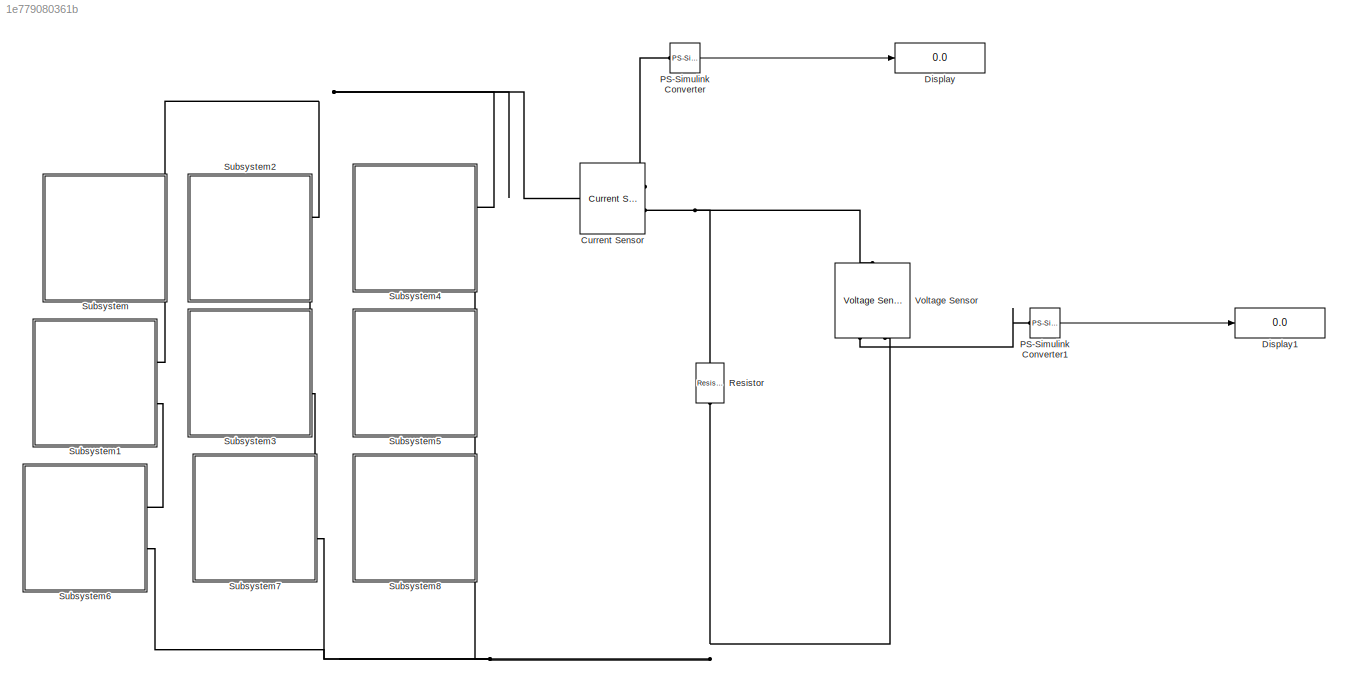
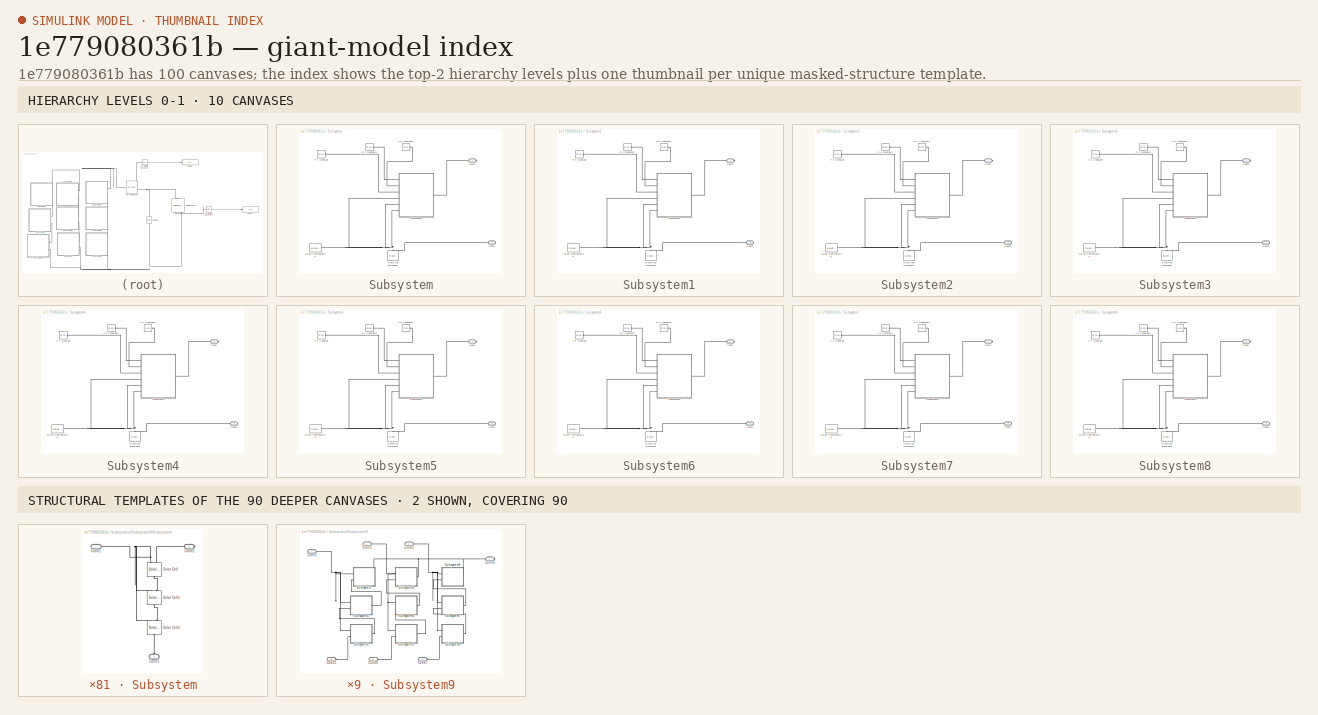
[diagram: thumbnail index - top-2 hierarchy levels (10 canvases) + 2 structural-template representatives of the remaining 90 canvases]
MODEL slx_1e779080361b
KIND model
CONFIG AbsTol = auto
CONFIG EnableMultiTasking = on
CONFIG FixedStep = auto
CONFIG MaxStep = auto
CONFIG MinStep = auto
CONFIG RelTol = 1e-3
CONFIG SampleTimeConstraint = Unconstrained
CONFIG Solver = ode45
CONFIG SolverName = ode45
CONFIG StartTime = 0.0
CONFIG StopTime = 10.0
BLOCK [Reference] Current Sensor  REF=fl_lib/Electrical/Electrical Sensors/Current Sensor
  Ports = [0, 0, 0, 0, 0, 1, 2]
  SourceBlock = fl_lib/Electrical/Electrical Sensors/Current Sensor
  SourceProductBaseCode = SS
  SourceProductName = Simscape
  SourceType = Current Sensor
BLOCK [Display] Display
  Decimation = 1
  Ports = [1]
BLOCK [Display] Display1
  Decimation = 1
  Ports = [1]
BLOCK [Reference] PS-Simulink Converter  REF=nesl_utility/PS-Simulink
Converter
  Ports = [0, 1, 0, 0, 0, 1]
  SourceBlock = nesl_utility/PS-Simulink\nConverter
  SourceProductBaseCode = SS
  SourceProductName = Simscape
  SourceType = PS-Simulink\nConverter
BLOCK [Reference] PS-Simulink Converter1  REF=nesl_utility/PS-Simulink
Converter
  Ports = [0, 1, 0, 0, 0, 1]
  SourceBlock = nesl_utility/PS-Simulink\nConverter
  SourceProductBaseCode = SS
  SourceProductName = Simscape
  SourceType = PS-Simulink\nConverter
BLOCK [Reference] Resistor  REF=fl_lib/Electrical/Electrical Elements/Resistor
  Ports = [0, 0, 0, 0, 0, 1, 1]
  SourceBlock = fl_lib/Electrical/Electrical Elements/Resistor
  SourceProductBaseCode = SS
  SourceProductName = Simscape
  SourceType = Resistor
BLOCK [SubSystem] Subsystem
  Ports = [0, 0, 0, 0, 0, 0, 2]
  RequestExecContextInheritance = off
BLOCK [PMIOPort] Subsystem/Conn1
  Side = Right
BLOCK [PMIOPort] Subsystem/Conn2
  Port = 2
  Side = Right
BLOCK [Reference] Subsystem/Electrical Reference  REF=fl_lib/Electrical/Electrical Elements/Electrical Reference
  Ports = [0, 0, 0, 0, 0, 1]
  SourceBlock = fl_lib/Electrical/Electrical Elements/Electrical Reference
  SourceProductBaseCode = SS
  SourceProductName = Simscape
  SourceType = Electrical Reference
BLOCK [Reference] Subsystem/PS Constant  REF=fl_lib/Physical Signals/Sources/PS Constant
  Ports = [0, 0, 0, 0, 0, 0, 1]
  SourceBlock = fl_lib/Physical Signals/Sources/PS Constant
  SourceProductBaseCode = SS
  SourceProductName = Simscape
  SourceType = PS Constant
BLOCK [Reference] Subsystem/PS Constant1  REF=fl_lib/Physical Signals/Sources/PS Constant
  Ports = [0, 0, 0, 0, 0, 0, 1]
  SourceBlock = fl_lib/Physical Signals/Sources/PS Constant
  SourceProductBaseCode = SS
  SourceProductName = Simscape
  SourceType = PS Constant
BLOCK [Reference] Subsystem/PS Constant2  REF=fl_lib/Physical Signals/Sources/PS Constant
  Ports = [0, 0, 0, 0, 0, 0, 1]
  SourceBlock = fl_lib/Physical Signals/Sources/PS Constant
  SourceProductBaseCode = SS
  SourceProductName = Simscape
  SourceType = PS Constant
BLOCK [Reference] Subsystem/Solver Configuration  REF=nesl_utility/Solver
Configuration
  Ports = [0, 0, 0, 0, 0, 0, 1]
  SourceBlock = nesl_utility/Solver\nConfiguration
  SourceProductBaseCode = SS
  SourceProductName = Simscape
  SourceType = Solver\nConfiguration
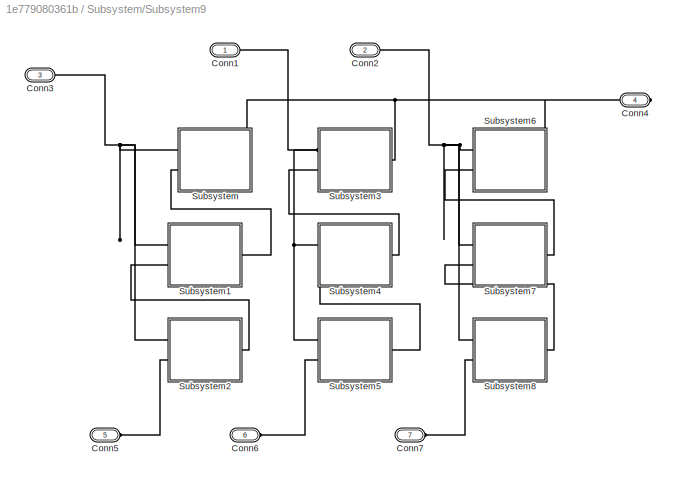
BLOCK [SubSystem] Subsystem/Subsystem9
  Ports = [0, 0, 0, 0, 0, 6, 1]
  RequestExecContextInheritance = off
BLOCK [PMIOPort] Subsystem/Subsystem9/Conn1
  Side = Left
BLOCK [PMIOPort] Subsystem/Subsystem9/Conn2
  Port = 2
  Side = Left
BLOCK [PMIOPort] Subsystem/Subsystem9/Conn3
  Port = 3
  Side = Left
BLOCK [PMIOPort] Subsystem/Subsystem9/Conn4
  Port = 4
  Side = Right
BLOCK [PMIOPort] Subsystem/Subsystem9/Conn5
  Port = 5
  Side = Left
BLOCK [PMIOPort] Subsystem/Subsystem9/Conn6
  Port = 6
  Side = Left
BLOCK [PMIOPort] Subsystem/Subsystem9/Conn7
  Port = 7
  Side = Left
BLOCK [SubSystem] Subsystem/Subsystem9/Subsystem
  Ports = [0, 0, 0, 0, 0, 2, 1]
  RequestExecContextInheritance = off
BLOCK [PMIOPort] Subsystem/Subsystem9/Subsystem/Conn1
  Side = Left
BLOCK [PMIOPort] Subsystem/Subsystem9/Subsystem/Conn2
  Port = 2
  Side = Right
BLOCK [PMIOPort] Subsystem/Subsystem9/Subsystem/Conn3
  Port = 3
  Side = Left
BLOCK [Reference] Subsystem/Subsystem9/Subsystem/Solar Cell  REF=ee_lib/Sources/Solar Cell
  Ports = [0, 0, 0, 0, 0, 2, 1]
  SourceBlock = ee_lib/Sources/Solar Cell
  SourceProductBaseCode = PS
  SourceProductName = Simscape Electrical
  SourceType = Solar Cell
BLOCK [Reference] Subsystem/Subsystem9/Subsystem/Solar Cell1  REF=ee_lib/Sources/Solar Cell
  Ports = [0, 0, 0, 0, 0, 2, 1]
  SourceBlock = ee_lib/Sources/Solar Cell
  SourceProductBaseCode = PS
  SourceProductName = Simscape Electrical
  SourceType = Solar Cell
BLOCK [Reference] Subsystem/Subsystem9/Subsystem/Solar Cell2  REF=ee_lib/Sources/Solar Cell
  Ports = [0, 0, 0, 0, 0, 2, 1]
  SourceBlock = ee_lib/Sources/Solar Cell
  SourceProductBaseCode = PS
  SourceProductName = Simscape Electrical
  SourceType = Solar Cell
BLOCK [SubSystem] Subsystem/Subsystem9/Subsystem1
  Ports = [0, 0, 0, 0, 0, 2, 1]
  RequestExecContextInheritance = off
BLOCK [PMIOPort] Subsystem/Subsystem9/Subsystem1/Conn1
  Side = Left
BLOCK [PMIOPort] Subsystem/Subsystem9/Subsystem1/Conn2
  Port = 2
  Side = Right
BLOCK [PMIOPort] Subsystem/Subsystem9/Subsystem1/Conn3
  Port = 3
  Side = Left
BLOCK [Reference] Subsystem/Subsystem9/Subsystem1/Solar Cell  REF=ee_lib/Sources/Solar Cell
  Ports = [0, 0, 0, 0, 0, 2, 1]
  SourceBlock = ee_lib/Sources/Solar Cell
  SourceProductBaseCode = PS
  SourceProductName = Simscape Electrical
  SourceType = Solar Cell
BLOCK [Reference] Subsystem/Subsystem9/Subsystem1/Solar Cell1  REF=ee_lib/Sources/Solar Cell
  Ports = [0, 0, 0, 0, 0, 2, 1]
  SourceBlock = ee_lib/Sources/Solar Cell
  SourceProductBaseCode = PS
  SourceProductName = Simscape Electrical
  SourceType = Solar Cell
BLOCK [Reference] Subsystem/Subsystem9/Subsystem1/Solar Cell2  REF=ee_lib/Sources/Solar Cell
  Ports = [0, 0, 0, 0, 0, 2, 1]
  SourceBlock = ee_lib/Sources/Solar Cell
  SourceProductBaseCode = PS
  SourceProductName = Simscape Electrical
  SourceType = Solar Cell
BLOCK [SubSystem] Subsystem/Subsystem9/Subsystem2
  Ports = [0, 0, 0, 0, 0, 2, 1]
  RequestExecContextInheritance = off
BLOCK [PMIOPort] Subsystem/Subsystem9/Subsystem2/Conn1
  Side = Left
BLOCK [PMIOPort] Subsystem/Subsystem9/Subsystem2/Conn2
  Port = 2
  Side = Right
BLOCK [PMIOPort] Subsystem/Subsystem9/Subsystem2/Conn3
  Port = 3
  Side = Left
BLOCK [Reference] Subsystem/Subsystem9/Subsystem2/Solar Cell  REF=ee_lib/Sources/Solar Cell
  Ports = [0, 0, 0, 0, 0, 2, 1]
  SourceBlock = ee_lib/Sources/Solar Cell
  SourceProductBaseCode = PS
  SourceProductName = Simscape Electrical
  SourceType = Solar Cell
BLOCK [Reference] Subsystem/Subsystem9/Subsystem2/Solar Cell1  REF=ee_lib/Sources/Solar Cell
  Ports = [0, 0, 0, 0, 0, 2, 1]
  SourceBlock = ee_lib/Sources/Solar Cell
  SourceProductBaseCode = PS
  SourceProductName = Simscape Electrical
  SourceType = Solar Cell
BLOCK [Reference] Subsystem/Subsystem9/Subsystem2/Solar Cell2  REF=ee_lib/Sources/Solar Cell
  Ports = [0, 0, 0, 0, 0, 2, 1]
  SourceBlock = ee_lib/Sources/Solar Cell
  SourceProductBaseCode = PS
  SourceProductName = Simscape Electrical
  SourceType = Solar Cell
BLOCK [SubSystem] Subsystem/Subsystem9/Subsystem3
  Ports = [0, 0, 0, 0, 0, 2, 1]
  RequestExecContextInheritance = off
BLOCK [PMIOPort] Subsystem/Subsystem9/Subsystem3/Conn1
  Side = Left
BLOCK [PMIOPort] Subsystem/Subsystem9/Subsystem3/Conn2
  Port = 2
  Side = Right
BLOCK [PMIOPort] Subsystem/Subsystem9/Subsystem3/Conn3
  Port = 3
  Side = Left
BLOCK [Reference] Subsystem/Subsystem9/Subsystem3/Solar Cell  REF=ee_lib/Sources/Solar Cell
  Ports = [0, 0, 0, 0, 0, 2, 1]
  SourceBlock = ee_lib/Sources/Solar Cell
  SourceProductBaseCode = PS
  SourceProductName = Simscape Electrical
  SourceType = Solar Cell
BLOCK [Reference] Subsystem/Subsystem9/Subsystem3/Solar Cell1  REF=ee_lib/Sources/Solar Cell
  Ports = [0, 0, 0, 0, 0, 2, 1]
  SourceBlock = ee_lib/Sources/Solar Cell
  SourceProductBaseCode = PS
  SourceProductName = Simscape Electrical
  SourceType = Solar Cell
BLOCK [Reference] Subsystem/Subsystem9/Subsystem3/Solar Cell2  REF=ee_lib/Sources/Solar Cell
  Ports = [0, 0, 0, 0, 0, 2, 1]
  SourceBlock = ee_lib/Sources/Solar Cell
  SourceProductBaseCode = PS
  SourceProductName = Simscape Electrical
  SourceType = Solar Cell
BLOCK [SubSystem] Subsystem/Subsystem9/Subsystem4
  Ports = [0, 0, 0, 0, 0, 2, 1]
  RequestExecContextInheritance = off
BLOCK [PMIOPort] Subsystem/Subsystem9/Subsystem4/Conn1
  Side = Left
BLOCK [PMIOPort] Subsystem/Subsystem9/Subsystem4/Conn2
  Port = 2
  Side = Right
BLOCK [PMIOPort] Subsystem/Subsystem9/Subsystem4/Conn3
  Port = 3
  Side = Left
BLOCK [Reference] Subsystem/Subsystem9/Subsystem4/Solar Cell  REF=ee_lib/Sources/Solar Cell
  Ports = [0, 0, 0, 0, 0, 2, 1]
  SourceBlock = ee_lib/Sources/Solar Cell
  SourceProductBaseCode = PS
  SourceProductName = Simscape Electrical
  SourceType = Solar Cell
BLOCK [Reference] Subsystem/Subsystem9/Subsystem4/Solar Cell1  REF=ee_lib/Sources/Solar Cell
  Ports = [0, 0, 0, 0, 0, 2, 1]
  SourceBlock = ee_lib/Sources/Solar Cell
  SourceProductBaseCode = PS
  SourceProductName = Simscape Electrical
  SourceType = Solar Cell
BLOCK [Reference] Subsystem/Subsystem9/Subsystem4/Solar Cell2  REF=ee_lib/Sources/Solar Cell
  Ports = [0, 0, 0, 0, 0, 2, 1]
  SourceBlock = ee_lib/Sources/Solar Cell
  SourceProductBaseCode = PS
  SourceProductName = Simscape Electrical
  SourceType = Solar Cell
BLOCK [SubSystem] Subsystem/Subsystem9/Subsystem5
  Ports = [0, 0, 0, 0, 0, 2, 1]
  RequestExecContextInheritance = off
BLOCK [PMIOPort] Subsystem/Subsystem9/Subsystem5/Conn1
  Side = Left
BLOCK [PMIOPort] Subsystem/Subsystem9/Subsystem5/Conn2
  Port = 2
  Side = Right
BLOCK [PMIOPort] Subsystem/Subsystem9/Subsystem5/Conn3
  Port = 3
  Side = Left
BLOCK [Reference] Subsystem/Subsystem9/Subsystem5/Solar Cell  REF=ee_lib/Sources/Solar Cell
  Ports = [0, 0, 0, 0, 0, 2, 1]
  SourceBlock = ee_lib/Sources/Solar Cell
  SourceProductBaseCode = PS
  SourceProductName = Simscape Electrical
  SourceType = Solar Cell
BLOCK [Reference] Subsystem/Subsystem9/Subsystem5/Solar Cell1  REF=ee_lib/Sources/Solar Cell
  Ports = [0, 0, 0, 0, 0, 2, 1]
  SourceBlock = ee_lib/Sources/Solar Cell
  SourceProductBaseCode = PS
  SourceProductName = Simscape Electrical
  SourceType = Solar Cell
BLOCK [Reference] Subsystem/Subsystem9/Subsystem5/Solar Cell2  REF=ee_lib/Sources/Solar Cell
  Ports = [0, 0, 0, 0, 0, 2, 1]
  SourceBlock = ee_lib/Sources/Solar Cell
  SourceProductBaseCode = PS
  SourceProductName = Simscape Electrical
  SourceType = Solar Cell
BLOCK [SubSystem] Subsystem/Subsystem9/Subsystem6
  Ports = [0, 0, 0, 0, 0, 2, 1]
  RequestExecContextInheritance = off
BLOCK [PMIOPort] Subsystem/Subsystem9/Subsystem6/Conn1
  Side = Left
BLOCK [PMIOPort] Subsystem/Subsystem9/Subsystem6/Conn2
  Port = 2
  Side = Right
BLOCK [PMIOPort] Subsystem/Subsystem9/Subsystem6/Conn3
  Port = 3
  Side = Left
BLOCK [Reference] Subsystem/Subsystem9/Subsystem6/Solar Cell  REF=ee_lib/Sources/Solar Cell
  Ports = [0, 0, 0, 0, 0, 2, 1]
  SourceBlock = ee_lib/Sources/Solar Cell
  SourceProductBaseCode = PS
  SourceProductName = Simscape Electrical
  SourceType = Solar Cell
BLOCK [Reference] Subsystem/Subsystem9/Subsystem6/Solar Cell1  REF=ee_lib/Sources/Solar Cell
  Ports = [0, 0, 0, 0, 0, 2, 1]
  SourceBlock = ee_lib/Sources/Solar Cell
  SourceProductBaseCode = PS
  SourceProductName = Simscape Electrical
  SourceType = Solar Cell
BLOCK [Reference] Subsystem/Subsystem9/Subsystem6/Solar Cell2  REF=ee_lib/Sources/Solar Cell
  Ports = [0, 0, 0, 0, 0, 2, 1]
  SourceBlock = ee_lib/Sources/Solar Cell
  SourceProductBaseCode = PS
  SourceProductName = Simscape Electrical
  SourceType = Solar Cell
BLOCK [SubSystem] Subsystem/Subsystem9/Subsystem7
  Ports = [0, 0, 0, 0, 0, 2, 1]
  RequestExecContextInheritance = off
BLOCK [PMIOPort] Subsystem/Subsystem9/Subsystem7/Conn1
  Side = Left
BLOCK [PMIOPort] Subsystem/Subsystem9/Subsystem7/Conn2
  Port = 2
  Side = Right
BLOCK [PMIOPort] Subsystem/Subsystem9/Subsystem7/Conn3
  Port = 3
  Side = Left
BLOCK [Reference] Subsystem/Subsystem9/Subsystem7/Solar Cell  REF=ee_lib/Sources/Solar Cell
  Ports = [0, 0, 0, 0, 0, 2, 1]
  SourceBlock = ee_lib/Sources/Solar Cell
  SourceProductBaseCode = PS
  SourceProductName = Simscape Electrical
  SourceType = Solar Cell
BLOCK [Reference] Subsystem/Subsystem9/Subsystem7/Solar Cell1  REF=ee_lib/Sources/Solar Cell
  Ports = [0, 0, 0, 0, 0, 2, 1]
  SourceBlock = ee_lib/Sources/Solar Cell
  SourceProductBaseCode = PS
  SourceProductName = Simscape Electrical
  SourceType = Solar Cell
BLOCK [Reference] Subsystem/Subsystem9/Subsystem7/Solar Cell2  REF=ee_lib/Sources/Solar Cell
  Ports = [0, 0, 0, 0, 0, 2, 1]
  SourceBlock = ee_lib/Sources/Solar Cell
  SourceProductBaseCode = PS
  SourceProductName = Simscape Electrical
  SourceType = Solar Cell
BLOCK [SubSystem] Subsystem/Subsystem9/Subsystem8
  Ports = [0, 0, 0, 0, 0, 2, 1]
  RequestExecContextInheritance = off
BLOCK [PMIOPort] Subsystem/Subsystem9/Subsystem8/Conn1
  Side = Left
BLOCK [PMIOPort] Subsystem/Subsystem9/Subsystem8/Conn2
  Port = 2
  Side = Right
BLOCK [PMIOPort] Subsystem/Subsystem9/Subsystem8/Conn3
  Port = 3
  Side = Left
BLOCK [Reference] Subsystem/Subsystem9/Subsystem8/Solar Cell  REF=ee_lib/Sources/Solar Cell
  Ports = [0, 0, 0, 0, 0, 2, 1]
  SourceBlock = ee_lib/Sources/Solar Cell
  SourceProductBaseCode = PS
  SourceProductName = Simscape Electrical
  SourceType = Solar Cell
BLOCK [Reference] Subsystem/Subsystem9/Subsystem8/Solar Cell1  REF=ee_lib/Sources/Solar Cell
  Ports = [0, 0, 0, 0, 0, 2, 1]
  SourceBlock = ee_lib/Sources/Solar Cell
  SourceProductBaseCode = PS
  SourceProductName = Simscape Electrical
  SourceType = Solar Cell
BLOCK [Reference] Subsystem/Subsystem9/Subsystem8/Solar Cell2  REF=ee_lib/Sources/Solar Cell
  Ports = [0, 0, 0, 0, 0, 2, 1]
  SourceBlock = ee_lib/Sources/Solar Cell
  SourceProductBaseCode = PS
  SourceProductName = Simscape Electrical
  SourceType = Solar Cell
BLOCK [SubSystem] Subsystem1
  Ports = [0, 0, 0, 0, 0, 0, 2]
  RequestExecContextInheritance = off
BLOCK [PMIOPort] Subsystem1/Conn1
  Side = Right
BLOCK [PMIOPort] Subsystem1/Conn2
  Port = 2
  Side = Right
BLOCK [Reference] Subsystem1/Electrical Reference  REF=fl_lib/Electrical/Electrical Elements/Electrical Reference
  Ports = [0, 0, 0, 0, 0, 1]
  SourceBlock = fl_lib/Electrical/Electrical Elements/Electrical Reference
  SourceProductBaseCode = SS
  SourceProductName = Simscape
  SourceType = Electrical Reference
BLOCK [Reference] Subsystem1/PS Constant  REF=fl_lib/Physical Signals/Sources/PS Constant
  Ports = [0, 0, 0, 0, 0, 0, 1]
  SourceBlock = fl_lib/Physical Signals/Sources/PS Constant
  SourceProductBaseCode = SS
  SourceProductName = Simscape
  SourceType = PS Constant
BLOCK [Reference] Subsystem1/PS Constant1  REF=fl_lib/Physical Signals/Sources/PS Constant
  Ports = [0, 0, 0, 0, 0, 0, 1]
  SourceBlock = fl_lib/Physical Signals/Sources/PS Constant
  SourceProductBaseCode = SS
  SourceProductName = Simscape
  SourceType = PS Constant
BLOCK [Reference] Subsystem1/PS Constant2  REF=fl_lib/Physical Signals/Sources/PS Constant
  Ports = [0, 0, 0, 0, 0, 0, 1]
  SourceBlock = fl_lib/Physical Signals/Sources/PS Constant
  SourceProductBaseCode = SS
  SourceProductName = Simscape
  SourceType = PS Constant
BLOCK [Reference] Subsystem1/Solver Configuration  REF=nesl_utility/Solver
Configuration
  Ports = [0, 0, 0, 0, 0, 0, 1]
  SourceBlock = nesl_utility/Solver\nConfiguration
  SourceProductBaseCode = SS
  SourceProductName = Simscape
  SourceType = Solver\nConfiguration
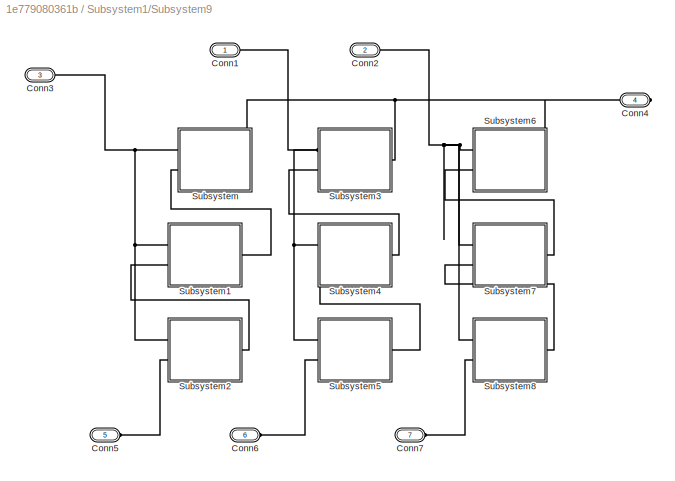
BLOCK [SubSystem] Subsystem1/Subsystem9
  Ports = [0, 0, 0, 0, 0, 6, 1]
  RequestExecContextInheritance = off
BLOCK [PMIOPort] Subsystem1/Subsystem9/Conn1
  Side = Left
BLOCK [PMIOPort] Subsystem1/Subsystem9/Conn2
  Port = 2
  Side = Left
BLOCK [PMIOPort] Subsystem1/Subsystem9/Conn3
  Port = 3
  Side = Left
BLOCK [PMIOPort] Subsystem1/Subsystem9/Conn4
  Port = 4
  Side = Right
BLOCK [PMIOPort] Subsystem1/Subsystem9/Conn5
  Port = 5
  Side = Left
BLOCK [PMIOPort] Subsystem1/Subsystem9/Conn6
  Port = 6
  Side = Left
BLOCK [PMIOPort] Subsystem1/Subsystem9/Conn7
  Port = 7
  Side = Left
BLOCK [SubSystem] Subsystem1/Subsystem9/Subsystem
  Ports = [0, 0, 0, 0, 0, 2, 1]
  RequestExecContextInheritance = off
BLOCK [PMIOPort] Subsystem1/Subsystem9/Subsystem/Conn1
  Side = Left
BLOCK [PMIOPort] Subsystem1/Subsystem9/Subsystem/Conn2
  Port = 2
  Side = Right
BLOCK [PMIOPort] Subsystem1/Subsystem9/Subsystem/Conn3
  Port = 3
  Side = Left
BLOCK [Reference] Subsystem1/Subsystem9/Subsystem/Solar Cell  REF=ee_lib/Sources/Solar Cell
  Ports = [0, 0, 0, 0, 0, 2, 1]
  SourceBlock = ee_lib/Sources/Solar Cell
  SourceProductBaseCode = PS
  SourceProductName = Simscape Electrical
  SourceType = Solar Cell
BLOCK [Reference] Subsystem1/Subsystem9/Subsystem/Solar Cell1  REF=ee_lib/Sources/Solar Cell
  Ports = [0, 0, 0, 0, 0, 2, 1]
  SourceBlock = ee_lib/Sources/Solar Cell
  SourceProductBaseCode = PS
  SourceProductName = Simscape Electrical
  SourceType = Solar Cell
BLOCK [Reference] Subsystem1/Subsystem9/Subsystem/Solar Cell2  REF=ee_lib/Sources/Solar Cell
  Ports = [0, 0, 0, 0, 0, 2, 1]
  SourceBlock = ee_lib/Sources/Solar Cell
  SourceProductBaseCode = PS
  SourceProductName = Simscape Electrical
  SourceType = Solar Cell
BLOCK [SubSystem] Subsystem1/Subsystem9/Subsystem1
  Ports = [0, 0, 0, 0, 0, 2, 1]
  RequestExecContextInheritance = off
BLOCK [PMIOPort] Subsystem1/Subsystem9/Subsystem1/Conn1
  Side = Left
BLOCK [PMIOPort] Subsystem1/Subsystem9/Subsystem1/Conn2
  Port = 2
  Side = Right
BLOCK [PMIOPort] Subsystem1/Subsystem9/Subsystem1/Conn3
  Port = 3
  Side = Left
BLOCK [Reference] Subsystem1/Subsystem9/Subsystem1/Solar Cell  REF=ee_lib/Sources/Solar Cell
  Ports = [0, 0, 0, 0, 0, 2, 1]
  SourceBlock = ee_lib/Sources/Solar Cell
  SourceProductBaseCode = PS
  SourceProductName = Simscape Electrical
  SourceType = Solar Cell
BLOCK [Reference] Subsystem1/Subsystem9/Subsystem1/Solar Cell1  REF=ee_lib/Sources/Solar Cell
  Ports = [0, 0, 0, 0, 0, 2, 1]
  SourceBlock = ee_lib/Sources/Solar Cell
  SourceProductBaseCode = PS
  SourceProductName = Simscape Electrical
  SourceType = Solar Cell
BLOCK [Reference] Subsystem1/Subsystem9/Subsystem1/Solar Cell2  REF=ee_lib/Sources/Solar Cell
  Ports = [0, 0, 0, 0, 0, 2, 1]
  SourceBlock = ee_lib/Sources/Solar Cell
  SourceProductBaseCode = PS
  SourceProductName = Simscape Electrical
  SourceType = Solar Cell
BLOCK [SubSystem] Subsystem1/Subsystem9/Subsystem2
  Ports = [0, 0, 0, 0, 0, 2, 1]
  RequestExecContextInheritance = off
BLOCK [PMIOPort] Subsystem1/Subsystem9/Subsystem2/Conn1
  Side = Left
BLOCK [PMIOPort] Subsystem1/Subsystem9/Subsystem2/Conn2
  Port = 2
  Side = Right
BLOCK [PMIOPort] Subsystem1/Subsystem9/Subsystem2/Conn3
  Port = 3
  Side = Left
BLOCK [Reference] Subsystem1/Subsystem9/Subsystem2/Solar Cell  REF=ee_lib/Sources/Solar Cell
  Ports = [0, 0, 0, 0, 0, 2, 1]
  SourceBlock = ee_lib/Sources/Solar Cell
  SourceProductBaseCode = PS
  SourceProductName = Simscape Electrical
  SourceType = Solar Cell
BLOCK [Reference] Subsystem1/Subsystem9/Subsystem2/Solar Cell1  REF=ee_lib/Sources/Solar Cell
  Ports = [0, 0, 0, 0, 0, 2, 1]
  SourceBlock = ee_lib/Sources/Solar Cell
  SourceProductBaseCode = PS
  SourceProductName = Simscape Electrical
  SourceType = Solar Cell
BLOCK [Reference] Subsystem1/Subsystem9/Subsystem2/Solar Cell2  REF=ee_lib/Sources/Solar Cell
  Ports = [0, 0, 0, 0, 0, 2, 1]
  SourceBlock = ee_lib/Sources/Solar Cell
  SourceProductBaseCode = PS
  SourceProductName = Simscape Electrical
  SourceType = Solar Cell
BLOCK [SubSystem] Subsystem1/Subsystem9/Subsystem3
  Ports = [0, 0, 0, 0, 0, 2, 1]
  RequestExecContextInheritance = off
BLOCK [PMIOPort] Subsystem1/Subsystem9/Subsystem3/Conn1
  Side = Left
BLOCK [PMIOPort] Subsystem1/Subsystem9/Subsystem3/Conn2
  Port = 2
  Side = Right
BLOCK [PMIOPort] Subsystem1/Subsystem9/Subsystem3/Conn3
  Port = 3
  Side = Left
BLOCK [Reference] Subsystem1/Subsystem9/Subsystem3/Solar Cell  REF=ee_lib/Sources/Solar Cell
  Ports = [0, 0, 0, 0, 0, 2, 1]
  SourceBlock = ee_lib/Sources/Solar Cell
  SourceProductBaseCode = PS
  SourceProductName = Simscape Electrical
  SourceType = Solar Cell
BLOCK [Reference] Subsystem1/Subsystem9/Subsystem3/Solar Cell1  REF=ee_lib/Sources/Solar Cell
  Ports = [0, 0, 0, 0, 0, 2, 1]
  SourceBlock = ee_lib/Sources/Solar Cell
  SourceProductBaseCode = PS
  SourceProductName = Simscape Electrical
  SourceType = Solar Cell
BLOCK [Reference] Subsystem1/Subsystem9/Subsystem3/Solar Cell2  REF=ee_lib/Sources/Solar Cell
  Ports = [0, 0, 0, 0, 0, 2, 1]
  SourceBlock = ee_lib/Sources/Solar Cell
  SourceProductBaseCode = PS
  SourceProductName = Simscape Electrical
  SourceType = Solar Cell
BLOCK [SubSystem] Subsystem1/Subsystem9/Subsystem4
  Ports = [0, 0, 0, 0, 0, 2, 1]
  RequestExecContextInheritance = off
BLOCK [PMIOPort] Subsystem1/Subsystem9/Subsystem4/Conn1
  Side = Left
BLOCK [PMIOPort] Subsystem1/Subsystem9/Subsystem4/Conn2
  Port = 2
  Side = Right
BLOCK [PMIOPort] Subsystem1/Subsystem9/Subsystem4/Conn3
  Port = 3
  Side = Left
BLOCK [Reference] Subsystem1/Subsystem9/Subsystem4/Solar Cell  REF=ee_lib/Sources/Solar Cell
  Ports = [0, 0, 0, 0, 0, 2, 1]
  SourceBlock = ee_lib/Sources/Solar Cell
  SourceProductBaseCode = PS
  SourceProductName = Simscape Electrical
  SourceType = Solar Cell
BLOCK [Reference] Subsystem1/Subsystem9/Subsystem4/Solar Cell1  REF=ee_lib/Sources/Solar Cell
  Ports = [0, 0, 0, 0, 0, 2, 1]
  SourceBlock = ee_lib/Sources/Solar Cell
  SourceProductBaseCode = PS
  SourceProductName = Simscape Electrical
  SourceType = Solar Cell
BLOCK [Reference] Subsystem1/Subsystem9/Subsystem4/Solar Cell2  REF=ee_lib/Sources/Solar Cell
  Ports = [0, 0, 0, 0, 0, 2, 1]
  SourceBlock = ee_lib/Sources/Solar Cell
  SourceProductBaseCode = PS
  SourceProductName = Simscape Electrical
  SourceType = Solar Cell
BLOCK [SubSystem] Subsystem1/Subsystem9/Subsystem5
  Ports = [0, 0, 0, 0, 0, 2, 1]
  RequestExecContextInheritance = off
BLOCK [PMIOPort] Subsystem1/Subsystem9/Subsystem5/Conn1
  Side = Left
BLOCK [PMIOPort] Subsystem1/Subsystem9/Subsystem5/Conn2
  Port = 2
  Side = Right
BLOCK [PMIOPort] Subsystem1/Subsystem9/Subsystem5/Conn3
  Port = 3
  Side = Left
BLOCK [Reference] Subsystem1/Subsystem9/Subsystem5/Solar Cell  REF=ee_lib/Sources/Solar Cell
  Ports = [0, 0, 0, 0, 0, 2, 1]
  SourceBlock = ee_lib/Sources/Solar Cell
  SourceProductBaseCode = PS
  SourceProductName = Simscape Electrical
  SourceType = Solar Cell
BLOCK [Reference] Subsystem1/Subsystem9/Subsystem5/Solar Cell1  REF=ee_lib/Sources/Solar Cell
  Ports = [0, 0, 0, 0, 0, 2, 1]
  SourceBlock = ee_lib/Sources/Solar Cell
  SourceProductBaseCode = PS
  SourceProductName = Simscape Electrical
  SourceType = Solar Cell
BLOCK [Reference] Subsystem1/Subsystem9/Subsystem5/Solar Cell2  REF=ee_lib/Sources/Solar Cell
  Ports = [0, 0, 0, 0, 0, 2, 1]
  SourceBlock = ee_lib/Sources/Solar Cell
  SourceProductBaseCode = PS
  SourceProductName = Simscape Electrical
  SourceType = Solar Cell
BLOCK [SubSystem] Subsystem1/Subsystem9/Subsystem6
  Ports = [0, 0, 0, 0, 0, 2, 1]
  RequestExecContextInheritance = off
BLOCK [PMIOPort] Subsystem1/Subsystem9/Subsystem6/Conn1
  Side = Left
BLOCK [PMIOPort] Subsystem1/Subsystem9/Subsystem6/Conn2
  Port = 2
  Side = Right
BLOCK [PMIOPort] Subsystem1/Subsystem9/Subsystem6/Conn3
  Port = 3
  Side = Left
BLOCK [Reference] Subsystem1/Subsystem9/Subsystem6/Solar Cell  REF=ee_lib/Sources/Solar Cell
  Ports = [0, 0, 0, 0, 0, 2, 1]
  SourceBlock = ee_lib/Sources/Solar Cell
  SourceProductBaseCode = PS
  SourceProductName = Simscape Electrical
  SourceType = Solar Cell
BLOCK [Reference] Subsystem1/Subsystem9/Subsystem6/Solar Cell1  REF=ee_lib/Sources/Solar Cell
  Ports = [0, 0, 0, 0, 0, 2, 1]
  SourceBlock = ee_lib/Sources/Solar Cell
  SourceProductBaseCode = PS
  SourceProductName = Simscape Electrical
  SourceType = Solar Cell
BLOCK [Reference] Subsystem1/Subsystem9/Subsystem6/Solar Cell2  REF=ee_lib/Sources/Solar Cell
  Ports = [0, 0, 0, 0, 0, 2, 1]
  SourceBlock = ee_lib/Sources/Solar Cell
  SourceProductBaseCode = PS
  SourceProductName = Simscape Electrical
  SourceType = Solar Cell
BLOCK [SubSystem] Subsystem1/Subsystem9/Subsystem7
  Ports = [0, 0, 0, 0, 0, 2, 1]
  RequestExecContextInheritance = off
BLOCK [PMIOPort] Subsystem1/Subsystem9/Subsystem7/Conn1
  Side = Left
BLOCK [PMIOPort] Subsystem1/Subsystem9/Subsystem7/Conn2
  Port = 2
  Side = Right
BLOCK [PMIOPort] Subsystem1/Subsystem9/Subsystem7/Conn3
  Port = 3
  Side = Left
BLOCK [Reference] Subsystem1/Subsystem9/Subsystem7/Solar Cell  REF=ee_lib/Sources/Solar Cell
  Ports = [0, 0, 0, 0, 0, 2, 1]
  SourceBlock = ee_lib/Sources/Solar Cell
  SourceProductBaseCode = PS
  SourceProductName = Simscape Electrical
  SourceType = Solar Cell
BLOCK [Reference] Subsystem1/Subsystem9/Subsystem7/Solar Cell1  REF=ee_lib/Sources/Solar Cell
  Ports = [0, 0, 0, 0, 0, 2, 1]
  SourceBlock = ee_lib/Sources/Solar Cell
  SourceProductBaseCode = PS
  SourceProductName = Simscape Electrical
  SourceType = Solar Cell
BLOCK [Reference] Subsystem1/Subsystem9/Subsystem7/Solar Cell2  REF=ee_lib/Sources/Solar Cell
  Ports = [0, 0, 0, 0, 0, 2, 1]
  SourceBlock = ee_lib/Sources/Solar Cell
  SourceProductBaseCode = PS
  SourceProductName = Simscape Electrical
  SourceType = Solar Cell
BLOCK [SubSystem] Subsystem1/Subsystem9/Subsystem8
  Ports = [0, 0, 0, 0, 0, 2, 1]
  RequestExecContextInheritance = off
BLOCK [PMIOPort] Subsystem1/Subsystem9/Subsystem8/Conn1
  Side = Left
BLOCK [PMIOPort] Subsystem1/Subsystem9/Subsystem8/Conn2
  Port = 2
  Side = Right
BLOCK [PMIOPort] Subsystem1/Subsystem9/Subsystem8/Conn3
  Port = 3
  Side = Left
BLOCK [Reference] Subsystem1/Subsystem9/Subsystem8/Solar Cell  REF=ee_lib/Sources/Solar Cell
  Ports = [0, 0, 0, 0, 0, 2, 1]
  SourceBlock = ee_lib/Sources/Solar Cell
  SourceProductBaseCode = PS
  SourceProductName = Simscape Electrical
  SourceType = Solar Cell
BLOCK [Reference] Subsystem1/Subsystem9/Subsystem8/Solar Cell1  REF=ee_lib/Sources/Solar Cell
  Ports = [0, 0, 0, 0, 0, 2, 1]
  SourceBlock = ee_lib/Sources/Solar Cell
  SourceProductBaseCode = PS
  SourceProductName = Simscape Electrical
  SourceType = Solar Cell
BLOCK [Reference] Subsystem1/Subsystem9/Subsystem8/Solar Cell2  REF=ee_lib/Sources/Solar Cell
  Ports = [0, 0, 0, 0, 0, 2, 1]
  SourceBlock = ee_lib/Sources/Solar Cell
  SourceProductBaseCode = PS
  SourceProductName = Simscape Electrical
  SourceType = Solar Cell
BLOCK [SubSystem] Subsystem2
  Ports = [0, 0, 0, 0, 0, 0, 2]
  RequestExecContextInheritance = off
BLOCK [PMIOPort] Subsystem2/Conn1
  Side = Right
BLOCK [PMIOPort] Subsystem2/Conn2
  Port = 2
  Side = Right
BLOCK [Reference] Subsystem2/Electrical Reference  REF=fl_lib/Electrical/Electrical Elements/Electrical Reference
  Ports = [0, 0, 0, 0, 0, 1]
  SourceBlock = fl_lib/Electrical/Electrical Elements/Electrical Reference
  SourceProductBaseCode = SS
  SourceProductName = Simscape
  SourceType = Electrical Reference
BLOCK [Reference] Subsystem2/PS Constant  REF=fl_lib/Physical Signals/Sources/PS Constant
  Ports = [0, 0, 0, 0, 0, 0, 1]
  SourceBlock = fl_lib/Physical Signals/Sources/PS Constant
  SourceProductBaseCode = SS
  SourceProductName = Simscape
  SourceType = PS Constant
BLOCK [Reference] Subsystem2/PS Constant1  REF=fl_lib/Physical Signals/Sources/PS Constant
  Ports = [0, 0, 0, 0, 0, 0, 1]
  SourceBlock = fl_lib/Physical Signals/Sources/PS Constant
  SourceProductBaseCode = SS
  SourceProductName = Simscape
  SourceType = PS Constant
BLOCK [Reference] Subsystem2/PS Constant2  REF=fl_lib/Physical Signals/Sources/PS Constant
  Ports = [0, 0, 0, 0, 0, 0, 1]
  SourceBlock = fl_lib/Physical Signals/Sources/PS Constant
  SourceProductBaseCode = SS
  SourceProductName = Simscape
  SourceType = PS Constant
BLOCK [Reference] Subsystem2/Solver Configuration  REF=nesl_utility/Solver
Configuration
  Ports = [0, 0, 0, 0, 0, 0, 1]
  SourceBlock = nesl_utility/Solver\nConfiguration
  SourceProductBaseCode = SS
  SourceProductName = Simscape
  SourceType = Solver\nConfiguration
BLOCK [SubSystem] Subsystem2/Subsystem9
  Ports = [0, 0, 0, 0, 0, 6, 1]
  RequestExecContextInheritance = off
BLOCK [PMIOPort] Subsystem2/Subsystem9/Conn1
  Side = Left
BLOCK [PMIOPort] Subsystem2/Subsystem9/Conn2
  Port = 2
  Side = Left
BLOCK [PMIOPort] Subsystem2/Subsystem9/Conn3
  Port = 3
  Side = Left
BLOCK [PMIOPort] Subsystem2/Subsystem9/Conn4
  Port = 4
  Side = Right
BLOCK [PMIOPort] Subsystem2/Subsystem9/Conn5
  Port = 5
  Side = Left
BLOCK [PMIOPort] Subsystem2/Subsystem9/Conn6
  Port = 6
  Side = Left
BLOCK [PMIOPort] Subsystem2/Subsystem9/Conn7
  Port = 7
  Side = Left
BLOCK [SubSystem] Subsystem2/Subsystem9/Subsystem
  Ports = [0, 0, 0, 0, 0, 2, 1]
  RequestExecContextInheritance = off
BLOCK [PMIOPort] Subsystem2/Subsystem9/Subsystem/Conn1
  Side = Left
BLOCK [PMIOPort] Subsystem2/Subsystem9/Subsystem/Conn2
  Port = 2
  Side = Right
BLOCK [PMIOPort] Subsystem2/Subsystem9/Subsystem/Conn3
  Port = 3
  Side = Left
BLOCK [Reference] Subsystem2/Subsystem9/Subsystem/Solar Cell  REF=ee_lib/Sources/Solar Cell
  Ports = [0, 0, 0, 0, 0, 2, 1]
  SourceBlock = ee_lib/Sources/Solar Cell
  SourceProductBaseCode = PS
  SourceProductName = Simscape Electrical
  SourceType = Solar Cell
BLOCK [Reference] Subsystem2/Subsystem9/Subsystem/Solar Cell1  REF=ee_lib/Sources/Solar Cell
  Ports = [0, 0, 0, 0, 0, 2, 1]
  SourceBlock = ee_lib/Sources/Solar Cell
  SourceProductBaseCode = PS
  SourceProductName = Simscape Electrical
  SourceType = Solar Cell
BLOCK [Reference] Subsystem2/Subsystem9/Subsystem/Solar Cell2  REF=ee_lib/Sources/Solar Cell
  Ports = [0, 0, 0, 0, 0, 2, 1]
  SourceBlock = ee_lib/Sources/Solar Cell
  SourceProductBaseCode = PS
  SourceProductName = Simscape Electrical
  SourceType = Solar Cell
BLOCK [SubSystem] Subsystem2/Subsystem9/Subsystem1
  Ports = [0, 0, 0, 0, 0, 2, 1]
  RequestExecContextInheritance = off
BLOCK [PMIOPort] Subsystem2/Subsystem9/Subsystem1/Conn1
  Side = Left
BLOCK [PMIOPort] Subsystem2/Subsystem9/Subsystem1/Conn2
  Port = 2
  Side = Right
BLOCK [PMIOPort] Subsystem2/Subsystem9/Subsystem1/Conn3
  Port = 3
  Side = Left
BLOCK [Reference] Subsystem2/Subsystem9/Subsystem1/Solar Cell  REF=ee_lib/Sources/Solar Cell
  Ports = [0, 0, 0, 0, 0, 2, 1]
  SourceBlock = ee_lib/Sources/Solar Cell
  SourceProductBaseCode = PS
  SourceProductName = Simscape Electrical
  SourceType = Solar Cell
BLOCK [Reference] Subsystem2/Subsystem9/Subsystem1/Solar Cell1  REF=ee_lib/Sources/Solar Cell
  Ports = [0, 0, 0, 0, 0, 2, 1]
  SourceBlock = ee_lib/Sources/Solar Cell
  SourceProductBaseCode = PS
  SourceProductName = Simscape Electrical
  SourceType = Solar Cell
BLOCK [Reference] Subsystem2/Subsystem9/Subsystem1/Solar Cell2  REF=ee_lib/Sources/Solar Cell
  Ports = [0, 0, 0, 0, 0, 2, 1]
  SourceBlock = ee_lib/Sources/Solar Cell
  SourceProductBaseCode = PS
  SourceProductName = Simscape Electrical
  SourceType = Solar Cell
BLOCK [SubSystem] Subsystem2/Subsystem9/Subsystem2
  Ports = [0, 0, 0, 0, 0, 2, 1]
  RequestExecContextInheritance = off
BLOCK [PMIOPort] Subsystem2/Subsystem9/Subsystem2/Conn1
  Side = Left
BLOCK [PMIOPort] Subsystem2/Subsystem9/Subsystem2/Conn2
  Port = 2
  Side = Right
BLOCK [PMIOPort] Subsystem2/Subsystem9/Subsystem2/Conn3
  Port = 3
  Side = Left
BLOCK [Reference] Subsystem2/Subsystem9/Subsystem2/Solar Cell  REF=ee_lib/Sources/Solar Cell
  Ports = [0, 0, 0, 0, 0, 2, 1]
  SourceBlock = ee_lib/Sources/Solar Cell
  SourceProductBaseCode = PS
  SourceProductName = Simscape Electrical
  SourceType = Solar Cell
BLOCK [Reference] Subsystem2/Subsystem9/Subsystem2/Solar Cell1  REF=ee_lib/Sources/Solar Cell
  Ports = [0, 0, 0, 0, 0, 2, 1]
  SourceBlock = ee_lib/Sources/Solar Cell
  SourceProductBaseCode = PS
  SourceProductName = Simscape Electrical
  SourceType = Solar Cell
BLOCK [Reference] Subsystem2/Subsystem9/Subsystem2/Solar Cell2  REF=ee_lib/Sources/Solar Cell
  Ports = [0, 0, 0, 0, 0, 2, 1]
  SourceBlock = ee_lib/Sources/Solar Cell
  SourceProductBaseCode = PS
  SourceProductName = Simscape Electrical
  SourceType = Solar Cell
BLOCK [SubSystem] Subsystem2/Subsystem9/Subsystem3
  Ports = [0, 0, 0, 0, 0, 2, 1]
  RequestExecContextInheritance = off
BLOCK [PMIOPort] Subsystem2/Subsystem9/Subsystem3/Conn1
  Side = Left
BLOCK [PMIOPort] Subsystem2/Subsystem9/Subsystem3/Conn2
  Port = 2
  Side = Right
BLOCK [PMIOPort] Subsystem2/Subsystem9/Subsystem3/Conn3
  Port = 3
  Side = Left
BLOCK [Reference] Subsystem2/Subsystem9/Subsystem3/Solar Cell  REF=ee_lib/Sources/Solar Cell
  Ports = [0, 0, 0, 0, 0, 2, 1]
  SourceBlock = ee_lib/Sources/Solar Cell
  SourceProductBaseCode = PS
  SourceProductName = Simscape Electrical
  SourceType = Solar Cell
BLOCK [Reference] Subsystem2/Subsystem9/Subsystem3/Solar Cell1  REF=ee_lib/Sources/Solar Cell
  Ports = [0, 0, 0, 0, 0, 2, 1]
  SourceBlock = ee_lib/Sources/Solar Cell
  SourceProductBaseCode = PS
  SourceProductName = Simscape Electrical
  SourceType = Solar Cell
BLOCK [Reference] Subsystem2/Subsystem9/Subsystem3/Solar Cell2  REF=ee_lib/Sources/Solar Cell
  Ports = [0, 0, 0, 0, 0, 2, 1]
  SourceBlock = ee_lib/Sources/Solar Cell
  SourceProductBaseCode = PS
  SourceProductName = Simscape Electrical
  SourceType = Solar Cell
BLOCK [SubSystem] Subsystem2/Subsystem9/Subsystem4
  Ports = [0, 0, 0, 0, 0, 2, 1]
  RequestExecContextInheritance = off
BLOCK [PMIOPort] Subsystem2/Subsystem9/Subsystem4/Conn1
  Side = Left
BLOCK [PMIOPort] Subsystem2/Subsystem9/Subsystem4/Conn2
  Port = 2
  Side = Right
BLOCK [PMIOPort] Subsystem2/Subsystem9/Subsystem4/Conn3
  Port = 3
  Side = Left
BLOCK [Reference] Subsystem2/Subsystem9/Subsystem4/Solar Cell  REF=ee_lib/Sources/Solar Cell
  Ports = [0, 0, 0, 0, 0, 2, 1]
  SourceBlock = ee_lib/Sources/Solar Cell
  SourceProductBaseCode = PS
  SourceProductName = Simscape Electrical
  SourceType = Solar Cell
BLOCK [Reference] Subsystem2/Subsystem9/Subsystem4/Solar Cell1  REF=ee_lib/Sources/Solar Cell
  Ports = [0, 0, 0, 0, 0, 2, 1]
  SourceBlock = ee_lib/Sources/Solar Cell
  SourceProductBaseCode = PS
  SourceProductName = Simscape Electrical
  SourceType = Solar Cell
BLOCK [Reference] Subsystem2/Subsystem9/Subsystem4/Solar Cell2  REF=ee_lib/Sources/Solar Cell
  Ports = [0, 0, 0, 0, 0, 2, 1]
  SourceBlock = ee_lib/Sources/Solar Cell
  SourceProductBaseCode = PS
  SourceProductName = Simscape Electrical
  SourceType = Solar Cell
BLOCK [SubSystem] Subsystem2/Subsystem9/Subsystem5
  Ports = [0, 0, 0, 0, 0, 2, 1]
  RequestExecContextInheritance = off
BLOCK [PMIOPort] Subsystem2/Subsystem9/Subsystem5/Conn1
  Side = Left
BLOCK [PMIOPort] Subsystem2/Subsystem9/Subsystem5/Conn2
  Port = 2
  Side = Right
BLOCK [PMIOPort] Subsystem2/Subsystem9/Subsystem5/Conn3
  Port = 3
  Side = Left
BLOCK [Reference] Subsystem2/Subsystem9/Subsystem5/Solar Cell  REF=ee_lib/Sources/Solar Cell
  Ports = [0, 0, 0, 0, 0, 2, 1]
  SourceBlock = ee_lib/Sources/Solar Cell
  SourceProductBaseCode = PS
  SourceProductName = Simscape Electrical
  SourceType = Solar Cell
BLOCK [Reference] Subsystem2/Subsystem9/Subsystem5/Solar Cell1  REF=ee_lib/Sources/Solar Cell
  Ports = [0, 0, 0, 0, 0, 2, 1]
  SourceBlock = ee_lib/Sources/Solar Cell
  SourceProductBaseCode = PS
  SourceProductName = Simscape Electrical
  SourceType = Solar Cell
BLOCK [Reference] Subsystem2/Subsystem9/Subsystem5/Solar Cell2  REF=ee_lib/Sources/Solar Cell
  Ports = [0, 0, 0, 0, 0, 2, 1]
  SourceBlock = ee_lib/Sources/Solar Cell
  SourceProductBaseCode = PS
  SourceProductName = Simscape Electrical
  SourceType = Solar Cell
BLOCK [SubSystem] Subsystem2/Subsystem9/Subsystem6
  Ports = [0, 0, 0, 0, 0, 2, 1]
  RequestExecContextInheritance = off
BLOCK [PMIOPort] Subsystem2/Subsystem9/Subsystem6/Conn1
  Side = Left
BLOCK [PMIOPort] Subsystem2/Subsystem9/Subsystem6/Conn2
  Port = 2
  Side = Right
BLOCK [PMIOPort] Subsystem2/Subsystem9/Subsystem6/Conn3
  Port = 3
  Side = Left
BLOCK [Reference] Subsystem2/Subsystem9/Subsystem6/Solar Cell  REF=ee_lib/Sources/Solar Cell
  Ports = [0, 0, 0, 0, 0, 2, 1]
  SourceBlock = ee_lib/Sources/Solar Cell
  SourceProductBaseCode = PS
  SourceProductName = Simscape Electrical
  SourceType = Solar Cell
BLOCK [Reference] Subsystem2/Subsystem9/Subsystem6/Solar Cell1  REF=ee_lib/Sources/Solar Cell
  Ports = [0, 0, 0, 0, 0, 2, 1]
  SourceBlock = ee_lib/Sources/Solar Cell
  SourceProductBaseCode = PS
  SourceProductName = Simscape Electrical
  SourceType = Solar Cell
BLOCK [Reference] Subsystem2/Subsystem9/Subsystem6/Solar Cell2  REF=ee_lib/Sources/Solar Cell
  Ports = [0, 0, 0, 0, 0, 2, 1]
  SourceBlock = ee_lib/Sources/Solar Cell
  SourceProductBaseCode = PS
  SourceProductName = Simscape Electrical
  SourceType = Solar Cell
BLOCK [SubSystem] Subsystem2/Subsystem9/Subsystem7
  Ports = [0, 0, 0, 0, 0, 2, 1]
  RequestExecContextInheritance = off
BLOCK [PMIOPort] Subsystem2/Subsystem9/Subsystem7/Conn1
  Side = Left
BLOCK [PMIOPort] Subsystem2/Subsystem9/Subsystem7/Conn2
  Port = 2
  Side = Right
BLOCK [PMIOPort] Subsystem2/Subsystem9/Subsystem7/Conn3
  Port = 3
  Side = Left
BLOCK [Reference] Subsystem2/Subsystem9/Subsystem7/Solar Cell  REF=ee_lib/Sources/Solar Cell
  Ports = [0, 0, 0, 0, 0, 2, 1]
  SourceBlock = ee_lib/Sources/Solar Cell
  SourceProductBaseCode = PS
  SourceProductName = Simscape Electrical
  SourceType = Solar Cell
BLOCK [Reference] Subsystem2/Subsystem9/Subsystem7/Solar Cell1  REF=ee_lib/Sources/Solar Cell
  Ports = [0, 0, 0, 0, 0, 2, 1]
  SourceBlock = ee_lib/Sources/Solar Cell
  SourceProductBaseCode = PS
  SourceProductName = Simscape Electrical
  SourceType = Solar Cell
BLOCK [Reference] Subsystem2/Subsystem9/Subsystem7/Solar Cell2  REF=ee_lib/Sources/Solar Cell
  Ports = [0, 0, 0, 0, 0, 2, 1]
  SourceBlock = ee_lib/Sources/Solar Cell
  SourceProductBaseCode = PS
  SourceProductName = Simscape Electrical
  SourceType = Solar Cell
BLOCK [SubSystem] Subsystem2/Subsystem9/Subsystem8
  Ports = [0, 0, 0, 0, 0, 2, 1]
  RequestExecContextInheritance = off
BLOCK [PMIOPort] Subsystem2/Subsystem9/Subsystem8/Conn1
  Side = Left
BLOCK [PMIOPort] Subsystem2/Subsystem9/Subsystem8/Conn2
  Port = 2
  Side = Right
BLOCK [PMIOPort] Subsystem2/Subsystem9/Subsystem8/Conn3
  Port = 3
  Side = Left
BLOCK [Reference] Subsystem2/Subsystem9/Subsystem8/Solar Cell  REF=ee_lib/Sources/Solar Cell
  Ports = [0, 0, 0, 0, 0, 2, 1]
  SourceBlock = ee_lib/Sources/Solar Cell
  SourceProductBaseCode = PS
  SourceProductName = Simscape Electrical
  SourceType = Solar Cell
BLOCK [Reference] Subsystem2/Subsystem9/Subsystem8/Solar Cell1  REF=ee_lib/Sources/Solar Cell
  Ports = [0, 0, 0, 0, 0, 2, 1]
  SourceBlock = ee_lib/Sources/Solar Cell
  SourceProductBaseCode = PS
  SourceProductName = Simscape Electrical
  SourceType = Solar Cell
BLOCK [Reference] Subsystem2/Subsystem9/Subsystem8/Solar Cell2  REF=ee_lib/Sources/Solar Cell
  Ports = [0, 0, 0, 0, 0, 2, 1]
  SourceBlock = ee_lib/Sources/Solar Cell
  SourceProductBaseCode = PS
  SourceProductName = Simscape Electrical
  SourceType = Solar Cell
BLOCK [SubSystem] Subsystem3
  Ports = [0, 0, 0, 0, 0, 0, 2]
  RequestExecContextInheritance = off
BLOCK [PMIOPort] Subsystem3/Conn1
  Side = Right
BLOCK [PMIOPort] Subsystem3/Conn2
  Port = 2
  Side = Right
BLOCK [Reference] Subsystem3/Electrical Reference  REF=fl_lib/Electrical/Electrical Elements/Electrical Reference
  Ports = [0, 0, 0, 0, 0, 1]
  SourceBlock = fl_lib/Electrical/Electrical Elements/Electrical Reference
  SourceProductBaseCode = SS
  SourceProductName = Simscape
  SourceType = Electrical Reference
BLOCK [Reference] Subsystem3/PS Constant  REF=fl_lib/Physical Signals/Sources/PS Constant
  Ports = [0, 0, 0, 0, 0, 0, 1]
  SourceBlock = fl_lib/Physical Signals/Sources/PS Constant
  SourceProductBaseCode = SS
  SourceProductName = Simscape
  SourceType = PS Constant
BLOCK [Reference] Subsystem3/PS Constant1  REF=fl_lib/Physical Signals/Sources/PS Constant
  Ports = [0, 0, 0, 0, 0, 0, 1]
  SourceBlock = fl_lib/Physical Signals/Sources/PS Constant
  SourceProductBaseCode = SS
  SourceProductName = Simscape
  SourceType = PS Constant
BLOCK [Reference] Subsystem3/PS Constant2  REF=fl_lib/Physical Signals/Sources/PS Constant
  Ports = [0, 0, 0, 0, 0, 0, 1]
  SourceBlock = fl_lib/Physical Signals/Sources/PS Constant
  SourceProductBaseCode = SS
  SourceProductName = Simscape
  SourceType = PS Constant
BLOCK [Reference] Subsystem3/Solver Configuration  REF=nesl_utility/Solver
Configuration
  Ports = [0, 0, 0, 0, 0, 0, 1]
  SourceBlock = nesl_utility/Solver\nConfiguration
  SourceProductBaseCode = SS
  SourceProductName = Simscape
  SourceType = Solver\nConfiguration
BLOCK [SubSystem] Subsystem3/Subsystem9
  Ports = [0, 0, 0, 0, 0, 6, 1]
  RequestExecContextInheritance = off
BLOCK [PMIOPort] Subsystem3/Subsystem9/Conn1
  Side = Left
BLOCK [PMIOPort] Subsystem3/Subsystem9/Conn2
  Port = 2
  Side = Left
BLOCK [PMIOPort] Subsystem3/Subsystem9/Conn3
  Port = 3
  Side = Left
BLOCK [PMIOPort] Subsystem3/Subsystem9/Conn4
  Port = 4
  Side = Right
BLOCK [PMIOPort] Subsystem3/Subsystem9/Conn5
  Port = 5
  Side = Left
BLOCK [PMIOPort] Subsystem3/Subsystem9/Conn6
  Port = 6
  Side = Left
BLOCK [PMIOPort] Subsystem3/Subsystem9/Conn7
  Port = 7
  Side = Left
BLOCK [SubSystem] Subsystem3/Subsystem9/Subsystem
  Ports = [0, 0, 0, 0, 0, 2, 1]
  RequestExecContextInheritance = off
BLOCK [PMIOPort] Subsystem3/Subsystem9/Subsystem/Conn1
  Side = Left
BLOCK [PMIOPort] Subsystem3/Subsystem9/Subsystem/Conn2
  Port = 2
  Side = Right
BLOCK [PMIOPort] Subsystem3/Subsystem9/Subsystem/Conn3
  Port = 3
  Side = Left
BLOCK [Reference] Subsystem3/Subsystem9/Subsystem/Solar Cell  REF=ee_lib/Sources/Solar Cell
  Ports = [0, 0, 0, 0, 0, 2, 1]
  SourceBlock = ee_lib/Sources/Solar Cell
  SourceProductBaseCode = PS
  SourceProductName = Simscape Electrical
  SourceType = Solar Cell
BLOCK [Reference] Subsystem3/Subsystem9/Subsystem/Solar Cell1  REF=ee_lib/Sources/Solar Cell
  Ports = [0, 0, 0, 0, 0, 2, 1]
  SourceBlock = ee_lib/Sources/Solar Cell
  SourceProductBaseCode = PS
  SourceProductName = Simscape Electrical
  SourceType = Solar Cell
BLOCK [Reference] Subsystem3/Subsystem9/Subsystem/Solar Cell2  REF=ee_lib/Sources/Solar Cell
  Ports = [0, 0, 0, 0, 0, 2, 1]
  SourceBlock = ee_lib/Sources/Solar Cell
  SourceProductBaseCode = PS
  SourceProductName = Simscape Electrical
  SourceType = Solar Cell
BLOCK [SubSystem] Subsystem3/Subsystem9/Subsystem1
  Ports = [0, 0, 0, 0, 0, 2, 1]
  RequestExecContextInheritance = off
BLOCK [PMIOPort] Subsystem3/Subsystem9/Subsystem1/Conn1
  Side = Left
BLOCK [PMIOPort] Subsystem3/Subsystem9/Subsystem1/Conn2
  Port = 2
  Side = Right
BLOCK [PMIOPort] Subsystem3/Subsystem9/Subsystem1/Conn3
  Port = 3
  Side = Left
BLOCK [Reference] Subsystem3/Subsystem9/Subsystem1/Solar Cell  REF=ee_lib/Sources/Solar Cell
  Ports = [0, 0, 0, 0, 0, 2, 1]
  SourceBlock = ee_lib/Sources/Solar Cell
  SourceProductBaseCode = PS
  SourceProductName = Simscape Electrical
  SourceType = Solar Cell
BLOCK [Reference] Subsystem3/Subsystem9/Subsystem1/Solar Cell1  REF=ee_lib/Sources/Solar Cell
  Ports = [0, 0, 0, 0, 0, 2, 1]
  SourceBlock = ee_lib/Sources/Solar Cell
  SourceProductBaseCode = PS
  SourceProductName = Simscape Electrical
  SourceType = Solar Cell
BLOCK [Reference] Subsystem3/Subsystem9/Subsystem1/Solar Cell2  REF=ee_lib/Sources/Solar Cell
  Ports = [0, 0, 0, 0, 0, 2, 1]
  SourceBlock = ee_lib/Sources/Solar Cell
  SourceProductBaseCode = PS
  SourceProductName = Simscape Electrical
  SourceType = Solar Cell
BLOCK [SubSystem] Subsystem3/Subsystem9/Subsystem2
  Ports = [0, 0, 0, 0, 0, 2, 1]
  RequestExecContextInheritance = off
BLOCK [PMIOPort] Subsystem3/Subsystem9/Subsystem2/Conn1
  Side = Left
BLOCK [PMIOPort] Subsystem3/Subsystem9/Subsystem2/Conn2
  Port = 2
  Side = Right
BLOCK [PMIOPort] Subsystem3/Subsystem9/Subsystem2/Conn3
  Port = 3
  Side = Left
BLOCK [Reference] Subsystem3/Subsystem9/Subsystem2/Solar Cell  REF=ee_lib/Sources/Solar Cell
  Ports = [0, 0, 0, 0, 0, 2, 1]
  SourceBlock = ee_lib/Sources/Solar Cell
  SourceProductBaseCode = PS
  SourceProductName = Simscape Electrical
  SourceType = Solar Cell
BLOCK [Reference] Subsystem3/Subsystem9/Subsystem2/Solar Cell1  REF=ee_lib/Sources/Solar Cell
  Ports = [0, 0, 0, 0, 0, 2, 1]
  SourceBlock = ee_lib/Sources/Solar Cell
  SourceProductBaseCode = PS
  SourceProductName = Simscape Electrical
  SourceType = Solar Cell
BLOCK [Reference] Subsystem3/Subsystem9/Subsystem2/Solar Cell2  REF=ee_lib/Sources/Solar Cell
  Ports = [0, 0, 0, 0, 0, 2, 1]
  SourceBlock = ee_lib/Sources/Solar Cell
  SourceProductBaseCode = PS
  SourceProductName = Simscape Electrical
  SourceType = Solar Cell
BLOCK [SubSystem] Subsystem3/Subsystem9/Subsystem3
  Ports = [0, 0, 0, 0, 0, 2, 1]
  RequestExecContextInheritance = off
BLOCK [PMIOPort] Subsystem3/Subsystem9/Subsystem3/Conn1
  Side = Left
BLOCK [PMIOPort] Subsystem3/Subsystem9/Subsystem3/Conn2
  Port = 2
  Side = Right
BLOCK [PMIOPort] Subsystem3/Subsystem9/Subsystem3/Conn3
  Port = 3
  Side = Left
BLOCK [Reference] Subsystem3/Subsystem9/Subsystem3/Solar Cell  REF=ee_lib/Sources/Solar Cell
  Ports = [0, 0, 0, 0, 0, 2, 1]
  SourceBlock = ee_lib/Sources/Solar Cell
  SourceProductBaseCode = PS
  SourceProductName = Simscape Electrical
  SourceType = Solar Cell
BLOCK [Reference] Subsystem3/Subsystem9/Subsystem3/Solar Cell1  REF=ee_lib/Sources/Solar Cell
  Ports = [0, 0, 0, 0, 0, 2, 1]
  SourceBlock = ee_lib/Sources/Solar Cell
  SourceProductBaseCode = PS
  SourceProductName = Simscape Electrical
  SourceType = Solar Cell
BLOCK [Reference] Subsystem3/Subsystem9/Subsystem3/Solar Cell2  REF=ee_lib/Sources/Solar Cell
  Ports = [0, 0, 0, 0, 0, 2, 1]
  SourceBlock = ee_lib/Sources/Solar Cell
  SourceProductBaseCode = PS
  SourceProductName = Simscape Electrical
  SourceType = Solar Cell
BLOCK [SubSystem] Subsystem3/Subsystem9/Subsystem4
  Ports = [0, 0, 0, 0, 0, 2, 1]
  RequestExecContextInheritance = off
BLOCK [PMIOPort] Subsystem3/Subsystem9/Subsystem4/Conn1
  Side = Left
BLOCK [PMIOPort] Subsystem3/Subsystem9/Subsystem4/Conn2
  Port = 2
  Side = Right
BLOCK [PMIOPort] Subsystem3/Subsystem9/Subsystem4/Conn3
  Port = 3
  Side = Left
BLOCK [Reference] Subsystem3/Subsystem9/Subsystem4/Solar Cell  REF=ee_lib/Sources/Solar Cell
  Ports = [0, 0, 0, 0, 0, 2, 1]
  SourceBlock = ee_lib/Sources/Solar Cell
  SourceProductBaseCode = PS
  SourceProductName = Simscape Electrical
  SourceType = Solar Cell
BLOCK [Reference] Subsystem3/Subsystem9/Subsystem4/Solar Cell1  REF=ee_lib/Sources/Solar Cell
  Ports = [0, 0, 0, 0, 0, 2, 1]
  SourceBlock = ee_lib/Sources/Solar Cell
  SourceProductBaseCode = PS
  SourceProductName = Simscape Electrical
  SourceType = Solar Cell
BLOCK [Reference] Subsystem3/Subsystem9/Subsystem4/Solar Cell2  REF=ee_lib/Sources/Solar Cell
  Ports = [0, 0, 0, 0, 0, 2, 1]
  SourceBlock = ee_lib/Sources/Solar Cell
  SourceProductBaseCode = PS
  SourceProductName = Simscape Electrical
  SourceType = Solar Cell
BLOCK [SubSystem] Subsystem3/Subsystem9/Subsystem5
  Ports = [0, 0, 0, 0, 0, 2, 1]
  RequestExecContextInheritance = off
BLOCK [PMIOPort] Subsystem3/Subsystem9/Subsystem5/Conn1
  Side = Left
BLOCK [PMIOPort] Subsystem3/Subsystem9/Subsystem5/Conn2
  Port = 2
  Side = Right
BLOCK [PMIOPort] Subsystem3/Subsystem9/Subsystem5/Conn3
  Port = 3
  Side = Left
BLOCK [Reference] Subsystem3/Subsystem9/Subsystem5/Solar Cell  REF=ee_lib/Sources/Solar Cell
  Ports = [0, 0, 0, 0, 0, 2, 1]
  SourceBlock = ee_lib/Sources/Solar Cell
  SourceProductBaseCode = PS
  SourceProductName = Simscape Electrical
  SourceType = Solar Cell
BLOCK [Reference] Subsystem3/Subsystem9/Subsystem5/Solar Cell1  REF=ee_lib/Sources/Solar Cell
  Ports = [0, 0, 0, 0, 0, 2, 1]
  SourceBlock = ee_lib/Sources/Solar Cell
  SourceProductBaseCode = PS
  SourceProductName = Simscape Electrical
  SourceType = Solar Cell
BLOCK [Reference] Subsystem3/Subsystem9/Subsystem5/Solar Cell2  REF=ee_lib/Sources/Solar Cell
  Ports = [0, 0, 0, 0, 0, 2, 1]
  SourceBlock = ee_lib/Sources/Solar Cell
  SourceProductBaseCode = PS
  SourceProductName = Simscape Electrical
  SourceType = Solar Cell
BLOCK [SubSystem] Subsystem3/Subsystem9/Subsystem6
  Ports = [0, 0, 0, 0, 0, 2, 1]
  RequestExecContextInheritance = off
BLOCK [PMIOPort] Subsystem3/Subsystem9/Subsystem6/Conn1
  Side = Left
BLOCK [PMIOPort] Subsystem3/Subsystem9/Subsystem6/Conn2
  Port = 2
  Side = Right
BLOCK [PMIOPort] Subsystem3/Subsystem9/Subsystem6/Conn3
  Port = 3
  Side = Left
BLOCK [Reference] Subsystem3/Subsystem9/Subsystem6/Solar Cell  REF=ee_lib/Sources/Solar Cell
  Ports = [0, 0, 0, 0, 0, 2, 1]
  SourceBlock = ee_lib/Sources/Solar Cell
  SourceProductBaseCode = PS
  SourceProductName = Simscape Electrical
  SourceType = Solar Cell
BLOCK [Reference] Subsystem3/Subsystem9/Subsystem6/Solar Cell1  REF=ee_lib/Sources/Solar Cell
  Ports = [0, 0, 0, 0, 0, 2, 1]
  SourceBlock = ee_lib/Sources/Solar Cell
  SourceProductBaseCode = PS
  SourceProductName = Simscape Electrical
  SourceType = Solar Cell
BLOCK [Reference] Subsystem3/Subsystem9/Subsystem6/Solar Cell2  REF=ee_lib/Sources/Solar Cell
  Ports = [0, 0, 0, 0, 0, 2, 1]
  SourceBlock = ee_lib/Sources/Solar Cell
  SourceProductBaseCode = PS
  SourceProductName = Simscape Electrical
  SourceType = Solar Cell
BLOCK [SubSystem] Subsystem3/Subsystem9/Subsystem7
  Ports = [0, 0, 0, 0, 0, 2, 1]
  RequestExecContextInheritance = off
BLOCK [PMIOPort] Subsystem3/Subsystem9/Subsystem7/Conn1
  Side = Left
BLOCK [PMIOPort] Subsystem3/Subsystem9/Subsystem7/Conn2
  Port = 2
  Side = Right
BLOCK [PMIOPort] Subsystem3/Subsystem9/Subsystem7/Conn3
  Port = 3
  Side = Left
BLOCK [Reference] Subsystem3/Subsystem9/Subsystem7/Solar Cell  REF=ee_lib/Sources/Solar Cell
  Ports = [0, 0, 0, 0, 0, 2, 1]
  SourceBlock = ee_lib/Sources/Solar Cell
  SourceProductBaseCode = PS
  SourceProductName = Simscape Electrical
  SourceType = Solar Cell
BLOCK [Reference] Subsystem3/Subsystem9/Subsystem7/Solar Cell1  REF=ee_lib/Sources/Solar Cell
  Ports = [0, 0, 0, 0, 0, 2, 1]
  SourceBlock = ee_lib/Sources/Solar Cell
  SourceProductBaseCode = PS
  SourceProductName = Simscape Electrical
  SourceType = Solar Cell
BLOCK [Reference] Subsystem3/Subsystem9/Subsystem7/Solar Cell2  REF=ee_lib/Sources/Solar Cell
  Ports = [0, 0, 0, 0, 0, 2, 1]
  SourceBlock = ee_lib/Sources/Solar Cell
  SourceProductBaseCode = PS
  SourceProductName = Simscape Electrical
  SourceType = Solar Cell
BLOCK [SubSystem] Subsystem3/Subsystem9/Subsystem8
  Ports = [0, 0, 0, 0, 0, 2, 1]
  RequestExecContextInheritance = off
BLOCK [PMIOPort] Subsystem3/Subsystem9/Subsystem8/Conn1
  Side = Left
BLOCK [PMIOPort] Subsystem3/Subsystem9/Subsystem8/Conn2
  Port = 2
  Side = Right
BLOCK [PMIOPort] Subsystem3/Subsystem9/Subsystem8/Conn3
  Port = 3
  Side = Left
BLOCK [Reference] Subsystem3/Subsystem9/Subsystem8/Solar Cell  REF=ee_lib/Sources/Solar Cell
  Ports = [0, 0, 0, 0, 0, 2, 1]
  SourceBlock = ee_lib/Sources/Solar Cell
  SourceProductBaseCode = PS
  SourceProductName = Simscape Electrical
  SourceType = Solar Cell
BLOCK [Reference] Subsystem3/Subsystem9/Subsystem8/Solar Cell1  REF=ee_lib/Sources/Solar Cell
  Ports = [0, 0, 0, 0, 0, 2, 1]
  SourceBlock = ee_lib/Sources/Solar Cell
  SourceProductBaseCode = PS
  SourceProductName = Simscape Electrical
  SourceType = Solar Cell
BLOCK [Reference] Subsystem3/Subsystem9/Subsystem8/Solar Cell2  REF=ee_lib/Sources/Solar Cell
  Ports = [0, 0, 0, 0, 0, 2, 1]
  SourceBlock = ee_lib/Sources/Solar Cell
  SourceProductBaseCode = PS
  SourceProductName = Simscape Electrical
  SourceType = Solar Cell
BLOCK [SubSystem] Subsystem4
  Ports = [0, 0, 0, 0, 0, 0, 2]
  RequestExecContextInheritance = off
BLOCK [PMIOPort] Subsystem4/Conn1
  Side = Right
BLOCK [PMIOPort] Subsystem4/Conn2
  Port = 2
  Side = Right
BLOCK [Reference] Subsystem4/Electrical Reference  REF=fl_lib/Electrical/Electrical Elements/Electrical Reference
  Ports = [0, 0, 0, 0, 0, 1]
  SourceBlock = fl_lib/Electrical/Electrical Elements/Electrical Reference
  SourceProductBaseCode = SS
  SourceProductName = Simscape
  SourceType = Electrical Reference
BLOCK [Reference] Subsystem4/PS Constant  REF=fl_lib/Physical Signals/Sources/PS Constant
  Ports = [0, 0, 0, 0, 0, 0, 1]
  SourceBlock = fl_lib/Physical Signals/Sources/PS Constant
  SourceProductBaseCode = SS
  SourceProductName = Simscape
  SourceType = PS Constant
BLOCK [Reference] Subsystem4/PS Constant1  REF=fl_lib/Physical Signals/Sources/PS Constant
  Ports = [0, 0, 0, 0, 0, 0, 1]
  SourceBlock = fl_lib/Physical Signals/Sources/PS Constant
  SourceProductBaseCode = SS
  SourceProductName = Simscape
  SourceType = PS Constant
BLOCK [Reference] Subsystem4/PS Constant2  REF=fl_lib/Physical Signals/Sources/PS Constant
  Ports = [0, 0, 0, 0, 0, 0, 1]
  SourceBlock = fl_lib/Physical Signals/Sources/PS Constant
  SourceProductBaseCode = SS
  SourceProductName = Simscape
  SourceType = PS Constant
BLOCK [Reference] Subsystem4/Solver Configuration  REF=nesl_utility/Solver
Configuration
  Ports = [0, 0, 0, 0, 0, 0, 1]
  SourceBlock = nesl_utility/Solver\nConfiguration
  SourceProductBaseCode = SS
  SourceProductName = Simscape
  SourceType = Solver\nConfiguration
BLOCK [SubSystem] Subsystem4/Subsystem9
  Ports = [0, 0, 0, 0, 0, 6, 1]
  RequestExecContextInheritance = off
BLOCK [PMIOPort] Subsystem4/Subsystem9/Conn1
  Side = Left
BLOCK [PMIOPort] Subsystem4/Subsystem9/Conn2
  Port = 2
  Side = Left
BLOCK [PMIOPort] Subsystem4/Subsystem9/Conn3
  Port = 3
  Side = Left
BLOCK [PMIOPort] Subsystem4/Subsystem9/Conn4
  Port = 4
  Side = Right
BLOCK [PMIOPort] Subsystem4/Subsystem9/Conn5
  Port = 5
  Side = Left
BLOCK [PMIOPort] Subsystem4/Subsystem9/Conn6
  Port = 6
  Side = Left
BLOCK [PMIOPort] Subsystem4/Subsystem9/Conn7
  Port = 7
  Side = Left
BLOCK [SubSystem] Subsystem4/Subsystem9/Subsystem
  Ports = [0, 0, 0, 0, 0, 2, 1]
  RequestExecContextInheritance = off
BLOCK [PMIOPort] Subsystem4/Subsystem9/Subsystem/Conn1
  Side = Left
BLOCK [PMIOPort] Subsystem4/Subsystem9/Subsystem/Conn2
  Port = 2
  Side = Right
BLOCK [PMIOPort] Subsystem4/Subsystem9/Subsystem/Conn3
  Port = 3
  Side = Left
BLOCK [Reference] Subsystem4/Subsystem9/Subsystem/Solar Cell  REF=ee_lib/Sources/Solar Cell
  Ports = [0, 0, 0, 0, 0, 2, 1]
  SourceBlock = ee_lib/Sources/Solar Cell
  SourceProductBaseCode = PS
  SourceProductName = Simscape Electrical
  SourceType = Solar Cell
BLOCK [Reference] Subsystem4/Subsystem9/Subsystem/Solar Cell1  REF=ee_lib/Sources/Solar Cell
  Ports = [0, 0, 0, 0, 0, 2, 1]
  SourceBlock = ee_lib/Sources/Solar Cell
  SourceProductBaseCode = PS
  SourceProductName = Simscape Electrical
  SourceType = Solar Cell
BLOCK [Reference] Subsystem4/Subsystem9/Subsystem/Solar Cell2  REF=ee_lib/Sources/Solar Cell
  Ports = [0, 0, 0, 0, 0, 2, 1]
  SourceBlock = ee_lib/Sources/Solar Cell
  SourceProductBaseCode = PS
  SourceProductName = Simscape Electrical
  SourceType = Solar Cell
BLOCK [SubSystem] Subsystem4/Subsystem9/Subsystem1
  Ports = [0, 0, 0, 0, 0, 2, 1]
  RequestExecContextInheritance = off
BLOCK [PMIOPort] Subsystem4/Subsystem9/Subsystem1/Conn1
  Side = Left
BLOCK [PMIOPort] Subsystem4/Subsystem9/Subsystem1/Conn2
  Port = 2
  Side = Right
BLOCK [PMIOPort] Subsystem4/Subsystem9/Subsystem1/Conn3
  Port = 3
  Side = Left
BLOCK [Reference] Subsystem4/Subsystem9/Subsystem1/Solar Cell  REF=ee_lib/Sources/Solar Cell
  Ports = [0, 0, 0, 0, 0, 2, 1]
  SourceBlock = ee_lib/Sources/Solar Cell
  SourceProductBaseCode = PS
  SourceProductName = Simscape Electrical
  SourceType = Solar Cell
BLOCK [Reference] Subsystem4/Subsystem9/Subsystem1/Solar Cell1  REF=ee_lib/Sources/Solar Cell
  Ports = [0, 0, 0, 0, 0, 2, 1]
  SourceBlock = ee_lib/Sources/Solar Cell
  SourceProductBaseCode = PS
  SourceProductName = Simscape Electrical
  SourceType = Solar Cell
BLOCK [Reference] Subsystem4/Subsystem9/Subsystem1/Solar Cell2  REF=ee_lib/Sources/Solar Cell
  Ports = [0, 0, 0, 0, 0, 2, 1]
  SourceBlock = ee_lib/Sources/Solar Cell
  SourceProductBaseCode = PS
  SourceProductName = Simscape Electrical
  SourceType = Solar Cell
BLOCK [SubSystem] Subsystem4/Subsystem9/Subsystem2
  Ports = [0, 0, 0, 0, 0, 2, 1]
  RequestExecContextInheritance = off
BLOCK [PMIOPort] Subsystem4/Subsystem9/Subsystem2/Conn1
  Side = Left
BLOCK [PMIOPort] Subsystem4/Subsystem9/Subsystem2/Conn2
  Port = 2
  Side = Right
BLOCK [PMIOPort] Subsystem4/Subsystem9/Subsystem2/Conn3
  Port = 3
  Side = Left
BLOCK [Reference] Subsystem4/Subsystem9/Subsystem2/Solar Cell  REF=ee_lib/Sources/Solar Cell
  Ports = [0, 0, 0, 0, 0, 2, 1]
  SourceBlock = ee_lib/Sources/Solar Cell
  SourceProductBaseCode = PS
  SourceProductName = Simscape Electrical
  SourceType = Solar Cell
BLOCK [Reference] Subsystem4/Subsystem9/Subsystem2/Solar Cell1  REF=ee_lib/Sources/Solar Cell
  Ports = [0, 0, 0, 0, 0, 2, 1]
  SourceBlock = ee_lib/Sources/Solar Cell
  SourceProductBaseCode = PS
  SourceProductName = Simscape Electrical
  SourceType = Solar Cell
BLOCK [Reference] Subsystem4/Subsystem9/Subsystem2/Solar Cell2  REF=ee_lib/Sources/Solar Cell
  Ports = [0, 0, 0, 0, 0, 2, 1]
  SourceBlock = ee_lib/Sources/Solar Cell
  SourceProductBaseCode = PS
  SourceProductName = Simscape Electrical
  SourceType = Solar Cell
BLOCK [SubSystem] Subsystem4/Subsystem9/Subsystem3
  Ports = [0, 0, 0, 0, 0, 2, 1]
  RequestExecContextInheritance = off
BLOCK [PMIOPort] Subsystem4/Subsystem9/Subsystem3/Conn1
  Side = Left
BLOCK [PMIOPort] Subsystem4/Subsystem9/Subsystem3/Conn2
  Port = 2
  Side = Right
BLOCK [PMIOPort] Subsystem4/Subsystem9/Subsystem3/Conn3
  Port = 3
  Side = Left
BLOCK [Reference] Subsystem4/Subsystem9/Subsystem3/Solar Cell  REF=ee_lib/Sources/Solar Cell
  Ports = [0, 0, 0, 0, 0, 2, 1]
  SourceBlock = ee_lib/Sources/Solar Cell
  SourceProductBaseCode = PS
  SourceProductName = Simscape Electrical
  SourceType = Solar Cell
BLOCK [Reference] Subsystem4/Subsystem9/Subsystem3/Solar Cell1  REF=ee_lib/Sources/Solar Cell
  Ports = [0, 0, 0, 0, 0, 2, 1]
  SourceBlock = ee_lib/Sources/Solar Cell
  SourceProductBaseCode = PS
  SourceProductName = Simscape Electrical
  SourceType = Solar Cell
BLOCK [Reference] Subsystem4/Subsystem9/Subsystem3/Solar Cell2  REF=ee_lib/Sources/Solar Cell
  Ports = [0, 0, 0, 0, 0, 2, 1]
  SourceBlock = ee_lib/Sources/Solar Cell
  SourceProductBaseCode = PS
  SourceProductName = Simscape Electrical
  SourceType = Solar Cell
BLOCK [SubSystem] Subsystem4/Subsystem9/Subsystem4
  Ports = [0, 0, 0, 0, 0, 2, 1]
  RequestExecContextInheritance = off
BLOCK [PMIOPort] Subsystem4/Subsystem9/Subsystem4/Conn1
  Side = Left
BLOCK [PMIOPort] Subsystem4/Subsystem9/Subsystem4/Conn2
  Port = 2
  Side = Right
BLOCK [PMIOPort] Subsystem4/Subsystem9/Subsystem4/Conn3
  Port = 3
  Side = Left
BLOCK [Reference] Subsystem4/Subsystem9/Subsystem4/Solar Cell  REF=ee_lib/Sources/Solar Cell
  Ports = [0, 0, 0, 0, 0, 2, 1]
  SourceBlock = ee_lib/Sources/Solar Cell
  SourceProductBaseCode = PS
  SourceProductName = Simscape Electrical
  SourceType = Solar Cell
BLOCK [Reference] Subsystem4/Subsystem9/Subsystem4/Solar Cell1  REF=ee_lib/Sources/Solar Cell
  Ports = [0, 0, 0, 0, 0, 2, 1]
  SourceBlock = ee_lib/Sources/Solar Cell
  SourceProductBaseCode = PS
  SourceProductName = Simscape Electrical
  SourceType = Solar Cell
BLOCK [Reference] Subsystem4/Subsystem9/Subsystem4/Solar Cell2  REF=ee_lib/Sources/Solar Cell
  Ports = [0, 0, 0, 0, 0, 2, 1]
  SourceBlock = ee_lib/Sources/Solar Cell
  SourceProductBaseCode = PS
  SourceProductName = Simscape Electrical
  SourceType = Solar Cell
BLOCK [SubSystem] Subsystem4/Subsystem9/Subsystem5
  Ports = [0, 0, 0, 0, 0, 2, 1]
  RequestExecContextInheritance = off
BLOCK [PMIOPort] Subsystem4/Subsystem9/Subsystem5/Conn1
  Side = Left
BLOCK [PMIOPort] Subsystem4/Subsystem9/Subsystem5/Conn2
  Port = 2
  Side = Right
BLOCK [PMIOPort] Subsystem4/Subsystem9/Subsystem5/Conn3
  Port = 3
  Side = Left
BLOCK [Reference] Subsystem4/Subsystem9/Subsystem5/Solar Cell  REF=ee_lib/Sources/Solar Cell
  Ports = [0, 0, 0, 0, 0, 2, 1]
  SourceBlock = ee_lib/Sources/Solar Cell
  SourceProductBaseCode = PS
  SourceProductName = Simscape Electrical
  SourceType = Solar Cell
BLOCK [Reference] Subsystem4/Subsystem9/Subsystem5/Solar Cell1  REF=ee_lib/Sources/Solar Cell
  Ports = [0, 0, 0, 0, 0, 2, 1]
  SourceBlock = ee_lib/Sources/Solar Cell
  SourceProductBaseCode = PS
  SourceProductName = Simscape Electrical
  SourceType = Solar Cell
BLOCK [Reference] Subsystem4/Subsystem9/Subsystem5/Solar Cell2  REF=ee_lib/Sources/Solar Cell
  Ports = [0, 0, 0, 0, 0, 2, 1]
  SourceBlock = ee_lib/Sources/Solar Cell
  SourceProductBaseCode = PS
  SourceProductName = Simscape Electrical
  SourceType = Solar Cell
BLOCK [SubSystem] Subsystem4/Subsystem9/Subsystem6
  Ports = [0, 0, 0, 0, 0, 2, 1]
  RequestExecContextInheritance = off
BLOCK [PMIOPort] Subsystem4/Subsystem9/Subsystem6/Conn1
  Side = Left
BLOCK [PMIOPort] Subsystem4/Subsystem9/Subsystem6/Conn2
  Port = 2
  Side = Right
BLOCK [PMIOPort] Subsystem4/Subsystem9/Subsystem6/Conn3
  Port = 3
  Side = Left
BLOCK [Reference] Subsystem4/Subsystem9/Subsystem6/Solar Cell  REF=ee_lib/Sources/Solar Cell
  Ports = [0, 0, 0, 0, 0, 2, 1]
  SourceBlock = ee_lib/Sources/Solar Cell
  SourceProductBaseCode = PS
  SourceProductName = Simscape Electrical
  SourceType = Solar Cell
BLOCK [Reference] Subsystem4/Subsystem9/Subsystem6/Solar Cell1  REF=ee_lib/Sources/Solar Cell
  Ports = [0, 0, 0, 0, 0, 2, 1]
  SourceBlock = ee_lib/Sources/Solar Cell
  SourceProductBaseCode = PS
  SourceProductName = Simscape Electrical
  SourceType = Solar Cell
BLOCK [Reference] Subsystem4/Subsystem9/Subsystem6/Solar Cell2  REF=ee_lib/Sources/Solar Cell
  Ports = [0, 0, 0, 0, 0, 2, 1]
  SourceBlock = ee_lib/Sources/Solar Cell
  SourceProductBaseCode = PS
  SourceProductName = Simscape Electrical
  SourceType = Solar Cell
BLOCK [SubSystem] Subsystem4/Subsystem9/Subsystem7
  Ports = [0, 0, 0, 0, 0, 2, 1]
  RequestExecContextInheritance = off
BLOCK [PMIOPort] Subsystem4/Subsystem9/Subsystem7/Conn1
  Side = Left
BLOCK [PMIOPort] Subsystem4/Subsystem9/Subsystem7/Conn2
  Port = 2
  Side = Right
BLOCK [PMIOPort] Subsystem4/Subsystem9/Subsystem7/Conn3
  Port = 3
  Side = Left
BLOCK [Reference] Subsystem4/Subsystem9/Subsystem7/Solar Cell  REF=ee_lib/Sources/Solar Cell
  Ports = [0, 0, 0, 0, 0, 2, 1]
  SourceBlock = ee_lib/Sources/Solar Cell
  SourceProductBaseCode = PS
  SourceProductName = Simscape Electrical
  SourceType = Solar Cell
BLOCK [Reference] Subsystem4/Subsystem9/Subsystem7/Solar Cell1  REF=ee_lib/Sources/Solar Cell
  Ports = [0, 0, 0, 0, 0, 2, 1]
  SourceBlock = ee_lib/Sources/Solar Cell
  SourceProductBaseCode = PS
  SourceProductName = Simscape Electrical
  SourceType = Solar Cell
BLOCK [Reference] Subsystem4/Subsystem9/Subsystem7/Solar Cell2  REF=ee_lib/Sources/Solar Cell
  Ports = [0, 0, 0, 0, 0, 2, 1]
  SourceBlock = ee_lib/Sources/Solar Cell
  SourceProductBaseCode = PS
  SourceProductName = Simscape Electrical
  SourceType = Solar Cell
BLOCK [SubSystem] Subsystem4/Subsystem9/Subsystem8
  Ports = [0, 0, 0, 0, 0, 2, 1]
  RequestExecContextInheritance = off
BLOCK [PMIOPort] Subsystem4/Subsystem9/Subsystem8/Conn1
  Side = Left
BLOCK [PMIOPort] Subsystem4/Subsystem9/Subsystem8/Conn2
  Port = 2
  Side = Right
BLOCK [PMIOPort] Subsystem4/Subsystem9/Subsystem8/Conn3
  Port = 3
  Side = Left
BLOCK [Reference] Subsystem4/Subsystem9/Subsystem8/Solar Cell  REF=ee_lib/Sources/Solar Cell
  Ports = [0, 0, 0, 0, 0, 2, 1]
  SourceBlock = ee_lib/Sources/Solar Cell
  SourceProductBaseCode = PS
  SourceProductName = Simscape Electrical
  SourceType = Solar Cell
BLOCK [Reference] Subsystem4/Subsystem9/Subsystem8/Solar Cell1  REF=ee_lib/Sources/Solar Cell
  Ports = [0, 0, 0, 0, 0, 2, 1]
  SourceBlock = ee_lib/Sources/Solar Cell
  SourceProductBaseCode = PS
  SourceProductName = Simscape Electrical
  SourceType = Solar Cell
BLOCK [Reference] Subsystem4/Subsystem9/Subsystem8/Solar Cell2  REF=ee_lib/Sources/Solar Cell
  Ports = [0, 0, 0, 0, 0, 2, 1]
  SourceBlock = ee_lib/Sources/Solar Cell
  SourceProductBaseCode = PS
  SourceProductName = Simscape Electrical
  SourceType = Solar Cell
BLOCK [SubSystem] Subsystem5
  Ports = [0, 0, 0, 0, 0, 0, 2]
  RequestExecContextInheritance = off
BLOCK [PMIOPort] Subsystem5/Conn1
  Side = Right
BLOCK [PMIOPort] Subsystem5/Conn2
  Port = 2
  Side = Right
BLOCK [Reference] Subsystem5/Electrical Reference  REF=fl_lib/Electrical/Electrical Elements/Electrical Reference
  Ports = [0, 0, 0, 0, 0, 1]
  SourceBlock = fl_lib/Electrical/Electrical Elements/Electrical Reference
  SourceProductBaseCode = SS
  SourceProductName = Simscape
  SourceType = Electrical Reference
BLOCK [Reference] Subsystem5/PS Constant  REF=fl_lib/Physical Signals/Sources/PS Constant
  Ports = [0, 0, 0, 0, 0, 0, 1]
  SourceBlock = fl_lib/Physical Signals/Sources/PS Constant
  SourceProductBaseCode = SS
  SourceProductName = Simscape
  SourceType = PS Constant
BLOCK [Reference] Subsystem5/PS Constant1  REF=fl_lib/Physical Signals/Sources/PS Constant
  Ports = [0, 0, 0, 0, 0, 0, 1]
  SourceBlock = fl_lib/Physical Signals/Sources/PS Constant
  SourceProductBaseCode = SS
  SourceProductName = Simscape
  SourceType = PS Constant
BLOCK [Reference] Subsystem5/PS Constant2  REF=fl_lib/Physical Signals/Sources/PS Constant
  Ports = [0, 0, 0, 0, 0, 0, 1]
  SourceBlock = fl_lib/Physical Signals/Sources/PS Constant
  SourceProductBaseCode = SS
  SourceProductName = Simscape
  SourceType = PS Constant
BLOCK [Reference] Subsystem5/Solver Configuration  REF=nesl_utility/Solver
Configuration
  Ports = [0, 0, 0, 0, 0, 0, 1]
  SourceBlock = nesl_utility/Solver\nConfiguration
  SourceProductBaseCode = SS
  SourceProductName = Simscape
  SourceType = Solver\nConfiguration
BLOCK [SubSystem] Subsystem5/Subsystem9
  Ports = [0, 0, 0, 0, 0, 6, 1]
  RequestExecContextInheritance = off
BLOCK [PMIOPort] Subsystem5/Subsystem9/Conn1
  Side = Left
BLOCK [PMIOPort] Subsystem5/Subsystem9/Conn2
  Port = 2
  Side = Left
BLOCK [PMIOPort] Subsystem5/Subsystem9/Conn3
  Port = 3
  Side = Left
BLOCK [PMIOPort] Subsystem5/Subsystem9/Conn4
  Port = 4
  Side = Right
BLOCK [PMIOPort] Subsystem5/Subsystem9/Conn5
  Port = 5
  Side = Left
BLOCK [PMIOPort] Subsystem5/Subsystem9/Conn6
  Port = 6
  Side = Left
BLOCK [PMIOPort] Subsystem5/Subsystem9/Conn7
  Port = 7
  Side = Left
BLOCK [SubSystem] Subsystem5/Subsystem9/Subsystem
  Ports = [0, 0, 0, 0, 0, 2, 1]
  RequestExecContextInheritance = off
BLOCK [PMIOPort] Subsystem5/Subsystem9/Subsystem/Conn1
  Side = Left
BLOCK [PMIOPort] Subsystem5/Subsystem9/Subsystem/Conn2
  Port = 2
  Side = Right
BLOCK [PMIOPort] Subsystem5/Subsystem9/Subsystem/Conn3
  Port = 3
  Side = Left
BLOCK [Reference] Subsystem5/Subsystem9/Subsystem/Solar Cell  REF=ee_lib/Sources/Solar Cell
  Ports = [0, 0, 0, 0, 0, 2, 1]
  SourceBlock = ee_lib/Sources/Solar Cell
  SourceProductBaseCode = PS
  SourceProductName = Simscape Electrical
  SourceType = Solar Cell
BLOCK [Reference] Subsystem5/Subsystem9/Subsystem/Solar Cell1  REF=ee_lib/Sources/Solar Cell
  Ports = [0, 0, 0, 0, 0, 2, 1]
  SourceBlock = ee_lib/Sources/Solar Cell
  SourceProductBaseCode = PS
  SourceProductName = Simscape Electrical
  SourceType = Solar Cell
BLOCK [Reference] Subsystem5/Subsystem9/Subsystem/Solar Cell2  REF=ee_lib/Sources/Solar Cell
  Ports = [0, 0, 0, 0, 0, 2, 1]
  SourceBlock = ee_lib/Sources/Solar Cell
  SourceProductBaseCode = PS
  SourceProductName = Simscape Electrical
  SourceType = Solar Cell
BLOCK [SubSystem] Subsystem5/Subsystem9/Subsystem1
  Ports = [0, 0, 0, 0, 0, 2, 1]
  RequestExecContextInheritance = off
BLOCK [PMIOPort] Subsystem5/Subsystem9/Subsystem1/Conn1
  Side = Left
BLOCK [PMIOPort] Subsystem5/Subsystem9/Subsystem1/Conn2
  Port = 2
  Side = Right
BLOCK [PMIOPort] Subsystem5/Subsystem9/Subsystem1/Conn3
  Port = 3
  Side = Left
BLOCK [Reference] Subsystem5/Subsystem9/Subsystem1/Solar Cell  REF=ee_lib/Sources/Solar Cell
  Ports = [0, 0, 0, 0, 0, 2, 1]
  SourceBlock = ee_lib/Sources/Solar Cell
  SourceProductBaseCode = PS
  SourceProductName = Simscape Electrical
  SourceType = Solar Cell
BLOCK [Reference] Subsystem5/Subsystem9/Subsystem1/Solar Cell1  REF=ee_lib/Sources/Solar Cell
  Ports = [0, 0, 0, 0, 0, 2, 1]
  SourceBlock = ee_lib/Sources/Solar Cell
  SourceProductBaseCode = PS
  SourceProductName = Simscape Electrical
  SourceType = Solar Cell
BLOCK [Reference] Subsystem5/Subsystem9/Subsystem1/Solar Cell2  REF=ee_lib/Sources/Solar Cell
  Ports = [0, 0, 0, 0, 0, 2, 1]
  SourceBlock = ee_lib/Sources/Solar Cell
  SourceProductBaseCode = PS
  SourceProductName = Simscape Electrical
  SourceType = Solar Cell
BLOCK [SubSystem] Subsystem5/Subsystem9/Subsystem2
  Ports = [0, 0, 0, 0, 0, 2, 1]
  RequestExecContextInheritance = off
BLOCK [PMIOPort] Subsystem5/Subsystem9/Subsystem2/Conn1
  Side = Left
BLOCK [PMIOPort] Subsystem5/Subsystem9/Subsystem2/Conn2
  Port = 2
  Side = Right
BLOCK [PMIOPort] Subsystem5/Subsystem9/Subsystem2/Conn3
  Port = 3
  Side = Left
BLOCK [Reference] Subsystem5/Subsystem9/Subsystem2/Solar Cell  REF=ee_lib/Sources/Solar Cell
  Ports = [0, 0, 0, 0, 0, 2, 1]
  SourceBlock = ee_lib/Sources/Solar Cell
  SourceProductBaseCode = PS
  SourceProductName = Simscape Electrical
  SourceType = Solar Cell
BLOCK [Reference] Subsystem5/Subsystem9/Subsystem2/Solar Cell1  REF=ee_lib/Sources/Solar Cell
  Ports = [0, 0, 0, 0, 0, 2, 1]
  SourceBlock = ee_lib/Sources/Solar Cell
  SourceProductBaseCode = PS
  SourceProductName = Simscape Electrical
  SourceType = Solar Cell
BLOCK [Reference] Subsystem5/Subsystem9/Subsystem2/Solar Cell2  REF=ee_lib/Sources/Solar Cell
  Ports = [0, 0, 0, 0, 0, 2, 1]
  SourceBlock = ee_lib/Sources/Solar Cell
  SourceProductBaseCode = PS
  SourceProductName = Simscape Electrical
  SourceType = Solar Cell
BLOCK [SubSystem] Subsystem5/Subsystem9/Subsystem3
  Ports = [0, 0, 0, 0, 0, 2, 1]
  RequestExecContextInheritance = off
BLOCK [PMIOPort] Subsystem5/Subsystem9/Subsystem3/Conn1
  Side = Left
BLOCK [PMIOPort] Subsystem5/Subsystem9/Subsystem3/Conn2
  Port = 2
  Side = Right
BLOCK [PMIOPort] Subsystem5/Subsystem9/Subsystem3/Conn3
  Port = 3
  Side = Left
BLOCK [Reference] Subsystem5/Subsystem9/Subsystem3/Solar Cell  REF=ee_lib/Sources/Solar Cell
  Ports = [0, 0, 0, 0, 0, 2, 1]
  SourceBlock = ee_lib/Sources/Solar Cell
  SourceProductBaseCode = PS
  SourceProductName = Simscape Electrical
  SourceType = Solar Cell
BLOCK [Reference] Subsystem5/Subsystem9/Subsystem3/Solar Cell1  REF=ee_lib/Sources/Solar Cell
  Ports = [0, 0, 0, 0, 0, 2, 1]
  SourceBlock = ee_lib/Sources/Solar Cell
  SourceProductBaseCode = PS
  SourceProductName = Simscape Electrical
  SourceType = Solar Cell
BLOCK [Reference] Subsystem5/Subsystem9/Subsystem3/Solar Cell2  REF=ee_lib/Sources/Solar Cell
  Ports = [0, 0, 0, 0, 0, 2, 1]
  SourceBlock = ee_lib/Sources/Solar Cell
  SourceProductBaseCode = PS
  SourceProductName = Simscape Electrical
  SourceType = Solar Cell
BLOCK [SubSystem] Subsystem5/Subsystem9/Subsystem4
  Ports = [0, 0, 0, 0, 0, 2, 1]
  RequestExecContextInheritance = off
BLOCK [PMIOPort] Subsystem5/Subsystem9/Subsystem4/Conn1
  Side = Left
BLOCK [PMIOPort] Subsystem5/Subsystem9/Subsystem4/Conn2
  Port = 2
  Side = Right
BLOCK [PMIOPort] Subsystem5/Subsystem9/Subsystem4/Conn3
  Port = 3
  Side = Left
BLOCK [Reference] Subsystem5/Subsystem9/Subsystem4/Solar Cell  REF=ee_lib/Sources/Solar Cell
  Ports = [0, 0, 0, 0, 0, 2, 1]
  SourceBlock = ee_lib/Sources/Solar Cell
  SourceProductBaseCode = PS
  SourceProductName = Simscape Electrical
  SourceType = Solar Cell
BLOCK [Reference] Subsystem5/Subsystem9/Subsystem4/Solar Cell1  REF=ee_lib/Sources/Solar Cell
  Ports = [0, 0, 0, 0, 0, 2, 1]
  SourceBlock = ee_lib/Sources/Solar Cell
  SourceProductBaseCode = PS
  SourceProductName = Simscape Electrical
  SourceType = Solar Cell
BLOCK [Reference] Subsystem5/Subsystem9/Subsystem4/Solar Cell2  REF=ee_lib/Sources/Solar Cell
  Ports = [0, 0, 0, 0, 0, 2, 1]
  SourceBlock = ee_lib/Sources/Solar Cell
  SourceProductBaseCode = PS
  SourceProductName = Simscape Electrical
  SourceType = Solar Cell
BLOCK [SubSystem] Subsystem5/Subsystem9/Subsystem5
  Ports = [0, 0, 0, 0, 0, 2, 1]
  RequestExecContextInheritance = off
BLOCK [PMIOPort] Subsystem5/Subsystem9/Subsystem5/Conn1
  Side = Left
BLOCK [PMIOPort] Subsystem5/Subsystem9/Subsystem5/Conn2
  Port = 2
  Side = Right
BLOCK [PMIOPort] Subsystem5/Subsystem9/Subsystem5/Conn3
  Port = 3
  Side = Left
BLOCK [Reference] Subsystem5/Subsystem9/Subsystem5/Solar Cell  REF=ee_lib/Sources/Solar Cell
  Ports = [0, 0, 0, 0, 0, 2, 1]
  SourceBlock = ee_lib/Sources/Solar Cell
  SourceProductBaseCode = PS
  SourceProductName = Simscape Electrical
  SourceType = Solar Cell
BLOCK [Reference] Subsystem5/Subsystem9/Subsystem5/Solar Cell1  REF=ee_lib/Sources/Solar Cell
  Ports = [0, 0, 0, 0, 0, 2, 1]
  SourceBlock = ee_lib/Sources/Solar Cell
  SourceProductBaseCode = PS
  SourceProductName = Simscape Electrical
  SourceType = Solar Cell
BLOCK [Reference] Subsystem5/Subsystem9/Subsystem5/Solar Cell2  REF=ee_lib/Sources/Solar Cell
  Ports = [0, 0, 0, 0, 0, 2, 1]
  SourceBlock = ee_lib/Sources/Solar Cell
  SourceProductBaseCode = PS
  SourceProductName = Simscape Electrical
  SourceType = Solar Cell
BLOCK [SubSystem] Subsystem5/Subsystem9/Subsystem6
  Ports = [0, 0, 0, 0, 0, 2, 1]
  RequestExecContextInheritance = off
BLOCK [PMIOPort] Subsystem5/Subsystem9/Subsystem6/Conn1
  Side = Left
BLOCK [PMIOPort] Subsystem5/Subsystem9/Subsystem6/Conn2
  Port = 2
  Side = Right
BLOCK [PMIOPort] Subsystem5/Subsystem9/Subsystem6/Conn3
  Port = 3
  Side = Left
BLOCK [Reference] Subsystem5/Subsystem9/Subsystem6/Solar Cell  REF=ee_lib/Sources/Solar Cell
  Ports = [0, 0, 0, 0, 0, 2, 1]
  SourceBlock = ee_lib/Sources/Solar Cell
  SourceProductBaseCode = PS
  SourceProductName = Simscape Electrical
  SourceType = Solar Cell
BLOCK [Reference] Subsystem5/Subsystem9/Subsystem6/Solar Cell1  REF=ee_lib/Sources/Solar Cell
  Ports = [0, 0, 0, 0, 0, 2, 1]
  SourceBlock = ee_lib/Sources/Solar Cell
  SourceProductBaseCode = PS
  SourceProductName = Simscape Electrical
  SourceType = Solar Cell
BLOCK [Reference] Subsystem5/Subsystem9/Subsystem6/Solar Cell2  REF=ee_lib/Sources/Solar Cell
  Ports = [0, 0, 0, 0, 0, 2, 1]
  SourceBlock = ee_lib/Sources/Solar Cell
  SourceProductBaseCode = PS
  SourceProductName = Simscape Electrical
  SourceType = Solar Cell
BLOCK [SubSystem] Subsystem5/Subsystem9/Subsystem7
  Ports = [0, 0, 0, 0, 0, 2, 1]
  RequestExecContextInheritance = off
BLOCK [PMIOPort] Subsystem5/Subsystem9/Subsystem7/Conn1
  Side = Left
BLOCK [PMIOPort] Subsystem5/Subsystem9/Subsystem7/Conn2
  Port = 2
  Side = Right
BLOCK [PMIOPort] Subsystem5/Subsystem9/Subsystem7/Conn3
  Port = 3
  Side = Left
BLOCK [Reference] Subsystem5/Subsystem9/Subsystem7/Solar Cell  REF=ee_lib/Sources/Solar Cell
  Ports = [0, 0, 0, 0, 0, 2, 1]
  SourceBlock = ee_lib/Sources/Solar Cell
  SourceProductBaseCode = PS
  SourceProductName = Simscape Electrical
  SourceType = Solar Cell
BLOCK [Reference] Subsystem5/Subsystem9/Subsystem7/Solar Cell1  REF=ee_lib/Sources/Solar Cell
  Ports = [0, 0, 0, 0, 0, 2, 1]
  SourceBlock = ee_lib/Sources/Solar Cell
  SourceProductBaseCode = PS
  SourceProductName = Simscape Electrical
  SourceType = Solar Cell
BLOCK [Reference] Subsystem5/Subsystem9/Subsystem7/Solar Cell2  REF=ee_lib/Sources/Solar Cell
  Ports = [0, 0, 0, 0, 0, 2, 1]
  SourceBlock = ee_lib/Sources/Solar Cell
  SourceProductBaseCode = PS
  SourceProductName = Simscape Electrical
  SourceType = Solar Cell
BLOCK [SubSystem] Subsystem5/Subsystem9/Subsystem8
  Ports = [0, 0, 0, 0, 0, 2, 1]
  RequestExecContextInheritance = off
BLOCK [PMIOPort] Subsystem5/Subsystem9/Subsystem8/Conn1
  Side = Left
BLOCK [PMIOPort] Subsystem5/Subsystem9/Subsystem8/Conn2
  Port = 2
  Side = Right
BLOCK [PMIOPort] Subsystem5/Subsystem9/Subsystem8/Conn3
  Port = 3
  Side = Left
BLOCK [Reference] Subsystem5/Subsystem9/Subsystem8/Solar Cell  REF=ee_lib/Sources/Solar Cell
  Ports = [0, 0, 0, 0, 0, 2, 1]
  SourceBlock = ee_lib/Sources/Solar Cell
  SourceProductBaseCode = PS
  SourceProductName = Simscape Electrical
  SourceType = Solar Cell
BLOCK [Reference] Subsystem5/Subsystem9/Subsystem8/Solar Cell1  REF=ee_lib/Sources/Solar Cell
  Ports = [0, 0, 0, 0, 0, 2, 1]
  SourceBlock = ee_lib/Sources/Solar Cell
  SourceProductBaseCode = PS
  SourceProductName = Simscape Electrical
  SourceType = Solar Cell
BLOCK [Reference] Subsystem5/Subsystem9/Subsystem8/Solar Cell2  REF=ee_lib/Sources/Solar Cell
  Ports = [0, 0, 0, 0, 0, 2, 1]
  SourceBlock = ee_lib/Sources/Solar Cell
  SourceProductBaseCode = PS
  SourceProductName = Simscape Electrical
  SourceType = Solar Cell
BLOCK [SubSystem] Subsystem6
  Ports = [0, 0, 0, 0, 0, 0, 2]
  RequestExecContextInheritance = off
BLOCK [PMIOPort] Subsystem6/Conn1
  Side = Right
BLOCK [PMIOPort] Subsystem6/Conn2
  Port = 2
  Side = Right
BLOCK [Reference] Subsystem6/Electrical Reference  REF=fl_lib/Electrical/Electrical Elements/Electrical Reference
  Ports = [0, 0, 0, 0, 0, 1]
  SourceBlock = fl_lib/Electrical/Electrical Elements/Electrical Reference
  SourceProductBaseCode = SS
  SourceProductName = Simscape
  SourceType = Electrical Reference
BLOCK [Reference] Subsystem6/PS Constant  REF=fl_lib/Physical Signals/Sources/PS Constant
  Ports = [0, 0, 0, 0, 0, 0, 1]
  SourceBlock = fl_lib/Physical Signals/Sources/PS Constant
  SourceProductBaseCode = SS
  SourceProductName = Simscape
  SourceType = PS Constant
BLOCK [Reference] Subsystem6/PS Constant1  REF=fl_lib/Physical Signals/Sources/PS Constant
  Ports = [0, 0, 0, 0, 0, 0, 1]
  SourceBlock = fl_lib/Physical Signals/Sources/PS Constant
  SourceProductBaseCode = SS
  SourceProductName = Simscape
  SourceType = PS Constant
BLOCK [Reference] Subsystem6/PS Constant2  REF=fl_lib/Physical Signals/Sources/PS Constant
  Ports = [0, 0, 0, 0, 0, 0, 1]
  SourceBlock = fl_lib/Physical Signals/Sources/PS Constant
  SourceProductBaseCode = SS
  SourceProductName = Simscape
  SourceType = PS Constant
BLOCK [Reference] Subsystem6/Solver Configuration  REF=nesl_utility/Solver
Configuration
  Ports = [0, 0, 0, 0, 0, 0, 1]
  SourceBlock = nesl_utility/Solver\nConfiguration
  SourceProductBaseCode = SS
  SourceProductName = Simscape
  SourceType = Solver\nConfiguration
BLOCK [SubSystem] Subsystem6/Subsystem9
  Ports = [0, 0, 0, 0, 0, 6, 1]
  RequestExecContextInheritance = off
BLOCK [PMIOPort] Subsystem6/Subsystem9/Conn1
  Side = Left
BLOCK [PMIOPort] Subsystem6/Subsystem9/Conn2
  Port = 2
  Side = Left
BLOCK [PMIOPort] Subsystem6/Subsystem9/Conn3
  Port = 3
  Side = Left
BLOCK [PMIOPort] Subsystem6/Subsystem9/Conn4
  Port = 4
  Side = Right
BLOCK [PMIOPort] Subsystem6/Subsystem9/Conn5
  Port = 5
  Side = Left
BLOCK [PMIOPort] Subsystem6/Subsystem9/Conn6
  Port = 6
  Side = Left
BLOCK [PMIOPort] Subsystem6/Subsystem9/Conn7
  Port = 7
  Side = Left
BLOCK [SubSystem] Subsystem6/Subsystem9/Subsystem
  Ports = [0, 0, 0, 0, 0, 2, 1]
  RequestExecContextInheritance = off
BLOCK [PMIOPort] Subsystem6/Subsystem9/Subsystem/Conn1
  Side = Left
BLOCK [PMIOPort] Subsystem6/Subsystem9/Subsystem/Conn2
  Port = 2
  Side = Right
BLOCK [PMIOPort] Subsystem6/Subsystem9/Subsystem/Conn3
  Port = 3
  Side = Left
BLOCK [Reference] Subsystem6/Subsystem9/Subsystem/Solar Cell  REF=ee_lib/Sources/Solar Cell
  Ports = [0, 0, 0, 0, 0, 2, 1]
  SourceBlock = ee_lib/Sources/Solar Cell
  SourceProductBaseCode = PS
  SourceProductName = Simscape Electrical
  SourceType = Solar Cell
BLOCK [Reference] Subsystem6/Subsystem9/Subsystem/Solar Cell1  REF=ee_lib/Sources/Solar Cell
  Ports = [0, 0, 0, 0, 0, 2, 1]
  SourceBlock = ee_lib/Sources/Solar Cell
  SourceProductBaseCode = PS
  SourceProductName = Simscape Electrical
  SourceType = Solar Cell
BLOCK [Reference] Subsystem6/Subsystem9/Subsystem/Solar Cell2  REF=ee_lib/Sources/Solar Cell
  Ports = [0, 0, 0, 0, 0, 2, 1]
  SourceBlock = ee_lib/Sources/Solar Cell
  SourceProductBaseCode = PS
  SourceProductName = Simscape Electrical
  SourceType = Solar Cell
BLOCK [SubSystem] Subsystem6/Subsystem9/Subsystem1
  Ports = [0, 0, 0, 0, 0, 2, 1]
  RequestExecContextInheritance = off
BLOCK [PMIOPort] Subsystem6/Subsystem9/Subsystem1/Conn1
  Side = Left
BLOCK [PMIOPort] Subsystem6/Subsystem9/Subsystem1/Conn2
  Port = 2
  Side = Right
BLOCK [PMIOPort] Subsystem6/Subsystem9/Subsystem1/Conn3
  Port = 3
  Side = Left
BLOCK [Reference] Subsystem6/Subsystem9/Subsystem1/Solar Cell  REF=ee_lib/Sources/Solar Cell
  Ports = [0, 0, 0, 0, 0, 2, 1]
  SourceBlock = ee_lib/Sources/Solar Cell
  SourceProductBaseCode = PS
  SourceProductName = Simscape Electrical
  SourceType = Solar Cell
BLOCK [Reference] Subsystem6/Subsystem9/Subsystem1/Solar Cell1  REF=ee_lib/Sources/Solar Cell
  Ports = [0, 0, 0, 0, 0, 2, 1]
  SourceBlock = ee_lib/Sources/Solar Cell
  SourceProductBaseCode = PS
  SourceProductName = Simscape Electrical
  SourceType = Solar Cell
BLOCK [Reference] Subsystem6/Subsystem9/Subsystem1/Solar Cell2  REF=ee_lib/Sources/Solar Cell
  Ports = [0, 0, 0, 0, 0, 2, 1]
  SourceBlock = ee_lib/Sources/Solar Cell
  SourceProductBaseCode = PS
  SourceProductName = Simscape Electrical
  SourceType = Solar Cell
BLOCK [SubSystem] Subsystem6/Subsystem9/Subsystem2
  Ports = [0, 0, 0, 0, 0, 2, 1]
  RequestExecContextInheritance = off
BLOCK [PMIOPort] Subsystem6/Subsystem9/Subsystem2/Conn1
  Side = Left
BLOCK [PMIOPort] Subsystem6/Subsystem9/Subsystem2/Conn2
  Port = 2
  Side = Right
BLOCK [PMIOPort] Subsystem6/Subsystem9/Subsystem2/Conn3
  Port = 3
  Side = Left
BLOCK [Reference] Subsystem6/Subsystem9/Subsystem2/Solar Cell  REF=ee_lib/Sources/Solar Cell
  Ports = [0, 0, 0, 0, 0, 2, 1]
  SourceBlock = ee_lib/Sources/Solar Cell
  SourceProductBaseCode = PS
  SourceProductName = Simscape Electrical
  SourceType = Solar Cell
BLOCK [Reference] Subsystem6/Subsystem9/Subsystem2/Solar Cell1  REF=ee_lib/Sources/Solar Cell
  Ports = [0, 0, 0, 0, 0, 2, 1]
  SourceBlock = ee_lib/Sources/Solar Cell
  SourceProductBaseCode = PS
  SourceProductName = Simscape Electrical
  SourceType = Solar Cell
BLOCK [Reference] Subsystem6/Subsystem9/Subsystem2/Solar Cell2  REF=ee_lib/Sources/Solar Cell
  Ports = [0, 0, 0, 0, 0, 2, 1]
  SourceBlock = ee_lib/Sources/Solar Cell
  SourceProductBaseCode = PS
  SourceProductName = Simscape Electrical
  SourceType = Solar Cell
BLOCK [SubSystem] Subsystem6/Subsystem9/Subsystem3
  Ports = [0, 0, 0, 0, 0, 2, 1]
  RequestExecContextInheritance = off
BLOCK [PMIOPort] Subsystem6/Subsystem9/Subsystem3/Conn1
  Side = Left
BLOCK [PMIOPort] Subsystem6/Subsystem9/Subsystem3/Conn2
  Port = 2
  Side = Right
BLOCK [PMIOPort] Subsystem6/Subsystem9/Subsystem3/Conn3
  Port = 3
  Side = Left
BLOCK [Reference] Subsystem6/Subsystem9/Subsystem3/Solar Cell  REF=ee_lib/Sources/Solar Cell
  Ports = [0, 0, 0, 0, 0, 2, 1]
  SourceBlock = ee_lib/Sources/Solar Cell
  SourceProductBaseCode = PS
  SourceProductName = Simscape Electrical
  SourceType = Solar Cell
BLOCK [Reference] Subsystem6/Subsystem9/Subsystem3/Solar Cell1  REF=ee_lib/Sources/Solar Cell
  Ports = [0, 0, 0, 0, 0, 2, 1]
  SourceBlock = ee_lib/Sources/Solar Cell
  SourceProductBaseCode = PS
  SourceProductName = Simscape Electrical
  SourceType = Solar Cell
BLOCK [Reference] Subsystem6/Subsystem9/Subsystem3/Solar Cell2  REF=ee_lib/Sources/Solar Cell
  Ports = [0, 0, 0, 0, 0, 2, 1]
  SourceBlock = ee_lib/Sources/Solar Cell
  SourceProductBaseCode = PS
  SourceProductName = Simscape Electrical
  SourceType = Solar Cell
BLOCK [SubSystem] Subsystem6/Subsystem9/Subsystem4
  Ports = [0, 0, 0, 0, 0, 2, 1]
  RequestExecContextInheritance = off
BLOCK [PMIOPort] Subsystem6/Subsystem9/Subsystem4/Conn1
  Side = Left
BLOCK [PMIOPort] Subsystem6/Subsystem9/Subsystem4/Conn2
  Port = 2
  Side = Right
BLOCK [PMIOPort] Subsystem6/Subsystem9/Subsystem4/Conn3
  Port = 3
  Side = Left
BLOCK [Reference] Subsystem6/Subsystem9/Subsystem4/Solar Cell  REF=ee_lib/Sources/Solar Cell
  Ports = [0, 0, 0, 0, 0, 2, 1]
  SourceBlock = ee_lib/Sources/Solar Cell
  SourceProductBaseCode = PS
  SourceProductName = Simscape Electrical
  SourceType = Solar Cell
BLOCK [Reference] Subsystem6/Subsystem9/Subsystem4/Solar Cell1  REF=ee_lib/Sources/Solar Cell
  Ports = [0, 0, 0, 0, 0, 2, 1]
  SourceBlock = ee_lib/Sources/Solar Cell
  SourceProductBaseCode = PS
  SourceProductName = Simscape Electrical
  SourceType = Solar Cell
BLOCK [Reference] Subsystem6/Subsystem9/Subsystem4/Solar Cell2  REF=ee_lib/Sources/Solar Cell
  Ports = [0, 0, 0, 0, 0, 2, 1]
  SourceBlock = ee_lib/Sources/Solar Cell
  SourceProductBaseCode = PS
  SourceProductName = Simscape Electrical
  SourceType = Solar Cell
BLOCK [SubSystem] Subsystem6/Subsystem9/Subsystem5
  Ports = [0, 0, 0, 0, 0, 2, 1]
  RequestExecContextInheritance = off
BLOCK [PMIOPort] Subsystem6/Subsystem9/Subsystem5/Conn1
  Side = Left
BLOCK [PMIOPort] Subsystem6/Subsystem9/Subsystem5/Conn2
  Port = 2
  Side = Right
BLOCK [PMIOPort] Subsystem6/Subsystem9/Subsystem5/Conn3
  Port = 3
  Side = Left
BLOCK [Reference] Subsystem6/Subsystem9/Subsystem5/Solar Cell  REF=ee_lib/Sources/Solar Cell
  Ports = [0, 0, 0, 0, 0, 2, 1]
  SourceBlock = ee_lib/Sources/Solar Cell
  SourceProductBaseCode = PS
  SourceProductName = Simscape Electrical
  SourceType = Solar Cell
BLOCK [Reference] Subsystem6/Subsystem9/Subsystem5/Solar Cell1  REF=ee_lib/Sources/Solar Cell
  Ports = [0, 0, 0, 0, 0, 2, 1]
  SourceBlock = ee_lib/Sources/Solar Cell
  SourceProductBaseCode = PS
  SourceProductName = Simscape Electrical
  SourceType = Solar Cell
BLOCK [Reference] Subsystem6/Subsystem9/Subsystem5/Solar Cell2  REF=ee_lib/Sources/Solar Cell
  Ports = [0, 0, 0, 0, 0, 2, 1]
  SourceBlock = ee_lib/Sources/Solar Cell
  SourceProductBaseCode = PS
  SourceProductName = Simscape Electrical
  SourceType = Solar Cell
BLOCK [SubSystem] Subsystem6/Subsystem9/Subsystem6
  Ports = [0, 0, 0, 0, 0, 2, 1]
  RequestExecContextInheritance = off
BLOCK [PMIOPort] Subsystem6/Subsystem9/Subsystem6/Conn1
  Side = Left
BLOCK [PMIOPort] Subsystem6/Subsystem9/Subsystem6/Conn2
  Port = 2
  Side = Right
BLOCK [PMIOPort] Subsystem6/Subsystem9/Subsystem6/Conn3
  Port = 3
  Side = Left
BLOCK [Reference] Subsystem6/Subsystem9/Subsystem6/Solar Cell  REF=ee_lib/Sources/Solar Cell
  Ports = [0, 0, 0, 0, 0, 2, 1]
  SourceBlock = ee_lib/Sources/Solar Cell
  SourceProductBaseCode = PS
  SourceProductName = Simscape Electrical
  SourceType = Solar Cell
BLOCK [Reference] Subsystem6/Subsystem9/Subsystem6/Solar Cell1  REF=ee_lib/Sources/Solar Cell
  Ports = [0, 0, 0, 0, 0, 2, 1]
  SourceBlock = ee_lib/Sources/Solar Cell
  SourceProductBaseCode = PS
  SourceProductName = Simscape Electrical
  SourceType = Solar Cell
BLOCK [Reference] Subsystem6/Subsystem9/Subsystem6/Solar Cell2  REF=ee_lib/Sources/Solar Cell
  Ports = [0, 0, 0, 0, 0, 2, 1]
  SourceBlock = ee_lib/Sources/Solar Cell
  SourceProductBaseCode = PS
  SourceProductName = Simscape Electrical
  SourceType = Solar Cell
BLOCK [SubSystem] Subsystem6/Subsystem9/Subsystem7
  Ports = [0, 0, 0, 0, 0, 2, 1]
  RequestExecContextInheritance = off
BLOCK [PMIOPort] Subsystem6/Subsystem9/Subsystem7/Conn1
  Side = Left
BLOCK [PMIOPort] Subsystem6/Subsystem9/Subsystem7/Conn2
  Port = 2
  Side = Right
BLOCK [PMIOPort] Subsystem6/Subsystem9/Subsystem7/Conn3
  Port = 3
  Side = Left
BLOCK [Reference] Subsystem6/Subsystem9/Subsystem7/Solar Cell  REF=ee_lib/Sources/Solar Cell
  Ports = [0, 0, 0, 0, 0, 2, 1]
  SourceBlock = ee_lib/Sources/Solar Cell
  SourceProductBaseCode = PS
  SourceProductName = Simscape Electrical
  SourceType = Solar Cell
BLOCK [Reference] Subsystem6/Subsystem9/Subsystem7/Solar Cell1  REF=ee_lib/Sources/Solar Cell
  Ports = [0, 0, 0, 0, 0, 2, 1]
  SourceBlock = ee_lib/Sources/Solar Cell
  SourceProductBaseCode = PS
  SourceProductName = Simscape Electrical
  SourceType = Solar Cell
BLOCK [Reference] Subsystem6/Subsystem9/Subsystem7/Solar Cell2  REF=ee_lib/Sources/Solar Cell
  Ports = [0, 0, 0, 0, 0, 2, 1]
  SourceBlock = ee_lib/Sources/Solar Cell
  SourceProductBaseCode = PS
  SourceProductName = Simscape Electrical
  SourceType = Solar Cell
BLOCK [SubSystem] Subsystem6/Subsystem9/Subsystem8
  Ports = [0, 0, 0, 0, 0, 2, 1]
  RequestExecContextInheritance = off
BLOCK [PMIOPort] Subsystem6/Subsystem9/Subsystem8/Conn1
  Side = Left
BLOCK [PMIOPort] Subsystem6/Subsystem9/Subsystem8/Conn2
  Port = 2
  Side = Right
BLOCK [PMIOPort] Subsystem6/Subsystem9/Subsystem8/Conn3
  Port = 3
  Side = Left
BLOCK [Reference] Subsystem6/Subsystem9/Subsystem8/Solar Cell  REF=ee_lib/Sources/Solar Cell
  Ports = [0, 0, 0, 0, 0, 2, 1]
  SourceBlock = ee_lib/Sources/Solar Cell
  SourceProductBaseCode = PS
  SourceProductName = Simscape Electrical
  SourceType = Solar Cell
BLOCK [Reference] Subsystem6/Subsystem9/Subsystem8/Solar Cell1  REF=ee_lib/Sources/Solar Cell
  Ports = [0, 0, 0, 0, 0, 2, 1]
  SourceBlock = ee_lib/Sources/Solar Cell
  SourceProductBaseCode = PS
  SourceProductName = Simscape Electrical
  SourceType = Solar Cell
BLOCK [Reference] Subsystem6/Subsystem9/Subsystem8/Solar Cell2  REF=ee_lib/Sources/Solar Cell
  Ports = [0, 0, 0, 0, 0, 2, 1]
  SourceBlock = ee_lib/Sources/Solar Cell
  SourceProductBaseCode = PS
  SourceProductName = Simscape Electrical
  SourceType = Solar Cell
BLOCK [SubSystem] Subsystem7
  Ports = [0, 0, 0, 0, 0, 0, 2]
  RequestExecContextInheritance = off
BLOCK [PMIOPort] Subsystem7/Conn1
  Side = Right
BLOCK [PMIOPort] Subsystem7/Conn2
  Port = 2
  Side = Right
BLOCK [Reference] Subsystem7/Electrical Reference  REF=fl_lib/Electrical/Electrical Elements/Electrical Reference
  Ports = [0, 0, 0, 0, 0, 1]
  SourceBlock = fl_lib/Electrical/Electrical Elements/Electrical Reference
  SourceProductBaseCode = SS
  SourceProductName = Simscape
  SourceType = Electrical Reference
BLOCK [Reference] Subsystem7/PS Constant  REF=fl_lib/Physical Signals/Sources/PS Constant
  Ports = [0, 0, 0, 0, 0, 0, 1]
  SourceBlock = fl_lib/Physical Signals/Sources/PS Constant
  SourceProductBaseCode = SS
  SourceProductName = Simscape
  SourceType = PS Constant
BLOCK [Reference] Subsystem7/PS Constant1  REF=fl_lib/Physical Signals/Sources/PS Constant
  Ports = [0, 0, 0, 0, 0, 0, 1]
  SourceBlock = fl_lib/Physical Signals/Sources/PS Constant
  SourceProductBaseCode = SS
  SourceProductName = Simscape
  SourceType = PS Constant
BLOCK [Reference] Subsystem7/PS Constant2  REF=fl_lib/Physical Signals/Sources/PS Constant
  Ports = [0, 0, 0, 0, 0, 0, 1]
  SourceBlock = fl_lib/Physical Signals/Sources/PS Constant
  SourceProductBaseCode = SS
  SourceProductName = Simscape
  SourceType = PS Constant
BLOCK [Reference] Subsystem7/Solver Configuration  REF=nesl_utility/Solver
Configuration
  Ports = [0, 0, 0, 0, 0, 0, 1]
  SourceBlock = nesl_utility/Solver\nConfiguration
  SourceProductBaseCode = SS
  SourceProductName = Simscape
  SourceType = Solver\nConfiguration
BLOCK [SubSystem] Subsystem7/Subsystem9
  Ports = [0, 0, 0, 0, 0, 6, 1]
  RequestExecContextInheritance = off
BLOCK [PMIOPort] Subsystem7/Subsystem9/Conn1
  Side = Left
BLOCK [PMIOPort] Subsystem7/Subsystem9/Conn2
  Port = 2
  Side = Left
BLOCK [PMIOPort] Subsystem7/Subsystem9/Conn3
  Port = 3
  Side = Left
BLOCK [PMIOPort] Subsystem7/Subsystem9/Conn4
  Port = 4
  Side = Right
BLOCK [PMIOPort] Subsystem7/Subsystem9/Conn5
  Port = 5
  Side = Left
BLOCK [PMIOPort] Subsystem7/Subsystem9/Conn6
  Port = 6
  Side = Left
BLOCK [PMIOPort] Subsystem7/Subsystem9/Conn7
  Port = 7
  Side = Left
BLOCK [SubSystem] Subsystem7/Subsystem9/Subsystem
  Ports = [0, 0, 0, 0, 0, 2, 1]
  RequestExecContextInheritance = off
BLOCK [PMIOPort] Subsystem7/Subsystem9/Subsystem/Conn1
  Side = Left
BLOCK [PMIOPort] Subsystem7/Subsystem9/Subsystem/Conn2
  Port = 2
  Side = Right
BLOCK [PMIOPort] Subsystem7/Subsystem9/Subsystem/Conn3
  Port = 3
  Side = Left
BLOCK [Reference] Subsystem7/Subsystem9/Subsystem/Solar Cell  REF=ee_lib/Sources/Solar Cell
  Ports = [0, 0, 0, 0, 0, 2, 1]
  SourceBlock = ee_lib/Sources/Solar Cell
  SourceProductBaseCode = PS
  SourceProductName = Simscape Electrical
  SourceType = Solar Cell
BLOCK [Reference] Subsystem7/Subsystem9/Subsystem/Solar Cell1  REF=ee_lib/Sources/Solar Cell
  Ports = [0, 0, 0, 0, 0, 2, 1]
  SourceBlock = ee_lib/Sources/Solar Cell
  SourceProductBaseCode = PS
  SourceProductName = Simscape Electrical
  SourceType = Solar Cell
BLOCK [Reference] Subsystem7/Subsystem9/Subsystem/Solar Cell2  REF=ee_lib/Sources/Solar Cell
  Ports = [0, 0, 0, 0, 0, 2, 1]
  SourceBlock = ee_lib/Sources/Solar Cell
  SourceProductBaseCode = PS
  SourceProductName = Simscape Electrical
  SourceType = Solar Cell
BLOCK [SubSystem] Subsystem7/Subsystem9/Subsystem1
  Ports = [0, 0, 0, 0, 0, 2, 1]
  RequestExecContextInheritance = off
BLOCK [PMIOPort] Subsystem7/Subsystem9/Subsystem1/Conn1
  Side = Left
BLOCK [PMIOPort] Subsystem7/Subsystem9/Subsystem1/Conn2
  Port = 2
  Side = Right
BLOCK [PMIOPort] Subsystem7/Subsystem9/Subsystem1/Conn3
  Port = 3
  Side = Left
BLOCK [Reference] Subsystem7/Subsystem9/Subsystem1/Solar Cell  REF=ee_lib/Sources/Solar Cell
  Ports = [0, 0, 0, 0, 0, 2, 1]
  SourceBlock = ee_lib/Sources/Solar Cell
  SourceProductBaseCode = PS
  SourceProductName = Simscape Electrical
  SourceType = Solar Cell
BLOCK [Reference] Subsystem7/Subsystem9/Subsystem1/Solar Cell1  REF=ee_lib/Sources/Solar Cell
  Ports = [0, 0, 0, 0, 0, 2, 1]
  SourceBlock = ee_lib/Sources/Solar Cell
  SourceProductBaseCode = PS
  SourceProductName = Simscape Electrical
  SourceType = Solar Cell
BLOCK [Reference] Subsystem7/Subsystem9/Subsystem1/Solar Cell2  REF=ee_lib/Sources/Solar Cell
  Ports = [0, 0, 0, 0, 0, 2, 1]
  SourceBlock = ee_lib/Sources/Solar Cell
  SourceProductBaseCode = PS
  SourceProductName = Simscape Electrical
  SourceType = Solar Cell
BLOCK [SubSystem] Subsystem7/Subsystem9/Subsystem2
  Ports = [0, 0, 0, 0, 0, 2, 1]
  RequestExecContextInheritance = off
BLOCK [PMIOPort] Subsystem7/Subsystem9/Subsystem2/Conn1
  Side = Left
BLOCK [PMIOPort] Subsystem7/Subsystem9/Subsystem2/Conn2
  Port = 2
  Side = Right
BLOCK [PMIOPort] Subsystem7/Subsystem9/Subsystem2/Conn3
  Port = 3
  Side = Left
BLOCK [Reference] Subsystem7/Subsystem9/Subsystem2/Solar Cell  REF=ee_lib/Sources/Solar Cell
  Ports = [0, 0, 0, 0, 0, 2, 1]
  SourceBlock = ee_lib/Sources/Solar Cell
  SourceProductBaseCode = PS
  SourceProductName = Simscape Electrical
  SourceType = Solar Cell
BLOCK [Reference] Subsystem7/Subsystem9/Subsystem2/Solar Cell1  REF=ee_lib/Sources/Solar Cell
  Ports = [0, 0, 0, 0, 0, 2, 1]
  SourceBlock = ee_lib/Sources/Solar Cell
  SourceProductBaseCode = PS
  SourceProductName = Simscape Electrical
  SourceType = Solar Cell
BLOCK [Reference] Subsystem7/Subsystem9/Subsystem2/Solar Cell2  REF=ee_lib/Sources/Solar Cell
  Ports = [0, 0, 0, 0, 0, 2, 1]
  SourceBlock = ee_lib/Sources/Solar Cell
  SourceProductBaseCode = PS
  SourceProductName = Simscape Electrical
  SourceType = Solar Cell
BLOCK [SubSystem] Subsystem7/Subsystem9/Subsystem3
  Ports = [0, 0, 0, 0, 0, 2, 1]
  RequestExecContextInheritance = off
BLOCK [PMIOPort] Subsystem7/Subsystem9/Subsystem3/Conn1
  Side = Left
BLOCK [PMIOPort] Subsystem7/Subsystem9/Subsystem3/Conn2
  Port = 2
  Side = Right
BLOCK [PMIOPort] Subsystem7/Subsystem9/Subsystem3/Conn3
  Port = 3
  Side = Left
BLOCK [Reference] Subsystem7/Subsystem9/Subsystem3/Solar Cell  REF=ee_lib/Sources/Solar Cell
  Ports = [0, 0, 0, 0, 0, 2, 1]
  SourceBlock = ee_lib/Sources/Solar Cell
  SourceProductBaseCode = PS
  SourceProductName = Simscape Electrical
  SourceType = Solar Cell
BLOCK [Reference] Subsystem7/Subsystem9/Subsystem3/Solar Cell1  REF=ee_lib/Sources/Solar Cell
  Ports = [0, 0, 0, 0, 0, 2, 1]
  SourceBlock = ee_lib/Sources/Solar Cell
  SourceProductBaseCode = PS
  SourceProductName = Simscape Electrical
  SourceType = Solar Cell
BLOCK [Reference] Subsystem7/Subsystem9/Subsystem3/Solar Cell2  REF=ee_lib/Sources/Solar Cell
  Ports = [0, 0, 0, 0, 0, 2, 1]
  SourceBlock = ee_lib/Sources/Solar Cell
  SourceProductBaseCode = PS
  SourceProductName = Simscape Electrical
  SourceType = Solar Cell
BLOCK [SubSystem] Subsystem7/Subsystem9/Subsystem4
  Ports = [0, 0, 0, 0, 0, 2, 1]
  RequestExecContextInheritance = off
BLOCK [PMIOPort] Subsystem7/Subsystem9/Subsystem4/Conn1
  Side = Left
BLOCK [PMIOPort] Subsystem7/Subsystem9/Subsystem4/Conn2
  Port = 2
  Side = Right
BLOCK [PMIOPort] Subsystem7/Subsystem9/Subsystem4/Conn3
  Port = 3
  Side = Left
BLOCK [Reference] Subsystem7/Subsystem9/Subsystem4/Solar Cell  REF=ee_lib/Sources/Solar Cell
  Ports = [0, 0, 0, 0, 0, 2, 1]
  SourceBlock = ee_lib/Sources/Solar Cell
  SourceProductBaseCode = PS
  SourceProductName = Simscape Electrical
  SourceType = Solar Cell
BLOCK [Reference] Subsystem7/Subsystem9/Subsystem4/Solar Cell1  REF=ee_lib/Sources/Solar Cell
  Ports = [0, 0, 0, 0, 0, 2, 1]
  SourceBlock = ee_lib/Sources/Solar Cell
  SourceProductBaseCode = PS
  SourceProductName = Simscape Electrical
  SourceType = Solar Cell
BLOCK [Reference] Subsystem7/Subsystem9/Subsystem4/Solar Cell2  REF=ee_lib/Sources/Solar Cell
  Ports = [0, 0, 0, 0, 0, 2, 1]
  SourceBlock = ee_lib/Sources/Solar Cell
  SourceProductBaseCode = PS
  SourceProductName = Simscape Electrical
  SourceType = Solar Cell
BLOCK [SubSystem] Subsystem7/Subsystem9/Subsystem5
  Ports = [0, 0, 0, 0, 0, 2, 1]
  RequestExecContextInheritance = off
BLOCK [PMIOPort] Subsystem7/Subsystem9/Subsystem5/Conn1
  Side = Left
BLOCK [PMIOPort] Subsystem7/Subsystem9/Subsystem5/Conn2
  Port = 2
  Side = Right
BLOCK [PMIOPort] Subsystem7/Subsystem9/Subsystem5/Conn3
  Port = 3
  Side = Left
BLOCK [Reference] Subsystem7/Subsystem9/Subsystem5/Solar Cell  REF=ee_lib/Sources/Solar Cell
  Ports = [0, 0, 0, 0, 0, 2, 1]
  SourceBlock = ee_lib/Sources/Solar Cell
  SourceProductBaseCode = PS
  SourceProductName = Simscape Electrical
  SourceType = Solar Cell
BLOCK [Reference] Subsystem7/Subsystem9/Subsystem5/Solar Cell1  REF=ee_lib/Sources/Solar Cell
  Ports = [0, 0, 0, 0, 0, 2, 1]
  SourceBlock = ee_lib/Sources/Solar Cell
  SourceProductBaseCode = PS
  SourceProductName = Simscape Electrical
  SourceType = Solar Cell
BLOCK [Reference] Subsystem7/Subsystem9/Subsystem5/Solar Cell2  REF=ee_lib/Sources/Solar Cell
  Ports = [0, 0, 0, 0, 0, 2, 1]
  SourceBlock = ee_lib/Sources/Solar Cell
  SourceProductBaseCode = PS
  SourceProductName = Simscape Electrical
  SourceType = Solar Cell
BLOCK [SubSystem] Subsystem7/Subsystem9/Subsystem6
  Ports = [0, 0, 0, 0, 0, 2, 1]
  RequestExecContextInheritance = off
BLOCK [PMIOPort] Subsystem7/Subsystem9/Subsystem6/Conn1
  Side = Left
BLOCK [PMIOPort] Subsystem7/Subsystem9/Subsystem6/Conn2
  Port = 2
  Side = Right
BLOCK [PMIOPort] Subsystem7/Subsystem9/Subsystem6/Conn3
  Port = 3
  Side = Left
BLOCK [Reference] Subsystem7/Subsystem9/Subsystem6/Solar Cell  REF=ee_lib/Sources/Solar Cell
  Ports = [0, 0, 0, 0, 0, 2, 1]
  SourceBlock = ee_lib/Sources/Solar Cell
  SourceProductBaseCode = PS
  SourceProductName = Simscape Electrical
  SourceType = Solar Cell
BLOCK [Reference] Subsystem7/Subsystem9/Subsystem6/Solar Cell1  REF=ee_lib/Sources/Solar Cell
  Ports = [0, 0, 0, 0, 0, 2, 1]
  SourceBlock = ee_lib/Sources/Solar Cell
  SourceProductBaseCode = PS
  SourceProductName = Simscape Electrical
  SourceType = Solar Cell
BLOCK [Reference] Subsystem7/Subsystem9/Subsystem6/Solar Cell2  REF=ee_lib/Sources/Solar Cell
  Ports = [0, 0, 0, 0, 0, 2, 1]
  SourceBlock = ee_lib/Sources/Solar Cell
  SourceProductBaseCode = PS
  SourceProductName = Simscape Electrical
  SourceType = Solar Cell
BLOCK [SubSystem] Subsystem7/Subsystem9/Subsystem7
  Ports = [0, 0, 0, 0, 0, 2, 1]
  RequestExecContextInheritance = off
BLOCK [PMIOPort] Subsystem7/Subsystem9/Subsystem7/Conn1
  Side = Left
BLOCK [PMIOPort] Subsystem7/Subsystem9/Subsystem7/Conn2
  Port = 2
  Side = Right
BLOCK [PMIOPort] Subsystem7/Subsystem9/Subsystem7/Conn3
  Port = 3
  Side = Left
BLOCK [Reference] Subsystem7/Subsystem9/Subsystem7/Solar Cell  REF=ee_lib/Sources/Solar Cell
  Ports = [0, 0, 0, 0, 0, 2, 1]
  SourceBlock = ee_lib/Sources/Solar Cell
  SourceProductBaseCode = PS
  SourceProductName = Simscape Electrical
  SourceType = Solar Cell
BLOCK [Reference] Subsystem7/Subsystem9/Subsystem7/Solar Cell1  REF=ee_lib/Sources/Solar Cell
  Ports = [0, 0, 0, 0, 0, 2, 1]
  SourceBlock = ee_lib/Sources/Solar Cell
  SourceProductBaseCode = PS
  SourceProductName = Simscape Electrical
  SourceType = Solar Cell
BLOCK [Reference] Subsystem7/Subsystem9/Subsystem7/Solar Cell2  REF=ee_lib/Sources/Solar Cell
  Ports = [0, 0, 0, 0, 0, 2, 1]
  SourceBlock = ee_lib/Sources/Solar Cell
  SourceProductBaseCode = PS
  SourceProductName = Simscape Electrical
  SourceType = Solar Cell
BLOCK [SubSystem] Subsystem7/Subsystem9/Subsystem8
  Ports = [0, 0, 0, 0, 0, 2, 1]
  RequestExecContextInheritance = off
BLOCK [PMIOPort] Subsystem7/Subsystem9/Subsystem8/Conn1
  Side = Left
BLOCK [PMIOPort] Subsystem7/Subsystem9/Subsystem8/Conn2
  Port = 2
  Side = Right
BLOCK [PMIOPort] Subsystem7/Subsystem9/Subsystem8/Conn3
  Port = 3
  Side = Left
BLOCK [Reference] Subsystem7/Subsystem9/Subsystem8/Solar Cell  REF=ee_lib/Sources/Solar Cell
  Ports = [0, 0, 0, 0, 0, 2, 1]
  SourceBlock = ee_lib/Sources/Solar Cell
  SourceProductBaseCode = PS
  SourceProductName = Simscape Electrical
  SourceType = Solar Cell
BLOCK [Reference] Subsystem7/Subsystem9/Subsystem8/Solar Cell1  REF=ee_lib/Sources/Solar Cell
  Ports = [0, 0, 0, 0, 0, 2, 1]
  SourceBlock = ee_lib/Sources/Solar Cell
  SourceProductBaseCode = PS
  SourceProductName = Simscape Electrical
  SourceType = Solar Cell
BLOCK [Reference] Subsystem7/Subsystem9/Subsystem8/Solar Cell2  REF=ee_lib/Sources/Solar Cell
  Ports = [0, 0, 0, 0, 0, 2, 1]
  SourceBlock = ee_lib/Sources/Solar Cell
  SourceProductBaseCode = PS
  SourceProductName = Simscape Electrical
  SourceType = Solar Cell
BLOCK [SubSystem] Subsystem8
  Ports = [0, 0, 0, 0, 0, 0, 2]
  RequestExecContextInheritance = off
BLOCK [PMIOPort] Subsystem8/Conn1
  Side = Right
BLOCK [PMIOPort] Subsystem8/Conn2
  Port = 2
  Side = Right
BLOCK [Reference] Subsystem8/Electrical Reference  REF=fl_lib/Electrical/Electrical Elements/Electrical Reference
  Ports = [0, 0, 0, 0, 0, 1]
  SourceBlock = fl_lib/Electrical/Electrical Elements/Electrical Reference
  SourceProductBaseCode = SS
  SourceProductName = Simscape
  SourceType = Electrical Reference
BLOCK [Reference] Subsystem8/PS Constant  REF=fl_lib/Physical Signals/Sources/PS Constant
  Ports = [0, 0, 0, 0, 0, 0, 1]
  SourceBlock = fl_lib/Physical Signals/Sources/PS Constant
  SourceProductBaseCode = SS
  SourceProductName = Simscape
  SourceType = PS Constant
BLOCK [Reference] Subsystem8/PS Constant1  REF=fl_lib/Physical Signals/Sources/PS Constant
  Ports = [0, 0, 0, 0, 0, 0, 1]
  SourceBlock = fl_lib/Physical Signals/Sources/PS Constant
  SourceProductBaseCode = SS
  SourceProductName = Simscape
  SourceType = PS Constant
BLOCK [Reference] Subsystem8/PS Constant2  REF=fl_lib/Physical Signals/Sources/PS Constant
  Ports = [0, 0, 0, 0, 0, 0, 1]
  SourceBlock = fl_lib/Physical Signals/Sources/PS Constant
  SourceProductBaseCode = SS
  SourceProductName = Simscape
  SourceType = PS Constant
BLOCK [Reference] Subsystem8/Solver Configuration  REF=nesl_utility/Solver
Configuration
  Ports = [0, 0, 0, 0, 0, 0, 1]
  SourceBlock = nesl_utility/Solver\nConfiguration
  SourceProductBaseCode = SS
  SourceProductName = Simscape
  SourceType = Solver\nConfiguration
BLOCK [SubSystem] Subsystem8/Subsystem9
  Ports = [0, 0, 0, 0, 0, 6, 1]
  RequestExecContextInheritance = off
BLOCK [PMIOPort] Subsystem8/Subsystem9/Conn1
  Side = Left
BLOCK [PMIOPort] Subsystem8/Subsystem9/Conn2
  Port = 2
  Side = Left
BLOCK [PMIOPort] Subsystem8/Subsystem9/Conn3
  Port = 3
  Side = Left
BLOCK [PMIOPort] Subsystem8/Subsystem9/Conn4
  Port = 4
  Side = Right
BLOCK [PMIOPort] Subsystem8/Subsystem9/Conn5
  Port = 5
  Side = Left
BLOCK [PMIOPort] Subsystem8/Subsystem9/Conn6
  Port = 6
  Side = Left
BLOCK [PMIOPort] Subsystem8/Subsystem9/Conn7
  Port = 7
  Side = Left
BLOCK [SubSystem] Subsystem8/Subsystem9/Subsystem
  Ports = [0, 0, 0, 0, 0, 2, 1]
  RequestExecContextInheritance = off
BLOCK [PMIOPort] Subsystem8/Subsystem9/Subsystem/Conn1
  Side = Left
BLOCK [PMIOPort] Subsystem8/Subsystem9/Subsystem/Conn2
  Port = 2
  Side = Right
BLOCK [PMIOPort] Subsystem8/Subsystem9/Subsystem/Conn3
  Port = 3
  Side = Left
BLOCK [Reference] Subsystem8/Subsystem9/Subsystem/Solar Cell  REF=ee_lib/Sources/Solar Cell
  Ports = [0, 0, 0, 0, 0, 2, 1]
  SourceBlock = ee_lib/Sources/Solar Cell
  SourceProductBaseCode = PS
  SourceProductName = Simscape Electrical
  SourceType = Solar Cell
BLOCK [Reference] Subsystem8/Subsystem9/Subsystem/Solar Cell1  REF=ee_lib/Sources/Solar Cell
  Ports = [0, 0, 0, 0, 0, 2, 1]
  SourceBlock = ee_lib/Sources/Solar Cell
  SourceProductBaseCode = PS
  SourceProductName = Simscape Electrical
  SourceType = Solar Cell
BLOCK [Reference] Subsystem8/Subsystem9/Subsystem/Solar Cell2  REF=ee_lib/Sources/Solar Cell
  Ports = [0, 0, 0, 0, 0, 2, 1]
  SourceBlock = ee_lib/Sources/Solar Cell
  SourceProductBaseCode = PS
  SourceProductName = Simscape Electrical
  SourceType = Solar Cell
BLOCK [SubSystem] Subsystem8/Subsystem9/Subsystem1
  Ports = [0, 0, 0, 0, 0, 2, 1]
  RequestExecContextInheritance = off
BLOCK [PMIOPort] Subsystem8/Subsystem9/Subsystem1/Conn1
  Side = Left
BLOCK [PMIOPort] Subsystem8/Subsystem9/Subsystem1/Conn2
  Port = 2
  Side = Right
BLOCK [PMIOPort] Subsystem8/Subsystem9/Subsystem1/Conn3
  Port = 3
  Side = Left
BLOCK [Reference] Subsystem8/Subsystem9/Subsystem1/Solar Cell  REF=ee_lib/Sources/Solar Cell
  Ports = [0, 0, 0, 0, 0, 2, 1]
  SourceBlock = ee_lib/Sources/Solar Cell
  SourceProductBaseCode = PS
  SourceProductName = Simscape Electrical
  SourceType = Solar Cell
BLOCK [Reference] Subsystem8/Subsystem9/Subsystem1/Solar Cell1  REF=ee_lib/Sources/Solar Cell
  Ports = [0, 0, 0, 0, 0, 2, 1]
  SourceBlock = ee_lib/Sources/Solar Cell
  SourceProductBaseCode = PS
  SourceProductName = Simscape Electrical
  SourceType = Solar Cell
BLOCK [Reference] Subsystem8/Subsystem9/Subsystem1/Solar Cell2  REF=ee_lib/Sources/Solar Cell
  Ports = [0, 0, 0, 0, 0, 2, 1]
  SourceBlock = ee_lib/Sources/Solar Cell
  SourceProductBaseCode = PS
  SourceProductName = Simscape Electrical
  SourceType = Solar Cell
BLOCK [SubSystem] Subsystem8/Subsystem9/Subsystem2
  Ports = [0, 0, 0, 0, 0, 2, 1]
  RequestExecContextInheritance = off
BLOCK [PMIOPort] Subsystem8/Subsystem9/Subsystem2/Conn1
  Side = Left
BLOCK [PMIOPort] Subsystem8/Subsystem9/Subsystem2/Conn2
  Port = 2
  Side = Right
BLOCK [PMIOPort] Subsystem8/Subsystem9/Subsystem2/Conn3
  Port = 3
  Side = Left
BLOCK [Reference] Subsystem8/Subsystem9/Subsystem2/Solar Cell  REF=ee_lib/Sources/Solar Cell
  Ports = [0, 0, 0, 0, 0, 2, 1]
  SourceBlock = ee_lib/Sources/Solar Cell
  SourceProductBaseCode = PS
  SourceProductName = Simscape Electrical
  SourceType = Solar Cell
BLOCK [Reference] Subsystem8/Subsystem9/Subsystem2/Solar Cell1  REF=ee_lib/Sources/Solar Cell
  Ports = [0, 0, 0, 0, 0, 2, 1]
  SourceBlock = ee_lib/Sources/Solar Cell
  SourceProductBaseCode = PS
  SourceProductName = Simscape Electrical
  SourceType = Solar Cell
BLOCK [Reference] Subsystem8/Subsystem9/Subsystem2/Solar Cell2  REF=ee_lib/Sources/Solar Cell
  Ports = [0, 0, 0, 0, 0, 2, 1]
  SourceBlock = ee_lib/Sources/Solar Cell
  SourceProductBaseCode = PS
  SourceProductName = Simscape Electrical
  SourceType = Solar Cell
BLOCK [SubSystem] Subsystem8/Subsystem9/Subsystem3
  Ports = [0, 0, 0, 0, 0, 2, 1]
  RequestExecContextInheritance = off
BLOCK [PMIOPort] Subsystem8/Subsystem9/Subsystem3/Conn1
  Side = Left
BLOCK [PMIOPort] Subsystem8/Subsystem9/Subsystem3/Conn2
  Port = 2
  Side = Right
BLOCK [PMIOPort] Subsystem8/Subsystem9/Subsystem3/Conn3
  Port = 3
  Side = Left
BLOCK [Reference] Subsystem8/Subsystem9/Subsystem3/Solar Cell  REF=ee_lib/Sources/Solar Cell
  Ports = [0, 0, 0, 0, 0, 2, 1]
  SourceBlock = ee_lib/Sources/Solar Cell
  SourceProductBaseCode = PS
  SourceProductName = Simscape Electrical
  SourceType = Solar Cell
BLOCK [Reference] Subsystem8/Subsystem9/Subsystem3/Solar Cell1  REF=ee_lib/Sources/Solar Cell
  Ports = [0, 0, 0, 0, 0, 2, 1]
  SourceBlock = ee_lib/Sources/Solar Cell
  SourceProductBaseCode = PS
  SourceProductName = Simscape Electrical
  SourceType = Solar Cell
BLOCK [Reference] Subsystem8/Subsystem9/Subsystem3/Solar Cell2  REF=ee_lib/Sources/Solar Cell
  Ports = [0, 0, 0, 0, 0, 2, 1]
  SourceBlock = ee_lib/Sources/Solar Cell
  SourceProductBaseCode = PS
  SourceProductName = Simscape Electrical
  SourceType = Solar Cell
BLOCK [SubSystem] Subsystem8/Subsystem9/Subsystem4
  Ports = [0, 0, 0, 0, 0, 2, 1]
  RequestExecContextInheritance = off
BLOCK [PMIOPort] Subsystem8/Subsystem9/Subsystem4/Conn1
  Side = Left
BLOCK [PMIOPort] Subsystem8/Subsystem9/Subsystem4/Conn2
  Port = 2
  Side = Right
BLOCK [PMIOPort] Subsystem8/Subsystem9/Subsystem4/Conn3
  Port = 3
  Side = Left
BLOCK [Reference] Subsystem8/Subsystem9/Subsystem4/Solar Cell  REF=ee_lib/Sources/Solar Cell
  Ports = [0, 0, 0, 0, 0, 2, 1]
  SourceBlock = ee_lib/Sources/Solar Cell
  SourceProductBaseCode = PS
  SourceProductName = Simscape Electrical
  SourceType = Solar Cell
BLOCK [Reference] Subsystem8/Subsystem9/Subsystem4/Solar Cell1  REF=ee_lib/Sources/Solar Cell
  Ports = [0, 0, 0, 0, 0, 2, 1]
  SourceBlock = ee_lib/Sources/Solar Cell
  SourceProductBaseCode = PS
  SourceProductName = Simscape Electrical
  SourceType = Solar Cell
BLOCK [Reference] Subsystem8/Subsystem9/Subsystem4/Solar Cell2  REF=ee_lib/Sources/Solar Cell
  Ports = [0, 0, 0, 0, 0, 2, 1]
  SourceBlock = ee_lib/Sources/Solar Cell
  SourceProductBaseCode = PS
  SourceProductName = Simscape Electrical
  SourceType = Solar Cell
BLOCK [SubSystem] Subsystem8/Subsystem9/Subsystem5
  Ports = [0, 0, 0, 0, 0, 2, 1]
  RequestExecContextInheritance = off
BLOCK [PMIOPort] Subsystem8/Subsystem9/Subsystem5/Conn1
  Side = Left
BLOCK [PMIOPort] Subsystem8/Subsystem9/Subsystem5/Conn2
  Port = 2
  Side = Right
BLOCK [PMIOPort] Subsystem8/Subsystem9/Subsystem5/Conn3
  Port = 3
  Side = Left
BLOCK [Reference] Subsystem8/Subsystem9/Subsystem5/Solar Cell  REF=ee_lib/Sources/Solar Cell
  Ports = [0, 0, 0, 0, 0, 2, 1]
  SourceBlock = ee_lib/Sources/Solar Cell
  SourceProductBaseCode = PS
  SourceProductName = Simscape Electrical
  SourceType = Solar Cell
BLOCK [Reference] Subsystem8/Subsystem9/Subsystem5/Solar Cell1  REF=ee_lib/Sources/Solar Cell
  Ports = [0, 0, 0, 0, 0, 2, 1]
  SourceBlock = ee_lib/Sources/Solar Cell
  SourceProductBaseCode = PS
  SourceProductName = Simscape Electrical
  SourceType = Solar Cell
BLOCK [Reference] Subsystem8/Subsystem9/Subsystem5/Solar Cell2  REF=ee_lib/Sources/Solar Cell
  Ports = [0, 0, 0, 0, 0, 2, 1]
  SourceBlock = ee_lib/Sources/Solar Cell
  SourceProductBaseCode = PS
  SourceProductName = Simscape Electrical
  SourceType = Solar Cell
BLOCK [SubSystem] Subsystem8/Subsystem9/Subsystem6
  Ports = [0, 0, 0, 0, 0, 2, 1]
  RequestExecContextInheritance = off
BLOCK [PMIOPort] Subsystem8/Subsystem9/Subsystem6/Conn1
  Side = Left
BLOCK [PMIOPort] Subsystem8/Subsystem9/Subsystem6/Conn2
  Port = 2
  Side = Right
BLOCK [PMIOPort] Subsystem8/Subsystem9/Subsystem6/Conn3
  Port = 3
  Side = Left
BLOCK [Reference] Subsystem8/Subsystem9/Subsystem6/Solar Cell  REF=ee_lib/Sources/Solar Cell
  Ports = [0, 0, 0, 0, 0, 2, 1]
  SourceBlock = ee_lib/Sources/Solar Cell
  SourceProductBaseCode = PS
  SourceProductName = Simscape Electrical
  SourceType = Solar Cell
BLOCK [Reference] Subsystem8/Subsystem9/Subsystem6/Solar Cell1  REF=ee_lib/Sources/Solar Cell
  Ports = [0, 0, 0, 0, 0, 2, 1]
  SourceBlock = ee_lib/Sources/Solar Cell
  SourceProductBaseCode = PS
  SourceProductName = Simscape Electrical
  SourceType = Solar Cell
BLOCK [Reference] Subsystem8/Subsystem9/Subsystem6/Solar Cell2  REF=ee_lib/Sources/Solar Cell
  Ports = [0, 0, 0, 0, 0, 2, 1]
  SourceBlock = ee_lib/Sources/Solar Cell
  SourceProductBaseCode = PS
  SourceProductName = Simscape Electrical
  SourceType = Solar Cell
BLOCK [SubSystem] Subsystem8/Subsystem9/Subsystem7
  Ports = [0, 0, 0, 0, 0, 2, 1]
  RequestExecContextInheritance = off
BLOCK [PMIOPort] Subsystem8/Subsystem9/Subsystem7/Conn1
  Side = Left
BLOCK [PMIOPort] Subsystem8/Subsystem9/Subsystem7/Conn2
  Port = 2
  Side = Right
BLOCK [PMIOPort] Subsystem8/Subsystem9/Subsystem7/Conn3
  Port = 3
  Side = Left
BLOCK [Reference] Subsystem8/Subsystem9/Subsystem7/Solar Cell  REF=ee_lib/Sources/Solar Cell
  Ports = [0, 0, 0, 0, 0, 2, 1]
  SourceBlock = ee_lib/Sources/Solar Cell
  SourceProductBaseCode = PS
  SourceProductName = Simscape Electrical
  SourceType = Solar Cell
BLOCK [Reference] Subsystem8/Subsystem9/Subsystem7/Solar Cell1  REF=ee_lib/Sources/Solar Cell
  Ports = [0, 0, 0, 0, 0, 2, 1]
  SourceBlock = ee_lib/Sources/Solar Cell
  SourceProductBaseCode = PS
  SourceProductName = Simscape Electrical
  SourceType = Solar Cell
BLOCK [Reference] Subsystem8/Subsystem9/Subsystem7/Solar Cell2  REF=ee_lib/Sources/Solar Cell
  Ports = [0, 0, 0, 0, 0, 2, 1]
  SourceBlock = ee_lib/Sources/Solar Cell
  SourceProductBaseCode = PS
  SourceProductName = Simscape Electrical
  SourceType = Solar Cell
BLOCK [SubSystem] Subsystem8/Subsystem9/Subsystem8
  Ports = [0, 0, 0, 0, 0, 2, 1]
  RequestExecContextInheritance = off
BLOCK [PMIOPort] Subsystem8/Subsystem9/Subsystem8/Conn1
  Side = Left
BLOCK [PMIOPort] Subsystem8/Subsystem9/Subsystem8/Conn2
  Port = 2
  Side = Right
BLOCK [PMIOPort] Subsystem8/Subsystem9/Subsystem8/Conn3
  Port = 3
  Side = Left
BLOCK [Reference] Subsystem8/Subsystem9/Subsystem8/Solar Cell  REF=ee_lib/Sources/Solar Cell
  Ports = [0, 0, 0, 0, 0, 2, 1]
  SourceBlock = ee_lib/Sources/Solar Cell
  SourceProductBaseCode = PS
  SourceProductName = Simscape Electrical
  SourceType = Solar Cell
BLOCK [Reference] Subsystem8/Subsystem9/Subsystem8/Solar Cell1  REF=ee_lib/Sources/Solar Cell
  Ports = [0, 0, 0, 0, 0, 2, 1]
  SourceBlock = ee_lib/Sources/Solar Cell
  SourceProductBaseCode = PS
  SourceProductName = Simscape Electrical
  SourceType = Solar Cell
BLOCK [Reference] Subsystem8/Subsystem9/Subsystem8/Solar Cell2  REF=ee_lib/Sources/Solar Cell
  Ports = [0, 0, 0, 0, 0, 2, 1]
  SourceBlock = ee_lib/Sources/Solar Cell
  SourceProductBaseCode = PS
  SourceProductName = Simscape Electrical
  SourceType = Solar Cell
BLOCK [Reference] Voltage Sensor  REF=fl_lib/Electrical/Electrical Sensors/Voltage Sensor
  Ports = [0, 0, 0, 0, 0, 1, 2]
  SourceBlock = fl_lib/Electrical/Electrical Sensors/Voltage Sensor
  SourceProductBaseCode = SS
  SourceProductName = Simscape
  SourceType = Voltage Sensor
LINE PS-Simulink Converter1:1 -> Display1:1
LINE PS-Simulink Converter:1 -> Display:1
PNET net1: Current Sensor:LConn1 -- Subsystem2:RConn1 -- Subsystem4:RConn1 -- Subsystem:RConn1
PLINE Current Sensor:RConn1 -- PS-Simulink Converter:LConn1
PNET net2: Current Sensor:RConn2 -- Resistor:LConn1 -- Voltage Sensor:LConn1
PLINE PS-Simulink Converter1:LConn1 -- Voltage Sensor:RConn1
PNET net3: Resistor:RConn1 -- Subsystem6:RConn2 -- Subsystem7:RConn2 -- Subsystem8:RConn2 -- Voltage Sensor:RConn2
PLINE Subsystem/Conn1:RConn1 -- Subsystem/Subsystem9:RConn1
PNET net4: Subsystem/Conn2:RConn1 -- Subsystem/Electrical Reference:LConn1 -- Subsystem/Solver Configuration:RConn1 -- Subsystem/Subsystem9:LConn4 -- Subsystem/Subsystem9:LConn5 -- Subsystem/Subsystem9:LConn6
PLINE Subsystem/PS Constant1:RConn1 -- Subsystem/Subsystem9:LConn1
PLINE Subsystem/PS Constant2:RConn1 -- Subsystem/Subsystem9:LConn2
PLINE Subsystem/PS Constant:RConn1 -- Subsystem/Subsystem9:LConn3
PNET net5: Subsystem/Subsystem9/Conn1:RConn1 -- Subsystem/Subsystem9/Subsystem3:LConn1 -- Subsystem/Subsystem9/Subsystem4:LConn1 -- Subsystem/Subsystem9/Subsystem5:LConn1
PNET net6: Subsystem/Subsystem9/Conn2:RConn1 -- Subsystem/Subsystem9/Subsystem6:LConn1 -- Subsystem/Subsystem9/Subsystem7:LConn1 -- Subsystem/Subsystem9/Subsystem8:LConn1
PNET net7: Subsystem/Subsystem9/Conn3:RConn1 -- Subsystem/Subsystem9/Subsystem1:LConn1 -- Subsystem/Subsystem9/Subsystem2:LConn1 -- Subsystem/Subsystem9/Subsystem:LConn1
PNET net8: Subsystem/Subsystem9/Conn4:RConn1 -- Subsystem/Subsystem9/Subsystem3:RConn1 -- Subsystem/Subsystem9/Subsystem6:RConn1 -- Subsystem/Subsystem9/Subsystem:RConn1
PLINE Subsystem/Subsystem9/Conn5:RConn1 -- Subsystem/Subsystem9/Subsystem2:LConn2
PLINE Subsystem/Subsystem9/Conn6:RConn1 -- Subsystem/Subsystem9/Subsystem5:LConn2
PLINE Subsystem/Subsystem9/Conn7:RConn1 -- Subsystem/Subsystem9/Subsystem8:LConn2
PNET net9: Subsystem/Subsystem9/Subsystem/Conn1:RConn1 -- Subsystem/Subsystem9/Subsystem/Solar Cell1:LConn1 -- Subsystem/Subsystem9/Subsystem/Solar Cell2:LConn1 -- Subsystem/Subsystem9/Subsystem/Solar Cell:LConn1
PLINE Subsystem/Subsystem9/Subsystem/Conn2:RConn1 -- Subsystem/Subsystem9/Subsystem/Solar Cell:LConn2
PLINE Subsystem/Subsystem9/Subsystem/Conn3:RConn1 -- Subsystem/Subsystem9/Subsystem/Solar Cell2:RConn1
PLINE Subsystem/Subsystem9/Subsystem/Solar Cell1:LConn2 -- Subsystem/Subsystem9/Subsystem/Solar Cell:RConn1
PLINE Subsystem/Subsystem9/Subsystem/Solar Cell1:RConn1 -- Subsystem/Subsystem9/Subsystem/Solar Cell2:LConn2
PNET net10: Subsystem/Subsystem9/Subsystem1/Conn1:RConn1 -- Subsystem/Subsystem9/Subsystem1/Solar Cell1:LConn1 -- Subsystem/Subsystem9/Subsystem1/Solar Cell2:LConn1 -- Subsystem/Subsystem9/Subsystem1/Solar Cell:LConn1
PLINE Subsystem/Subsystem9/Subsystem1/Conn2:RConn1 -- Subsystem/Subsystem9/Subsystem1/Solar Cell:LConn2
PLINE Subsystem/Subsystem9/Subsystem1/Conn3:RConn1 -- Subsystem/Subsystem9/Subsystem1/Solar Cell2:RConn1
PLINE Subsystem/Subsystem9/Subsystem1/Solar Cell1:LConn2 -- Subsystem/Subsystem9/Subsystem1/Solar Cell:RConn1
PLINE Subsystem/Subsystem9/Subsystem1/Solar Cell1:RConn1 -- Subsystem/Subsystem9/Subsystem1/Solar Cell2:LConn2
PLINE Subsystem/Subsystem9/Subsystem1:LConn2 -- Subsystem/Subsystem9/Subsystem2:RConn1
PLINE Subsystem/Subsystem9/Subsystem1:RConn1 -- Subsystem/Subsystem9/Subsystem:LConn2
PNET net11: Subsystem/Subsystem9/Subsystem2/Conn1:RConn1 -- Subsystem/Subsystem9/Subsystem2/Solar Cell1:LConn1 -- Subsystem/Subsystem9/Subsystem2/Solar Cell2:LConn1 -- Subsystem/Subsystem9/Subsystem2/Solar Cell:LConn1
PLINE Subsystem/Subsystem9/Subsystem2/Conn2:RConn1 -- Subsystem/Subsystem9/Subsystem2/Solar Cell:LConn2
PLINE Subsystem/Subsystem9/Subsystem2/Conn3:RConn1 -- Subsystem/Subsystem9/Subsystem2/Solar Cell2:RConn1
PLINE Subsystem/Subsystem9/Subsystem2/Solar Cell1:LConn2 -- Subsystem/Subsystem9/Subsystem2/Solar Cell:RConn1
PLINE Subsystem/Subsystem9/Subsystem2/Solar Cell1:RConn1 -- Subsystem/Subsystem9/Subsystem2/Solar Cell2:LConn2
PNET net12: Subsystem/Subsystem9/Subsystem3/Conn1:RConn1 -- Subsystem/Subsystem9/Subsystem3/Solar Cell1:LConn1 -- Subsystem/Subsystem9/Subsystem3/Solar Cell2:LConn1 -- Subsystem/Subsystem9/Subsystem3/Solar Cell:LConn1
PLINE Subsystem/Subsystem9/Subsystem3/Conn2:RConn1 -- Subsystem/Subsystem9/Subsystem3/Solar Cell:LConn2
PLINE Subsystem/Subsystem9/Subsystem3/Conn3:RConn1 -- Subsystem/Subsystem9/Subsystem3/Solar Cell2:RConn1
PLINE Subsystem/Subsystem9/Subsystem3/Solar Cell1:LConn2 -- Subsystem/Subsystem9/Subsystem3/Solar Cell:RConn1
PLINE Subsystem/Subsystem9/Subsystem3/Solar Cell1:RConn1 -- Subsystem/Subsystem9/Subsystem3/Solar Cell2:LConn2
PLINE Subsystem/Subsystem9/Subsystem3:LConn2 -- Subsystem/Subsystem9/Subsystem4:RConn1
PNET net13: Subsystem/Subsystem9/Subsystem4/Conn1:RConn1 -- Subsystem/Subsystem9/Subsystem4/Solar Cell1:LConn1 -- Subsystem/Subsystem9/Subsystem4/Solar Cell2:LConn1 -- Subsystem/Subsystem9/Subsystem4/Solar Cell:LConn1
PLINE Subsystem/Subsystem9/Subsystem4/Conn2:RConn1 -- Subsystem/Subsystem9/Subsystem4/Solar Cell:LConn2
PLINE Subsystem/Subsystem9/Subsystem4/Conn3:RConn1 -- Subsystem/Subsystem9/Subsystem4/Solar Cell2:RConn1
PLINE Subsystem/Subsystem9/Subsystem4/Solar Cell1:LConn2 -- Subsystem/Subsystem9/Subsystem4/Solar Cell:RConn1
PLINE Subsystem/Subsystem9/Subsystem4/Solar Cell1:RConn1 -- Subsystem/Subsystem9/Subsystem4/Solar Cell2:LConn2
PLINE Subsystem/Subsystem9/Subsystem4:LConn2 -- Subsystem/Subsystem9/Subsystem5:RConn1
PNET net14: Subsystem/Subsystem9/Subsystem5/Conn1:RConn1 -- Subsystem/Subsystem9/Subsystem5/Solar Cell1:LConn1 -- Subsystem/Subsystem9/Subsystem5/Solar Cell2:LConn1 -- Subsystem/Subsystem9/Subsystem5/Solar Cell:LConn1
PLINE Subsystem/Subsystem9/Subsystem5/Conn2:RConn1 -- Subsystem/Subsystem9/Subsystem5/Solar Cell:LConn2
PLINE Subsystem/Subsystem9/Subsystem5/Conn3:RConn1 -- Subsystem/Subsystem9/Subsystem5/Solar Cell2:RConn1
PLINE Subsystem/Subsystem9/Subsystem5/Solar Cell1:LConn2 -- Subsystem/Subsystem9/Subsystem5/Solar Cell:RConn1
PLINE Subsystem/Subsystem9/Subsystem5/Solar Cell1:RConn1 -- Subsystem/Subsystem9/Subsystem5/Solar Cell2:LConn2
PNET net15: Subsystem/Subsystem9/Subsystem6/Conn1:RConn1 -- Subsystem/Subsystem9/Subsystem6/Solar Cell1:LConn1 -- Subsystem/Subsystem9/Subsystem6/Solar Cell2:LConn1 -- Subsystem/Subsystem9/Subsystem6/Solar Cell:LConn1
PLINE Subsystem/Subsystem9/Subsystem6/Conn2:RConn1 -- Subsystem/Subsystem9/Subsystem6/Solar Cell:LConn2
PLINE Subsystem/Subsystem9/Subsystem6/Conn3:RConn1 -- Subsystem/Subsystem9/Subsystem6/Solar Cell2:RConn1
PLINE Subsystem/Subsystem9/Subsystem6/Solar Cell1:LConn2 -- Subsystem/Subsystem9/Subsystem6/Solar Cell:RConn1
PLINE Subsystem/Subsystem9/Subsystem6/Solar Cell1:RConn1 -- Subsystem/Subsystem9/Subsystem6/Solar Cell2:LConn2
PLINE Subsystem/Subsystem9/Subsystem6:LConn2 -- Subsystem/Subsystem9/Subsystem7:RConn1
PNET net16: Subsystem/Subsystem9/Subsystem7/Conn1:RConn1 -- Subsystem/Subsystem9/Subsystem7/Solar Cell1:LConn1 -- Subsystem/Subsystem9/Subsystem7/Solar Cell2:LConn1 -- Subsystem/Subsystem9/Subsystem7/Solar Cell:LConn1
PLINE Subsystem/Subsystem9/Subsystem7/Conn2:RConn1 -- Subsystem/Subsystem9/Subsystem7/Solar Cell:LConn2
PLINE Subsystem/Subsystem9/Subsystem7/Conn3:RConn1 -- Subsystem/Subsystem9/Subsystem7/Solar Cell2:RConn1
PLINE Subsystem/Subsystem9/Subsystem7/Solar Cell1:LConn2 -- Subsystem/Subsystem9/Subsystem7/Solar Cell:RConn1
PLINE Subsystem/Subsystem9/Subsystem7/Solar Cell1:RConn1 -- Subsystem/Subsystem9/Subsystem7/Solar Cell2:LConn2
PLINE Subsystem/Subsystem9/Subsystem7:LConn2 -- Subsystem/Subsystem9/Subsystem8:RConn1
PNET net17: Subsystem/Subsystem9/Subsystem8/Conn1:RConn1 -- Subsystem/Subsystem9/Subsystem8/Solar Cell1:LConn1 -- Subsystem/Subsystem9/Subsystem8/Solar Cell2:LConn1 -- Subsystem/Subsystem9/Subsystem8/Solar Cell:LConn1
PLINE Subsystem/Subsystem9/Subsystem8/Conn2:RConn1 -- Subsystem/Subsystem9/Subsystem8/Solar Cell:LConn2
PLINE Subsystem/Subsystem9/Subsystem8/Conn3:RConn1 -- Subsystem/Subsystem9/Subsystem8/Solar Cell2:RConn1
PLINE Subsystem/Subsystem9/Subsystem8/Solar Cell1:LConn2 -- Subsystem/Subsystem9/Subsystem8/Solar Cell:RConn1
PLINE Subsystem/Subsystem9/Subsystem8/Solar Cell1:RConn1 -- Subsystem/Subsystem9/Subsystem8/Solar Cell2:LConn2
PLINE Subsystem1/Conn1:RConn1 -- Subsystem1/Subsystem9:RConn1
PNET net18: Subsystem1/Conn2:RConn1 -- Subsystem1/Electrical Reference:LConn1 -- Subsystem1/Solver Configuration:RConn1 -- Subsystem1/Subsystem9:LConn4 -- Subsystem1/Subsystem9:LConn5 -- Subsystem1/Subsystem9:LConn6
PLINE Subsystem1/PS Constant1:RConn1 -- Subsystem1/Subsystem9:LConn1
PLINE Subsystem1/PS Constant2:RConn1 -- Subsystem1/Subsystem9:LConn2
PLINE Subsystem1/PS Constant:RConn1 -- Subsystem1/Subsystem9:LConn3
PNET net19: Subsystem1/Subsystem9/Conn1:RConn1 -- Subsystem1/Subsystem9/Subsystem3:LConn1 -- Subsystem1/Subsystem9/Subsystem4:LConn1 -- Subsystem1/Subsystem9/Subsystem5:LConn1
PNET net20: Subsystem1/Subsystem9/Conn2:RConn1 -- Subsystem1/Subsystem9/Subsystem6:LConn1 -- Subsystem1/Subsystem9/Subsystem7:LConn1 -- Subsystem1/Subsystem9/Subsystem8:LConn1
PNET net21: Subsystem1/Subsystem9/Conn3:RConn1 -- Subsystem1/Subsystem9/Subsystem1:LConn1 -- Subsystem1/Subsystem9/Subsystem2:LConn1 -- Subsystem1/Subsystem9/Subsystem:LConn1
PNET net22: Subsystem1/Subsystem9/Conn4:RConn1 -- Subsystem1/Subsystem9/Subsystem3:RConn1 -- Subsystem1/Subsystem9/Subsystem6:RConn1 -- Subsystem1/Subsystem9/Subsystem:RConn1
PLINE Subsystem1/Subsystem9/Conn5:RConn1 -- Subsystem1/Subsystem9/Subsystem2:LConn2
PLINE Subsystem1/Subsystem9/Conn6:RConn1 -- Subsystem1/Subsystem9/Subsystem5:LConn2
PLINE Subsystem1/Subsystem9/Conn7:RConn1 -- Subsystem1/Subsystem9/Subsystem8:LConn2
PNET net23: Subsystem1/Subsystem9/Subsystem/Conn1:RConn1 -- Subsystem1/Subsystem9/Subsystem/Solar Cell1:LConn1 -- Subsystem1/Subsystem9/Subsystem/Solar Cell2:LConn1 -- Subsystem1/Subsystem9/Subsystem/Solar Cell:LConn1
PLINE Subsystem1/Subsystem9/Subsystem/Conn2:RConn1 -- Subsystem1/Subsystem9/Subsystem/Solar Cell:LConn2
PLINE Subsystem1/Subsystem9/Subsystem/Conn3:RConn1 -- Subsystem1/Subsystem9/Subsystem/Solar Cell2:RConn1
PLINE Subsystem1/Subsystem9/Subsystem/Solar Cell1:LConn2 -- Subsystem1/Subsystem9/Subsystem/Solar Cell:RConn1
PLINE Subsystem1/Subsystem9/Subsystem/Solar Cell1:RConn1 -- Subsystem1/Subsystem9/Subsystem/Solar Cell2:LConn2
PNET net24: Subsystem1/Subsystem9/Subsystem1/Conn1:RConn1 -- Subsystem1/Subsystem9/Subsystem1/Solar Cell1:LConn1 -- Subsystem1/Subsystem9/Subsystem1/Solar Cell2:LConn1 -- Subsystem1/Subsystem9/Subsystem1/Solar Cell:LConn1
PLINE Subsystem1/Subsystem9/Subsystem1/Conn2:RConn1 -- Subsystem1/Subsystem9/Subsystem1/Solar Cell:LConn2
PLINE Subsystem1/Subsystem9/Subsystem1/Conn3:RConn1 -- Subsystem1/Subsystem9/Subsystem1/Solar Cell2:RConn1
PLINE Subsystem1/Subsystem9/Subsystem1/Solar Cell1:LConn2 -- Subsystem1/Subsystem9/Subsystem1/Solar Cell:RConn1
PLINE Subsystem1/Subsystem9/Subsystem1/Solar Cell1:RConn1 -- Subsystem1/Subsystem9/Subsystem1/Solar Cell2:LConn2
PLINE Subsystem1/Subsystem9/Subsystem1:LConn2 -- Subsystem1/Subsystem9/Subsystem2:RConn1
PLINE Subsystem1/Subsystem9/Subsystem1:RConn1 -- Subsystem1/Subsystem9/Subsystem:LConn2
PNET net25: Subsystem1/Subsystem9/Subsystem2/Conn1:RConn1 -- Subsystem1/Subsystem9/Subsystem2/Solar Cell1:LConn1 -- Subsystem1/Subsystem9/Subsystem2/Solar Cell2:LConn1 -- Subsystem1/Subsystem9/Subsystem2/Solar Cell:LConn1
PLINE Subsystem1/Subsystem9/Subsystem2/Conn2:RConn1 -- Subsystem1/Subsystem9/Subsystem2/Solar Cell:LConn2
PLINE Subsystem1/Subsystem9/Subsystem2/Conn3:RConn1 -- Subsystem1/Subsystem9/Subsystem2/Solar Cell2:RConn1
PLINE Subsystem1/Subsystem9/Subsystem2/Solar Cell1:LConn2 -- Subsystem1/Subsystem9/Subsystem2/Solar Cell:RConn1
PLINE Subsystem1/Subsystem9/Subsystem2/Solar Cell1:RConn1 -- Subsystem1/Subsystem9/Subsystem2/Solar Cell2:LConn2
PNET net26: Subsystem1/Subsystem9/Subsystem3/Conn1:RConn1 -- Subsystem1/Subsystem9/Subsystem3/Solar Cell1:LConn1 -- Subsystem1/Subsystem9/Subsystem3/Solar Cell2:LConn1 -- Subsystem1/Subsystem9/Subsystem3/Solar Cell:LConn1
PLINE Subsystem1/Subsystem9/Subsystem3/Conn2:RConn1 -- Subsystem1/Subsystem9/Subsystem3/Solar Cell:LConn2
PLINE Subsystem1/Subsystem9/Subsystem3/Conn3:RConn1 -- Subsystem1/Subsystem9/Subsystem3/Solar Cell2:RConn1
PLINE Subsystem1/Subsystem9/Subsystem3/Solar Cell1:LConn2 -- Subsystem1/Subsystem9/Subsystem3/Solar Cell:RConn1
PLINE Subsystem1/Subsystem9/Subsystem3/Solar Cell1:RConn1 -- Subsystem1/Subsystem9/Subsystem3/Solar Cell2:LConn2
PLINE Subsystem1/Subsystem9/Subsystem3:LConn2 -- Subsystem1/Subsystem9/Subsystem4:RConn1
PNET net27: Subsystem1/Subsystem9/Subsystem4/Conn1:RConn1 -- Subsystem1/Subsystem9/Subsystem4/Solar Cell1:LConn1 -- Subsystem1/Subsystem9/Subsystem4/Solar Cell2:LConn1 -- Subsystem1/Subsystem9/Subsystem4/Solar Cell:LConn1
PLINE Subsystem1/Subsystem9/Subsystem4/Conn2:RConn1 -- Subsystem1/Subsystem9/Subsystem4/Solar Cell:LConn2
PLINE Subsystem1/Subsystem9/Subsystem4/Conn3:RConn1 -- Subsystem1/Subsystem9/Subsystem4/Solar Cell2:RConn1
PLINE Subsystem1/Subsystem9/Subsystem4/Solar Cell1:LConn2 -- Subsystem1/Subsystem9/Subsystem4/Solar Cell:RConn1
PLINE Subsystem1/Subsystem9/Subsystem4/Solar Cell1:RConn1 -- Subsystem1/Subsystem9/Subsystem4/Solar Cell2:LConn2
PLINE Subsystem1/Subsystem9/Subsystem4:LConn2 -- Subsystem1/Subsystem9/Subsystem5:RConn1
PNET net28: Subsystem1/Subsystem9/Subsystem5/Conn1:RConn1 -- Subsystem1/Subsystem9/Subsystem5/Solar Cell1:LConn1 -- Subsystem1/Subsystem9/Subsystem5/Solar Cell2:LConn1 -- Subsystem1/Subsystem9/Subsystem5/Solar Cell:LConn1
PLINE Subsystem1/Subsystem9/Subsystem5/Conn2:RConn1 -- Subsystem1/Subsystem9/Subsystem5/Solar Cell:LConn2
PLINE Subsystem1/Subsystem9/Subsystem5/Conn3:RConn1 -- Subsystem1/Subsystem9/Subsystem5/Solar Cell2:RConn1
PLINE Subsystem1/Subsystem9/Subsystem5/Solar Cell1:LConn2 -- Subsystem1/Subsystem9/Subsystem5/Solar Cell:RConn1
PLINE Subsystem1/Subsystem9/Subsystem5/Solar Cell1:RConn1 -- Subsystem1/Subsystem9/Subsystem5/Solar Cell2:LConn2
PNET net29: Subsystem1/Subsystem9/Subsystem6/Conn1:RConn1 -- Subsystem1/Subsystem9/Subsystem6/Solar Cell1:LConn1 -- Subsystem1/Subsystem9/Subsystem6/Solar Cell2:LConn1 -- Subsystem1/Subsystem9/Subsystem6/Solar Cell:LConn1
PLINE Subsystem1/Subsystem9/Subsystem6/Conn2:RConn1 -- Subsystem1/Subsystem9/Subsystem6/Solar Cell:LConn2
PLINE Subsystem1/Subsystem9/Subsystem6/Conn3:RConn1 -- Subsystem1/Subsystem9/Subsystem6/Solar Cell2:RConn1
PLINE Subsystem1/Subsystem9/Subsystem6/Solar Cell1:LConn2 -- Subsystem1/Subsystem9/Subsystem6/Solar Cell:RConn1
PLINE Subsystem1/Subsystem9/Subsystem6/Solar Cell1:RConn1 -- Subsystem1/Subsystem9/Subsystem6/Solar Cell2:LConn2
PLINE Subsystem1/Subsystem9/Subsystem6:LConn2 -- Subsystem1/Subsystem9/Subsystem7:RConn1
PNET net30: Subsystem1/Subsystem9/Subsystem7/Conn1:RConn1 -- Subsystem1/Subsystem9/Subsystem7/Solar Cell1:LConn1 -- Subsystem1/Subsystem9/Subsystem7/Solar Cell2:LConn1 -- Subsystem1/Subsystem9/Subsystem7/Solar Cell:LConn1
PLINE Subsystem1/Subsystem9/Subsystem7/Conn2:RConn1 -- Subsystem1/Subsystem9/Subsystem7/Solar Cell:LConn2
PLINE Subsystem1/Subsystem9/Subsystem7/Conn3:RConn1 -- Subsystem1/Subsystem9/Subsystem7/Solar Cell2:RConn1
PLINE Subsystem1/Subsystem9/Subsystem7/Solar Cell1:LConn2 -- Subsystem1/Subsystem9/Subsystem7/Solar Cell:RConn1
PLINE Subsystem1/Subsystem9/Subsystem7/Solar Cell1:RConn1 -- Subsystem1/Subsystem9/Subsystem7/Solar Cell2:LConn2
PLINE Subsystem1/Subsystem9/Subsystem7:LConn2 -- Subsystem1/Subsystem9/Subsystem8:RConn1
PNET net31: Subsystem1/Subsystem9/Subsystem8/Conn1:RConn1 -- Subsystem1/Subsystem9/Subsystem8/Solar Cell1:LConn1 -- Subsystem1/Subsystem9/Subsystem8/Solar Cell2:LConn1 -- Subsystem1/Subsystem9/Subsystem8/Solar Cell:LConn1
PLINE Subsystem1/Subsystem9/Subsystem8/Conn2:RConn1 -- Subsystem1/Subsystem9/Subsystem8/Solar Cell:LConn2
PLINE Subsystem1/Subsystem9/Subsystem8/Conn3:RConn1 -- Subsystem1/Subsystem9/Subsystem8/Solar Cell2:RConn1
PLINE Subsystem1/Subsystem9/Subsystem8/Solar Cell1:LConn2 -- Subsystem1/Subsystem9/Subsystem8/Solar Cell:RConn1
PLINE Subsystem1/Subsystem9/Subsystem8/Solar Cell1:RConn1 -- Subsystem1/Subsystem9/Subsystem8/Solar Cell2:LConn2
PLINE Subsystem1:RConn1 -- Subsystem:RConn2
PLINE Subsystem1:RConn2 -- Subsystem6:RConn1
PLINE Subsystem2/Conn1:RConn1 -- Subsystem2/Subsystem9:RConn1
PNET net32: Subsystem2/Conn2:RConn1 -- Subsystem2/Electrical Reference:LConn1 -- Subsystem2/Solver Configuration:RConn1 -- Subsystem2/Subsystem9:LConn4 -- Subsystem2/Subsystem9:LConn5 -- Subsystem2/Subsystem9:LConn6
PLINE Subsystem2/PS Constant1:RConn1 -- Subsystem2/Subsystem9:LConn1
PLINE Subsystem2/PS Constant2:RConn1 -- Subsystem2/Subsystem9:LConn2
PLINE Subsystem2/PS Constant:RConn1 -- Subsystem2/Subsystem9:LConn3
PNET net33: Subsystem2/Subsystem9/Conn1:RConn1 -- Subsystem2/Subsystem9/Subsystem3:LConn1 -- Subsystem2/Subsystem9/Subsystem4:LConn1 -- Subsystem2/Subsystem9/Subsystem5:LConn1
PNET net34: Subsystem2/Subsystem9/Conn2:RConn1 -- Subsystem2/Subsystem9/Subsystem6:LConn1 -- Subsystem2/Subsystem9/Subsystem7:LConn1 -- Subsystem2/Subsystem9/Subsystem8:LConn1
PNET net35: Subsystem2/Subsystem9/Conn3:RConn1 -- Subsystem2/Subsystem9/Subsystem1:LConn1 -- Subsystem2/Subsystem9/Subsystem2:LConn1 -- Subsystem2/Subsystem9/Subsystem:LConn1
PNET net36: Subsystem2/Subsystem9/Conn4:RConn1 -- Subsystem2/Subsystem9/Subsystem3:RConn1 -- Subsystem2/Subsystem9/Subsystem6:RConn1 -- Subsystem2/Subsystem9/Subsystem:RConn1
PLINE Subsystem2/Subsystem9/Conn5:RConn1 -- Subsystem2/Subsystem9/Subsystem2:LConn2
PLINE Subsystem2/Subsystem9/Conn6:RConn1 -- Subsystem2/Subsystem9/Subsystem5:LConn2
PLINE Subsystem2/Subsystem9/Conn7:RConn1 -- Subsystem2/Subsystem9/Subsystem8:LConn2
PNET net37: Subsystem2/Subsystem9/Subsystem/Conn1:RConn1 -- Subsystem2/Subsystem9/Subsystem/Solar Cell1:LConn1 -- Subsystem2/Subsystem9/Subsystem/Solar Cell2:LConn1 -- Subsystem2/Subsystem9/Subsystem/Solar Cell:LConn1
PLINE Subsystem2/Subsystem9/Subsystem/Conn2:RConn1 -- Subsystem2/Subsystem9/Subsystem/Solar Cell:LConn2
PLINE Subsystem2/Subsystem9/Subsystem/Conn3:RConn1 -- Subsystem2/Subsystem9/Subsystem/Solar Cell2:RConn1
PLINE Subsystem2/Subsystem9/Subsystem/Solar Cell1:LConn2 -- Subsystem2/Subsystem9/Subsystem/Solar Cell:RConn1
PLINE Subsystem2/Subsystem9/Subsystem/Solar Cell1:RConn1 -- Subsystem2/Subsystem9/Subsystem/Solar Cell2:LConn2
PNET net38: Subsystem2/Subsystem9/Subsystem1/Conn1:RConn1 -- Subsystem2/Subsystem9/Subsystem1/Solar Cell1:LConn1 -- Subsystem2/Subsystem9/Subsystem1/Solar Cell2:LConn1 -- Subsystem2/Subsystem9/Subsystem1/Solar Cell:LConn1
PLINE Subsystem2/Subsystem9/Subsystem1/Conn2:RConn1 -- Subsystem2/Subsystem9/Subsystem1/Solar Cell:LConn2
PLINE Subsystem2/Subsystem9/Subsystem1/Conn3:RConn1 -- Subsystem2/Subsystem9/Subsystem1/Solar Cell2:RConn1
PLINE Subsystem2/Subsystem9/Subsystem1/Solar Cell1:LConn2 -- Subsystem2/Subsystem9/Subsystem1/Solar Cell:RConn1
PLINE Subsystem2/Subsystem9/Subsystem1/Solar Cell1:RConn1 -- Subsystem2/Subsystem9/Subsystem1/Solar Cell2:LConn2
PLINE Subsystem2/Subsystem9/Subsystem1:LConn2 -- Subsystem2/Subsystem9/Subsystem2:RConn1
PLINE Subsystem2/Subsystem9/Subsystem1:RConn1 -- Subsystem2/Subsystem9/Subsystem:LConn2
PNET net39: Subsystem2/Subsystem9/Subsystem2/Conn1:RConn1 -- Subsystem2/Subsystem9/Subsystem2/Solar Cell1:LConn1 -- Subsystem2/Subsystem9/Subsystem2/Solar Cell2:LConn1 -- Subsystem2/Subsystem9/Subsystem2/Solar Cell:LConn1
PLINE Subsystem2/Subsystem9/Subsystem2/Conn2:RConn1 -- Subsystem2/Subsystem9/Subsystem2/Solar Cell:LConn2
PLINE Subsystem2/Subsystem9/Subsystem2/Conn3:RConn1 -- Subsystem2/Subsystem9/Subsystem2/Solar Cell2:RConn1
PLINE Subsystem2/Subsystem9/Subsystem2/Solar Cell1:LConn2 -- Subsystem2/Subsystem9/Subsystem2/Solar Cell:RConn1
PLINE Subsystem2/Subsystem9/Subsystem2/Solar Cell1:RConn1 -- Subsystem2/Subsystem9/Subsystem2/Solar Cell2:LConn2
PNET net40: Subsystem2/Subsystem9/Subsystem3/Conn1:RConn1 -- Subsystem2/Subsystem9/Subsystem3/Solar Cell1:LConn1 -- Subsystem2/Subsystem9/Subsystem3/Solar Cell2:LConn1 -- Subsystem2/Subsystem9/Subsystem3/Solar Cell:LConn1
PLINE Subsystem2/Subsystem9/Subsystem3/Conn2:RConn1 -- Subsystem2/Subsystem9/Subsystem3/Solar Cell:LConn2
PLINE Subsystem2/Subsystem9/Subsystem3/Conn3:RConn1 -- Subsystem2/Subsystem9/Subsystem3/Solar Cell2:RConn1
PLINE Subsystem2/Subsystem9/Subsystem3/Solar Cell1:LConn2 -- Subsystem2/Subsystem9/Subsystem3/Solar Cell:RConn1
PLINE Subsystem2/Subsystem9/Subsystem3/Solar Cell1:RConn1 -- Subsystem2/Subsystem9/Subsystem3/Solar Cell2:LConn2
PLINE Subsystem2/Subsystem9/Subsystem3:LConn2 -- Subsystem2/Subsystem9/Subsystem4:RConn1
PNET net41: Subsystem2/Subsystem9/Subsystem4/Conn1:RConn1 -- Subsystem2/Subsystem9/Subsystem4/Solar Cell1:LConn1 -- Subsystem2/Subsystem9/Subsystem4/Solar Cell2:LConn1 -- Subsystem2/Subsystem9/Subsystem4/Solar Cell:LConn1
PLINE Subsystem2/Subsystem9/Subsystem4/Conn2:RConn1 -- Subsystem2/Subsystem9/Subsystem4/Solar Cell:LConn2
PLINE Subsystem2/Subsystem9/Subsystem4/Conn3:RConn1 -- Subsystem2/Subsystem9/Subsystem4/Solar Cell2:RConn1
PLINE Subsystem2/Subsystem9/Subsystem4/Solar Cell1:LConn2 -- Subsystem2/Subsystem9/Subsystem4/Solar Cell:RConn1
PLINE Subsystem2/Subsystem9/Subsystem4/Solar Cell1:RConn1 -- Subsystem2/Subsystem9/Subsystem4/Solar Cell2:LConn2
PLINE Subsystem2/Subsystem9/Subsystem4:LConn2 -- Subsystem2/Subsystem9/Subsystem5:RConn1
PNET net42: Subsystem2/Subsystem9/Subsystem5/Conn1:RConn1 -- Subsystem2/Subsystem9/Subsystem5/Solar Cell1:LConn1 -- Subsystem2/Subsystem9/Subsystem5/Solar Cell2:LConn1 -- Subsystem2/Subsystem9/Subsystem5/Solar Cell:LConn1
PLINE Subsystem2/Subsystem9/Subsystem5/Conn2:RConn1 -- Subsystem2/Subsystem9/Subsystem5/Solar Cell:LConn2
PLINE Subsystem2/Subsystem9/Subsystem5/Conn3:RConn1 -- Subsystem2/Subsystem9/Subsystem5/Solar Cell2:RConn1
PLINE Subsystem2/Subsystem9/Subsystem5/Solar Cell1:LConn2 -- Subsystem2/Subsystem9/Subsystem5/Solar Cell:RConn1
PLINE Subsystem2/Subsystem9/Subsystem5/Solar Cell1:RConn1 -- Subsystem2/Subsystem9/Subsystem5/Solar Cell2:LConn2
PNET net43: Subsystem2/Subsystem9/Subsystem6/Conn1:RConn1 -- Subsystem2/Subsystem9/Subsystem6/Solar Cell1:LConn1 -- Subsystem2/Subsystem9/Subsystem6/Solar Cell2:LConn1 -- Subsystem2/Subsystem9/Subsystem6/Solar Cell:LConn1
PLINE Subsystem2/Subsystem9/Subsystem6/Conn2:RConn1 -- Subsystem2/Subsystem9/Subsystem6/Solar Cell:LConn2
PLINE Subsystem2/Subsystem9/Subsystem6/Conn3:RConn1 -- Subsystem2/Subsystem9/Subsystem6/Solar Cell2:RConn1
PLINE Subsystem2/Subsystem9/Subsystem6/Solar Cell1:LConn2 -- Subsystem2/Subsystem9/Subsystem6/Solar Cell:RConn1
PLINE Subsystem2/Subsystem9/Subsystem6/Solar Cell1:RConn1 -- Subsystem2/Subsystem9/Subsystem6/Solar Cell2:LConn2
PLINE Subsystem2/Subsystem9/Subsystem6:LConn2 -- Subsystem2/Subsystem9/Subsystem7:RConn1
PNET net44: Subsystem2/Subsystem9/Subsystem7/Conn1:RConn1 -- Subsystem2/Subsystem9/Subsystem7/Solar Cell1:LConn1 -- Subsystem2/Subsystem9/Subsystem7/Solar Cell2:LConn1 -- Subsystem2/Subsystem9/Subsystem7/Solar Cell:LConn1
PLINE Subsystem2/Subsystem9/Subsystem7/Conn2:RConn1 -- Subsystem2/Subsystem9/Subsystem7/Solar Cell:LConn2
PLINE Subsystem2/Subsystem9/Subsystem7/Conn3:RConn1 -- Subsystem2/Subsystem9/Subsystem7/Solar Cell2:RConn1
PLINE Subsystem2/Subsystem9/Subsystem7/Solar Cell1:LConn2 -- Subsystem2/Subsystem9/Subsystem7/Solar Cell:RConn1
PLINE Subsystem2/Subsystem9/Subsystem7/Solar Cell1:RConn1 -- Subsystem2/Subsystem9/Subsystem7/Solar Cell2:LConn2
PLINE Subsystem2/Subsystem9/Subsystem7:LConn2 -- Subsystem2/Subsystem9/Subsystem8:RConn1
PNET net45: Subsystem2/Subsystem9/Subsystem8/Conn1:RConn1 -- Subsystem2/Subsystem9/Subsystem8/Solar Cell1:LConn1 -- Subsystem2/Subsystem9/Subsystem8/Solar Cell2:LConn1 -- Subsystem2/Subsystem9/Subsystem8/Solar Cell:LConn1
PLINE Subsystem2/Subsystem9/Subsystem8/Conn2:RConn1 -- Subsystem2/Subsystem9/Subsystem8/Solar Cell:LConn2
PLINE Subsystem2/Subsystem9/Subsystem8/Conn3:RConn1 -- Subsystem2/Subsystem9/Subsystem8/Solar Cell2:RConn1
PLINE Subsystem2/Subsystem9/Subsystem8/Solar Cell1:LConn2 -- Subsystem2/Subsystem9/Subsystem8/Solar Cell:RConn1
PLINE Subsystem2/Subsystem9/Subsystem8/Solar Cell1:RConn1 -- Subsystem2/Subsystem9/Subsystem8/Solar Cell2:LConn2
PLINE Subsystem2:RConn2 -- Subsystem3:RConn1
PLINE Subsystem3/Conn1:RConn1 -- Subsystem3/Subsystem9:RConn1
PNET net46: Subsystem3/Conn2:RConn1 -- Subsystem3/Electrical Reference:LConn1 -- Subsystem3/Solver Configuration:RConn1 -- Subsystem3/Subsystem9:LConn4 -- Subsystem3/Subsystem9:LConn5 -- Subsystem3/Subsystem9:LConn6
PLINE Subsystem3/PS Constant1:RConn1 -- Subsystem3/Subsystem9:LConn1
PLINE Subsystem3/PS Constant2:RConn1 -- Subsystem3/Subsystem9:LConn2
PLINE Subsystem3/PS Constant:RConn1 -- Subsystem3/Subsystem9:LConn3
PNET net47: Subsystem3/Subsystem9/Conn1:RConn1 -- Subsystem3/Subsystem9/Subsystem3:LConn1 -- Subsystem3/Subsystem9/Subsystem4:LConn1 -- Subsystem3/Subsystem9/Subsystem5:LConn1
PNET net48: Subsystem3/Subsystem9/Conn2:RConn1 -- Subsystem3/Subsystem9/Subsystem6:LConn1 -- Subsystem3/Subsystem9/Subsystem7:LConn1 -- Subsystem3/Subsystem9/Subsystem8:LConn1
PNET net49: Subsystem3/Subsystem9/Conn3:RConn1 -- Subsystem3/Subsystem9/Subsystem1:LConn1 -- Subsystem3/Subsystem9/Subsystem2:LConn1 -- Subsystem3/Subsystem9/Subsystem:LConn1
PNET net50: Subsystem3/Subsystem9/Conn4:RConn1 -- Subsystem3/Subsystem9/Subsystem3:RConn1 -- Subsystem3/Subsystem9/Subsystem6:RConn1 -- Subsystem3/Subsystem9/Subsystem:RConn1
PLINE Subsystem3/Subsystem9/Conn5:RConn1 -- Subsystem3/Subsystem9/Subsystem2:LConn2
PLINE Subsystem3/Subsystem9/Conn6:RConn1 -- Subsystem3/Subsystem9/Subsystem5:LConn2
PLINE Subsystem3/Subsystem9/Conn7:RConn1 -- Subsystem3/Subsystem9/Subsystem8:LConn2
PNET net51: Subsystem3/Subsystem9/Subsystem/Conn1:RConn1 -- Subsystem3/Subsystem9/Subsystem/Solar Cell1:LConn1 -- Subsystem3/Subsystem9/Subsystem/Solar Cell2:LConn1 -- Subsystem3/Subsystem9/Subsystem/Solar Cell:LConn1
PLINE Subsystem3/Subsystem9/Subsystem/Conn2:RConn1 -- Subsystem3/Subsystem9/Subsystem/Solar Cell:LConn2
PLINE Subsystem3/Subsystem9/Subsystem/Conn3:RConn1 -- Subsystem3/Subsystem9/Subsystem/Solar Cell2:RConn1
PLINE Subsystem3/Subsystem9/Subsystem/Solar Cell1:LConn2 -- Subsystem3/Subsystem9/Subsystem/Solar Cell:RConn1
PLINE Subsystem3/Subsystem9/Subsystem/Solar Cell1:RConn1 -- Subsystem3/Subsystem9/Subsystem/Solar Cell2:LConn2
PNET net52: Subsystem3/Subsystem9/Subsystem1/Conn1:RConn1 -- Subsystem3/Subsystem9/Subsystem1/Solar Cell1:LConn1 -- Subsystem3/Subsystem9/Subsystem1/Solar Cell2:LConn1 -- Subsystem3/Subsystem9/Subsystem1/Solar Cell:LConn1
PLINE Subsystem3/Subsystem9/Subsystem1/Conn2:RConn1 -- Subsystem3/Subsystem9/Subsystem1/Solar Cell:LConn2
PLINE Subsystem3/Subsystem9/Subsystem1/Conn3:RConn1 -- Subsystem3/Subsystem9/Subsystem1/Solar Cell2:RConn1
PLINE Subsystem3/Subsystem9/Subsystem1/Solar Cell1:LConn2 -- Subsystem3/Subsystem9/Subsystem1/Solar Cell:RConn1
PLINE Subsystem3/Subsystem9/Subsystem1/Solar Cell1:RConn1 -- Subsystem3/Subsystem9/Subsystem1/Solar Cell2:LConn2
PLINE Subsystem3/Subsystem9/Subsystem1:LConn2 -- Subsystem3/Subsystem9/Subsystem2:RConn1
PLINE Subsystem3/Subsystem9/Subsystem1:RConn1 -- Subsystem3/Subsystem9/Subsystem:LConn2
PNET net53: Subsystem3/Subsystem9/Subsystem2/Conn1:RConn1 -- Subsystem3/Subsystem9/Subsystem2/Solar Cell1:LConn1 -- Subsystem3/Subsystem9/Subsystem2/Solar Cell2:LConn1 -- Subsystem3/Subsystem9/Subsystem2/Solar Cell:LConn1
PLINE Subsystem3/Subsystem9/Subsystem2/Conn2:RConn1 -- Subsystem3/Subsystem9/Subsystem2/Solar Cell:LConn2
PLINE Subsystem3/Subsystem9/Subsystem2/Conn3:RConn1 -- Subsystem3/Subsystem9/Subsystem2/Solar Cell2:RConn1
PLINE Subsystem3/Subsystem9/Subsystem2/Solar Cell1:LConn2 -- Subsystem3/Subsystem9/Subsystem2/Solar Cell:RConn1
PLINE Subsystem3/Subsystem9/Subsystem2/Solar Cell1:RConn1 -- Subsystem3/Subsystem9/Subsystem2/Solar Cell2:LConn2
PNET net54: Subsystem3/Subsystem9/Subsystem3/Conn1:RConn1 -- Subsystem3/Subsystem9/Subsystem3/Solar Cell1:LConn1 -- Subsystem3/Subsystem9/Subsystem3/Solar Cell2:LConn1 -- Subsystem3/Subsystem9/Subsystem3/Solar Cell:LConn1
PLINE Subsystem3/Subsystem9/Subsystem3/Conn2:RConn1 -- Subsystem3/Subsystem9/Subsystem3/Solar Cell:LConn2
PLINE Subsystem3/Subsystem9/Subsystem3/Conn3:RConn1 -- Subsystem3/Subsystem9/Subsystem3/Solar Cell2:RConn1
PLINE Subsystem3/Subsystem9/Subsystem3/Solar Cell1:LConn2 -- Subsystem3/Subsystem9/Subsystem3/Solar Cell:RConn1
PLINE Subsystem3/Subsystem9/Subsystem3/Solar Cell1:RConn1 -- Subsystem3/Subsystem9/Subsystem3/Solar Cell2:LConn2
PLINE Subsystem3/Subsystem9/Subsystem3:LConn2 -- Subsystem3/Subsystem9/Subsystem4:RConn1
PNET net55: Subsystem3/Subsystem9/Subsystem4/Conn1:RConn1 -- Subsystem3/Subsystem9/Subsystem4/Solar Cell1:LConn1 -- Subsystem3/Subsystem9/Subsystem4/Solar Cell2:LConn1 -- Subsystem3/Subsystem9/Subsystem4/Solar Cell:LConn1
PLINE Subsystem3/Subsystem9/Subsystem4/Conn2:RConn1 -- Subsystem3/Subsystem9/Subsystem4/Solar Cell:LConn2
PLINE Subsystem3/Subsystem9/Subsystem4/Conn3:RConn1 -- Subsystem3/Subsystem9/Subsystem4/Solar Cell2:RConn1
PLINE Subsystem3/Subsystem9/Subsystem4/Solar Cell1:LConn2 -- Subsystem3/Subsystem9/Subsystem4/Solar Cell:RConn1
PLINE Subsystem3/Subsystem9/Subsystem4/Solar Cell1:RConn1 -- Subsystem3/Subsystem9/Subsystem4/Solar Cell2:LConn2
PLINE Subsystem3/Subsystem9/Subsystem4:LConn2 -- Subsystem3/Subsystem9/Subsystem5:RConn1
PNET net56: Subsystem3/Subsystem9/Subsystem5/Conn1:RConn1 -- Subsystem3/Subsystem9/Subsystem5/Solar Cell1:LConn1 -- Subsystem3/Subsystem9/Subsystem5/Solar Cell2:LConn1 -- Subsystem3/Subsystem9/Subsystem5/Solar Cell:LConn1
PLINE Subsystem3/Subsystem9/Subsystem5/Conn2:RConn1 -- Subsystem3/Subsystem9/Subsystem5/Solar Cell:LConn2
PLINE Subsystem3/Subsystem9/Subsystem5/Conn3:RConn1 -- Subsystem3/Subsystem9/Subsystem5/Solar Cell2:RConn1
PLINE Subsystem3/Subsystem9/Subsystem5/Solar Cell1:LConn2 -- Subsystem3/Subsystem9/Subsystem5/Solar Cell:RConn1
PLINE Subsystem3/Subsystem9/Subsystem5/Solar Cell1:RConn1 -- Subsystem3/Subsystem9/Subsystem5/Solar Cell2:LConn2
PNET net57: Subsystem3/Subsystem9/Subsystem6/Conn1:RConn1 -- Subsystem3/Subsystem9/Subsystem6/Solar Cell1:LConn1 -- Subsystem3/Subsystem9/Subsystem6/Solar Cell2:LConn1 -- Subsystem3/Subsystem9/Subsystem6/Solar Cell:LConn1
PLINE Subsystem3/Subsystem9/Subsystem6/Conn2:RConn1 -- Subsystem3/Subsystem9/Subsystem6/Solar Cell:LConn2
PLINE Subsystem3/Subsystem9/Subsystem6/Conn3:RConn1 -- Subsystem3/Subsystem9/Subsystem6/Solar Cell2:RConn1
PLINE Subsystem3/Subsystem9/Subsystem6/Solar Cell1:LConn2 -- Subsystem3/Subsystem9/Subsystem6/Solar Cell:RConn1
PLINE Subsystem3/Subsystem9/Subsystem6/Solar Cell1:RConn1 -- Subsystem3/Subsystem9/Subsystem6/Solar Cell2:LConn2
PLINE Subsystem3/Subsystem9/Subsystem6:LConn2 -- Subsystem3/Subsystem9/Subsystem7:RConn1
PNET net58: Subsystem3/Subsystem9/Subsystem7/Conn1:RConn1 -- Subsystem3/Subsystem9/Subsystem7/Solar Cell1:LConn1 -- Subsystem3/Subsystem9/Subsystem7/Solar Cell2:LConn1 -- Subsystem3/Subsystem9/Subsystem7/Solar Cell:LConn1
PLINE Subsystem3/Subsystem9/Subsystem7/Conn2:RConn1 -- Subsystem3/Subsystem9/Subsystem7/Solar Cell:LConn2
PLINE Subsystem3/Subsystem9/Subsystem7/Conn3:RConn1 -- Subsystem3/Subsystem9/Subsystem7/Solar Cell2:RConn1
PLINE Subsystem3/Subsystem9/Subsystem7/Solar Cell1:LConn2 -- Subsystem3/Subsystem9/Subsystem7/Solar Cell:RConn1
PLINE Subsystem3/Subsystem9/Subsystem7/Solar Cell1:RConn1 -- Subsystem3/Subsystem9/Subsystem7/Solar Cell2:LConn2
PLINE Subsystem3/Subsystem9/Subsystem7:LConn2 -- Subsystem3/Subsystem9/Subsystem8:RConn1
PNET net59: Subsystem3/Subsystem9/Subsystem8/Conn1:RConn1 -- Subsystem3/Subsystem9/Subsystem8/Solar Cell1:LConn1 -- Subsystem3/Subsystem9/Subsystem8/Solar Cell2:LConn1 -- Subsystem3/Subsystem9/Subsystem8/Solar Cell:LConn1
PLINE Subsystem3/Subsystem9/Subsystem8/Conn2:RConn1 -- Subsystem3/Subsystem9/Subsystem8/Solar Cell:LConn2
PLINE Subsystem3/Subsystem9/Subsystem8/Conn3:RConn1 -- Subsystem3/Subsystem9/Subsystem8/Solar Cell2:RConn1
PLINE Subsystem3/Subsystem9/Subsystem8/Solar Cell1:LConn2 -- Subsystem3/Subsystem9/Subsystem8/Solar Cell:RConn1
PLINE Subsystem3/Subsystem9/Subsystem8/Solar Cell1:RConn1 -- Subsystem3/Subsystem9/Subsystem8/Solar Cell2:LConn2
PLINE Subsystem3:RConn2 -- Subsystem7:RConn1
PLINE Subsystem4/Conn1:RConn1 -- Subsystem4/Subsystem9:RConn1
PNET net60: Subsystem4/Conn2:RConn1 -- Subsystem4/Electrical Reference:LConn1 -- Subsystem4/Solver Configuration:RConn1 -- Subsystem4/Subsystem9:LConn4 -- Subsystem4/Subsystem9:LConn5 -- Subsystem4/Subsystem9:LConn6
PLINE Subsystem4/PS Constant1:RConn1 -- Subsystem4/Subsystem9:LConn1
PLINE Subsystem4/PS Constant2:RConn1 -- Subsystem4/Subsystem9:LConn2
PLINE Subsystem4/PS Constant:RConn1 -- Subsystem4/Subsystem9:LConn3
PNET net61: Subsystem4/Subsystem9/Conn1:RConn1 -- Subsystem4/Subsystem9/Subsystem3:LConn1 -- Subsystem4/Subsystem9/Subsystem4:LConn1 -- Subsystem4/Subsystem9/Subsystem5:LConn1
PNET net62: Subsystem4/Subsystem9/Conn2:RConn1 -- Subsystem4/Subsystem9/Subsystem6:LConn1 -- Subsystem4/Subsystem9/Subsystem7:LConn1 -- Subsystem4/Subsystem9/Subsystem8:LConn1
PNET net63: Subsystem4/Subsystem9/Conn3:RConn1 -- Subsystem4/Subsystem9/Subsystem1:LConn1 -- Subsystem4/Subsystem9/Subsystem2:LConn1 -- Subsystem4/Subsystem9/Subsystem:LConn1
PNET net64: Subsystem4/Subsystem9/Conn4:RConn1 -- Subsystem4/Subsystem9/Subsystem3:RConn1 -- Subsystem4/Subsystem9/Subsystem6:RConn1 -- Subsystem4/Subsystem9/Subsystem:RConn1
PLINE Subsystem4/Subsystem9/Conn5:RConn1 -- Subsystem4/Subsystem9/Subsystem2:LConn2
PLINE Subsystem4/Subsystem9/Conn6:RConn1 -- Subsystem4/Subsystem9/Subsystem5:LConn2
PLINE Subsystem4/Subsystem9/Conn7:RConn1 -- Subsystem4/Subsystem9/Subsystem8:LConn2
PNET net65: Subsystem4/Subsystem9/Subsystem/Conn1:RConn1 -- Subsystem4/Subsystem9/Subsystem/Solar Cell1:LConn1 -- Subsystem4/Subsystem9/Subsystem/Solar Cell2:LConn1 -- Subsystem4/Subsystem9/Subsystem/Solar Cell:LConn1
PLINE Subsystem4/Subsystem9/Subsystem/Conn2:RConn1 -- Subsystem4/Subsystem9/Subsystem/Solar Cell:LConn2
PLINE Subsystem4/Subsystem9/Subsystem/Conn3:RConn1 -- Subsystem4/Subsystem9/Subsystem/Solar Cell2:RConn1
PLINE Subsystem4/Subsystem9/Subsystem/Solar Cell1:LConn2 -- Subsystem4/Subsystem9/Subsystem/Solar Cell:RConn1
PLINE Subsystem4/Subsystem9/Subsystem/Solar Cell1:RConn1 -- Subsystem4/Subsystem9/Subsystem/Solar Cell2:LConn2
PNET net66: Subsystem4/Subsystem9/Subsystem1/Conn1:RConn1 -- Subsystem4/Subsystem9/Subsystem1/Solar Cell1:LConn1 -- Subsystem4/Subsystem9/Subsystem1/Solar Cell2:LConn1 -- Subsystem4/Subsystem9/Subsystem1/Solar Cell:LConn1
PLINE Subsystem4/Subsystem9/Subsystem1/Conn2:RConn1 -- Subsystem4/Subsystem9/Subsystem1/Solar Cell:LConn2
PLINE Subsystem4/Subsystem9/Subsystem1/Conn3:RConn1 -- Subsystem4/Subsystem9/Subsystem1/Solar Cell2:RConn1
PLINE Subsystem4/Subsystem9/Subsystem1/Solar Cell1:LConn2 -- Subsystem4/Subsystem9/Subsystem1/Solar Cell:RConn1
PLINE Subsystem4/Subsystem9/Subsystem1/Solar Cell1:RConn1 -- Subsystem4/Subsystem9/Subsystem1/Solar Cell2:LConn2
PLINE Subsystem4/Subsystem9/Subsystem1:LConn2 -- Subsystem4/Subsystem9/Subsystem2:RConn1
PLINE Subsystem4/Subsystem9/Subsystem1:RConn1 -- Subsystem4/Subsystem9/Subsystem:LConn2
PNET net67: Subsystem4/Subsystem9/Subsystem2/Conn1:RConn1 -- Subsystem4/Subsystem9/Subsystem2/Solar Cell1:LConn1 -- Subsystem4/Subsystem9/Subsystem2/Solar Cell2:LConn1 -- Subsystem4/Subsystem9/Subsystem2/Solar Cell:LConn1
PLINE Subsystem4/Subsystem9/Subsystem2/Conn2:RConn1 -- Subsystem4/Subsystem9/Subsystem2/Solar Cell:LConn2
PLINE Subsystem4/Subsystem9/Subsystem2/Conn3:RConn1 -- Subsystem4/Subsystem9/Subsystem2/Solar Cell2:RConn1
PLINE Subsystem4/Subsystem9/Subsystem2/Solar Cell1:LConn2 -- Subsystem4/Subsystem9/Subsystem2/Solar Cell:RConn1
PLINE Subsystem4/Subsystem9/Subsystem2/Solar Cell1:RConn1 -- Subsystem4/Subsystem9/Subsystem2/Solar Cell2:LConn2
PNET net68: Subsystem4/Subsystem9/Subsystem3/Conn1:RConn1 -- Subsystem4/Subsystem9/Subsystem3/Solar Cell1:LConn1 -- Subsystem4/Subsystem9/Subsystem3/Solar Cell2:LConn1 -- Subsystem4/Subsystem9/Subsystem3/Solar Cell:LConn1
PLINE Subsystem4/Subsystem9/Subsystem3/Conn2:RConn1 -- Subsystem4/Subsystem9/Subsystem3/Solar Cell:LConn2
PLINE Subsystem4/Subsystem9/Subsystem3/Conn3:RConn1 -- Subsystem4/Subsystem9/Subsystem3/Solar Cell2:RConn1
PLINE Subsystem4/Subsystem9/Subsystem3/Solar Cell1:LConn2 -- Subsystem4/Subsystem9/Subsystem3/Solar Cell:RConn1
PLINE Subsystem4/Subsystem9/Subsystem3/Solar Cell1:RConn1 -- Subsystem4/Subsystem9/Subsystem3/Solar Cell2:LConn2
PLINE Subsystem4/Subsystem9/Subsystem3:LConn2 -- Subsystem4/Subsystem9/Subsystem4:RConn1
PNET net69: Subsystem4/Subsystem9/Subsystem4/Conn1:RConn1 -- Subsystem4/Subsystem9/Subsystem4/Solar Cell1:LConn1 -- Subsystem4/Subsystem9/Subsystem4/Solar Cell2:LConn1 -- Subsystem4/Subsystem9/Subsystem4/Solar Cell:LConn1
PLINE Subsystem4/Subsystem9/Subsystem4/Conn2:RConn1 -- Subsystem4/Subsystem9/Subsystem4/Solar Cell:LConn2
PLINE Subsystem4/Subsystem9/Subsystem4/Conn3:RConn1 -- Subsystem4/Subsystem9/Subsystem4/Solar Cell2:RConn1
PLINE Subsystem4/Subsystem9/Subsystem4/Solar Cell1:LConn2 -- Subsystem4/Subsystem9/Subsystem4/Solar Cell:RConn1
PLINE Subsystem4/Subsystem9/Subsystem4/Solar Cell1:RConn1 -- Subsystem4/Subsystem9/Subsystem4/Solar Cell2:LConn2
PLINE Subsystem4/Subsystem9/Subsystem4:LConn2 -- Subsystem4/Subsystem9/Subsystem5:RConn1
PNET net70: Subsystem4/Subsystem9/Subsystem5/Conn1:RConn1 -- Subsystem4/Subsystem9/Subsystem5/Solar Cell1:LConn1 -- Subsystem4/Subsystem9/Subsystem5/Solar Cell2:LConn1 -- Subsystem4/Subsystem9/Subsystem5/Solar Cell:LConn1
PLINE Subsystem4/Subsystem9/Subsystem5/Conn2:RConn1 -- Subsystem4/Subsystem9/Subsystem5/Solar Cell:LConn2
PLINE Subsystem4/Subsystem9/Subsystem5/Conn3:RConn1 -- Subsystem4/Subsystem9/Subsystem5/Solar Cell2:RConn1
PLINE Subsystem4/Subsystem9/Subsystem5/Solar Cell1:LConn2 -- Subsystem4/Subsystem9/Subsystem5/Solar Cell:RConn1
PLINE Subsystem4/Subsystem9/Subsystem5/Solar Cell1:RConn1 -- Subsystem4/Subsystem9/Subsystem5/Solar Cell2:LConn2
PNET net71: Subsystem4/Subsystem9/Subsystem6/Conn1:RConn1 -- Subsystem4/Subsystem9/Subsystem6/Solar Cell1:LConn1 -- Subsystem4/Subsystem9/Subsystem6/Solar Cell2:LConn1 -- Subsystem4/Subsystem9/Subsystem6/Solar Cell:LConn1
PLINE Subsystem4/Subsystem9/Subsystem6/Conn2:RConn1 -- Subsystem4/Subsystem9/Subsystem6/Solar Cell:LConn2
PLINE Subsystem4/Subsystem9/Subsystem6/Conn3:RConn1 -- Subsystem4/Subsystem9/Subsystem6/Solar Cell2:RConn1
PLINE Subsystem4/Subsystem9/Subsystem6/Solar Cell1:LConn2 -- Subsystem4/Subsystem9/Subsystem6/Solar Cell:RConn1
PLINE Subsystem4/Subsystem9/Subsystem6/Solar Cell1:RConn1 -- Subsystem4/Subsystem9/Subsystem6/Solar Cell2:LConn2
PLINE Subsystem4/Subsystem9/Subsystem6:LConn2 -- Subsystem4/Subsystem9/Subsystem7:RConn1
PNET net72: Subsystem4/Subsystem9/Subsystem7/Conn1:RConn1 -- Subsystem4/Subsystem9/Subsystem7/Solar Cell1:LConn1 -- Subsystem4/Subsystem9/Subsystem7/Solar Cell2:LConn1 -- Subsystem4/Subsystem9/Subsystem7/Solar Cell:LConn1
PLINE Subsystem4/Subsystem9/Subsystem7/Conn2:RConn1 -- Subsystem4/Subsystem9/Subsystem7/Solar Cell:LConn2
PLINE Subsystem4/Subsystem9/Subsystem7/Conn3:RConn1 -- Subsystem4/Subsystem9/Subsystem7/Solar Cell2:RConn1
PLINE Subsystem4/Subsystem9/Subsystem7/Solar Cell1:LConn2 -- Subsystem4/Subsystem9/Subsystem7/Solar Cell:RConn1
PLINE Subsystem4/Subsystem9/Subsystem7/Solar Cell1:RConn1 -- Subsystem4/Subsystem9/Subsystem7/Solar Cell2:LConn2
PLINE Subsystem4/Subsystem9/Subsystem7:LConn2 -- Subsystem4/Subsystem9/Subsystem8:RConn1
PNET net73: Subsystem4/Subsystem9/Subsystem8/Conn1:RConn1 -- Subsystem4/Subsystem9/Subsystem8/Solar Cell1:LConn1 -- Subsystem4/Subsystem9/Subsystem8/Solar Cell2:LConn1 -- Subsystem4/Subsystem9/Subsystem8/Solar Cell:LConn1
PLINE Subsystem4/Subsystem9/Subsystem8/Conn2:RConn1 -- Subsystem4/Subsystem9/Subsystem8/Solar Cell:LConn2
PLINE Subsystem4/Subsystem9/Subsystem8/Conn3:RConn1 -- Subsystem4/Subsystem9/Subsystem8/Solar Cell2:RConn1
PLINE Subsystem4/Subsystem9/Subsystem8/Solar Cell1:LConn2 -- Subsystem4/Subsystem9/Subsystem8/Solar Cell:RConn1
PLINE Subsystem4/Subsystem9/Subsystem8/Solar Cell1:RConn1 -- Subsystem4/Subsystem9/Subsystem8/Solar Cell2:LConn2
PLINE Subsystem4:RConn2 -- Subsystem5:RConn1
PLINE Subsystem5/Conn1:RConn1 -- Subsystem5/Subsystem9:RConn1
PNET net74: Subsystem5/Conn2:RConn1 -- Subsystem5/Electrical Reference:LConn1 -- Subsystem5/Solver Configuration:RConn1 -- Subsystem5/Subsystem9:LConn4 -- Subsystem5/Subsystem9:LConn5 -- Subsystem5/Subsystem9:LConn6
PLINE Subsystem5/PS Constant1:RConn1 -- Subsystem5/Subsystem9:LConn1
PLINE Subsystem5/PS Constant2:RConn1 -- Subsystem5/Subsystem9:LConn2
PLINE Subsystem5/PS Constant:RConn1 -- Subsystem5/Subsystem9:LConn3
PNET net75: Subsystem5/Subsystem9/Conn1:RConn1 -- Subsystem5/Subsystem9/Subsystem3:LConn1 -- Subsystem5/Subsystem9/Subsystem4:LConn1 -- Subsystem5/Subsystem9/Subsystem5:LConn1
PNET net76: Subsystem5/Subsystem9/Conn2:RConn1 -- Subsystem5/Subsystem9/Subsystem6:LConn1 -- Subsystem5/Subsystem9/Subsystem7:LConn1 -- Subsystem5/Subsystem9/Subsystem8:LConn1
PNET net77: Subsystem5/Subsystem9/Conn3:RConn1 -- Subsystem5/Subsystem9/Subsystem1:LConn1 -- Subsystem5/Subsystem9/Subsystem2:LConn1 -- Subsystem5/Subsystem9/Subsystem:LConn1
PNET net78: Subsystem5/Subsystem9/Conn4:RConn1 -- Subsystem5/Subsystem9/Subsystem3:RConn1 -- Subsystem5/Subsystem9/Subsystem6:RConn1 -- Subsystem5/Subsystem9/Subsystem:RConn1
PLINE Subsystem5/Subsystem9/Conn5:RConn1 -- Subsystem5/Subsystem9/Subsystem2:LConn2
PLINE Subsystem5/Subsystem9/Conn6:RConn1 -- Subsystem5/Subsystem9/Subsystem5:LConn2
PLINE Subsystem5/Subsystem9/Conn7:RConn1 -- Subsystem5/Subsystem9/Subsystem8:LConn2
PNET net79: Subsystem5/Subsystem9/Subsystem/Conn1:RConn1 -- Subsystem5/Subsystem9/Subsystem/Solar Cell1:LConn1 -- Subsystem5/Subsystem9/Subsystem/Solar Cell2:LConn1 -- Subsystem5/Subsystem9/Subsystem/Solar Cell:LConn1
PLINE Subsystem5/Subsystem9/Subsystem/Conn2:RConn1 -- Subsystem5/Subsystem9/Subsystem/Solar Cell:LConn2
PLINE Subsystem5/Subsystem9/Subsystem/Conn3:RConn1 -- Subsystem5/Subsystem9/Subsystem/Solar Cell2:RConn1
PLINE Subsystem5/Subsystem9/Subsystem/Solar Cell1:LConn2 -- Subsystem5/Subsystem9/Subsystem/Solar Cell:RConn1
PLINE Subsystem5/Subsystem9/Subsystem/Solar Cell1:RConn1 -- Subsystem5/Subsystem9/Subsystem/Solar Cell2:LConn2
PNET net80: Subsystem5/Subsystem9/Subsystem1/Conn1:RConn1 -- Subsystem5/Subsystem9/Subsystem1/Solar Cell1:LConn1 -- Subsystem5/Subsystem9/Subsystem1/Solar Cell2:LConn1 -- Subsystem5/Subsystem9/Subsystem1/Solar Cell:LConn1
PLINE Subsystem5/Subsystem9/Subsystem1/Conn2:RConn1 -- Subsystem5/Subsystem9/Subsystem1/Solar Cell:LConn2
PLINE Subsystem5/Subsystem9/Subsystem1/Conn3:RConn1 -- Subsystem5/Subsystem9/Subsystem1/Solar Cell2:RConn1
PLINE Subsystem5/Subsystem9/Subsystem1/Solar Cell1:LConn2 -- Subsystem5/Subsystem9/Subsystem1/Solar Cell:RConn1
PLINE Subsystem5/Subsystem9/Subsystem1/Solar Cell1:RConn1 -- Subsystem5/Subsystem9/Subsystem1/Solar Cell2:LConn2
PLINE Subsystem5/Subsystem9/Subsystem1:LConn2 -- Subsystem5/Subsystem9/Subsystem2:RConn1
PLINE Subsystem5/Subsystem9/Subsystem1:RConn1 -- Subsystem5/Subsystem9/Subsystem:LConn2
PNET net81: Subsystem5/Subsystem9/Subsystem2/Conn1:RConn1 -- Subsystem5/Subsystem9/Subsystem2/Solar Cell1:LConn1 -- Subsystem5/Subsystem9/Subsystem2/Solar Cell2:LConn1 -- Subsystem5/Subsystem9/Subsystem2/Solar Cell:LConn1
PLINE Subsystem5/Subsystem9/Subsystem2/Conn2:RConn1 -- Subsystem5/Subsystem9/Subsystem2/Solar Cell:LConn2
PLINE Subsystem5/Subsystem9/Subsystem2/Conn3:RConn1 -- Subsystem5/Subsystem9/Subsystem2/Solar Cell2:RConn1
PLINE Subsystem5/Subsystem9/Subsystem2/Solar Cell1:LConn2 -- Subsystem5/Subsystem9/Subsystem2/Solar Cell:RConn1
PLINE Subsystem5/Subsystem9/Subsystem2/Solar Cell1:RConn1 -- Subsystem5/Subsystem9/Subsystem2/Solar Cell2:LConn2
PNET net82: Subsystem5/Subsystem9/Subsystem3/Conn1:RConn1 -- Subsystem5/Subsystem9/Subsystem3/Solar Cell1:LConn1 -- Subsystem5/Subsystem9/Subsystem3/Solar Cell2:LConn1 -- Subsystem5/Subsystem9/Subsystem3/Solar Cell:LConn1
PLINE Subsystem5/Subsystem9/Subsystem3/Conn2:RConn1 -- Subsystem5/Subsystem9/Subsystem3/Solar Cell:LConn2
PLINE Subsystem5/Subsystem9/Subsystem3/Conn3:RConn1 -- Subsystem5/Subsystem9/Subsystem3/Solar Cell2:RConn1
PLINE Subsystem5/Subsystem9/Subsystem3/Solar Cell1:LConn2 -- Subsystem5/Subsystem9/Subsystem3/Solar Cell:RConn1
PLINE Subsystem5/Subsystem9/Subsystem3/Solar Cell1:RConn1 -- Subsystem5/Subsystem9/Subsystem3/Solar Cell2:LConn2
PLINE Subsystem5/Subsystem9/Subsystem3:LConn2 -- Subsystem5/Subsystem9/Subsystem4:RConn1
PNET net83: Subsystem5/Subsystem9/Subsystem4/Conn1:RConn1 -- Subsystem5/Subsystem9/Subsystem4/Solar Cell1:LConn1 -- Subsystem5/Subsystem9/Subsystem4/Solar Cell2:LConn1 -- Subsystem5/Subsystem9/Subsystem4/Solar Cell:LConn1
PLINE Subsystem5/Subsystem9/Subsystem4/Conn2:RConn1 -- Subsystem5/Subsystem9/Subsystem4/Solar Cell:LConn2
PLINE Subsystem5/Subsystem9/Subsystem4/Conn3:RConn1 -- Subsystem5/Subsystem9/Subsystem4/Solar Cell2:RConn1
PLINE Subsystem5/Subsystem9/Subsystem4/Solar Cell1:LConn2 -- Subsystem5/Subsystem9/Subsystem4/Solar Cell:RConn1
PLINE Subsystem5/Subsystem9/Subsystem4/Solar Cell1:RConn1 -- Subsystem5/Subsystem9/Subsystem4/Solar Cell2:LConn2
PLINE Subsystem5/Subsystem9/Subsystem4:LConn2 -- Subsystem5/Subsystem9/Subsystem5:RConn1
PNET net84: Subsystem5/Subsystem9/Subsystem5/Conn1:RConn1 -- Subsystem5/Subsystem9/Subsystem5/Solar Cell1:LConn1 -- Subsystem5/Subsystem9/Subsystem5/Solar Cell2:LConn1 -- Subsystem5/Subsystem9/Subsystem5/Solar Cell:LConn1
PLINE Subsystem5/Subsystem9/Subsystem5/Conn2:RConn1 -- Subsystem5/Subsystem9/Subsystem5/Solar Cell:LConn2
PLINE Subsystem5/Subsystem9/Subsystem5/Conn3:RConn1 -- Subsystem5/Subsystem9/Subsystem5/Solar Cell2:RConn1
PLINE Subsystem5/Subsystem9/Subsystem5/Solar Cell1:LConn2 -- Subsystem5/Subsystem9/Subsystem5/Solar Cell:RConn1
PLINE Subsystem5/Subsystem9/Subsystem5/Solar Cell1:RConn1 -- Subsystem5/Subsystem9/Subsystem5/Solar Cell2:LConn2
PNET net85: Subsystem5/Subsystem9/Subsystem6/Conn1:RConn1 -- Subsystem5/Subsystem9/Subsystem6/Solar Cell1:LConn1 -- Subsystem5/Subsystem9/Subsystem6/Solar Cell2:LConn1 -- Subsystem5/Subsystem9/Subsystem6/Solar Cell:LConn1
PLINE Subsystem5/Subsystem9/Subsystem6/Conn2:RConn1 -- Subsystem5/Subsystem9/Subsystem6/Solar Cell:LConn2
PLINE Subsystem5/Subsystem9/Subsystem6/Conn3:RConn1 -- Subsystem5/Subsystem9/Subsystem6/Solar Cell2:RConn1
PLINE Subsystem5/Subsystem9/Subsystem6/Solar Cell1:LConn2 -- Subsystem5/Subsystem9/Subsystem6/Solar Cell:RConn1
PLINE Subsystem5/Subsystem9/Subsystem6/Solar Cell1:RConn1 -- Subsystem5/Subsystem9/Subsystem6/Solar Cell2:LConn2
PLINE Subsystem5/Subsystem9/Subsystem6:LConn2 -- Subsystem5/Subsystem9/Subsystem7:RConn1
PNET net86: Subsystem5/Subsystem9/Subsystem7/Conn1:RConn1 -- Subsystem5/Subsystem9/Subsystem7/Solar Cell1:LConn1 -- Subsystem5/Subsystem9/Subsystem7/Solar Cell2:LConn1 -- Subsystem5/Subsystem9/Subsystem7/Solar Cell:LConn1
PLINE Subsystem5/Subsystem9/Subsystem7/Conn2:RConn1 -- Subsystem5/Subsystem9/Subsystem7/Solar Cell:LConn2
PLINE Subsystem5/Subsystem9/Subsystem7/Conn3:RConn1 -- Subsystem5/Subsystem9/Subsystem7/Solar Cell2:RConn1
PLINE Subsystem5/Subsystem9/Subsystem7/Solar Cell1:LConn2 -- Subsystem5/Subsystem9/Subsystem7/Solar Cell:RConn1
PLINE Subsystem5/Subsystem9/Subsystem7/Solar Cell1:RConn1 -- Subsystem5/Subsystem9/Subsystem7/Solar Cell2:LConn2
PLINE Subsystem5/Subsystem9/Subsystem7:LConn2 -- Subsystem5/Subsystem9/Subsystem8:RConn1
PNET net87: Subsystem5/Subsystem9/Subsystem8/Conn1:RConn1 -- Subsystem5/Subsystem9/Subsystem8/Solar Cell1:LConn1 -- Subsystem5/Subsystem9/Subsystem8/Solar Cell2:LConn1 -- Subsystem5/Subsystem9/Subsystem8/Solar Cell:LConn1
PLINE Subsystem5/Subsystem9/Subsystem8/Conn2:RConn1 -- Subsystem5/Subsystem9/Subsystem8/Solar Cell:LConn2
PLINE Subsystem5/Subsystem9/Subsystem8/Conn3:RConn1 -- Subsystem5/Subsystem9/Subsystem8/Solar Cell2:RConn1
PLINE Subsystem5/Subsystem9/Subsystem8/Solar Cell1:LConn2 -- Subsystem5/Subsystem9/Subsystem8/Solar Cell:RConn1
PLINE Subsystem5/Subsystem9/Subsystem8/Solar Cell1:RConn1 -- Subsystem5/Subsystem9/Subsystem8/Solar Cell2:LConn2
PLINE Subsystem5:RConn2 -- Subsystem8:RConn1
PLINE Subsystem6/Conn1:RConn1 -- Subsystem6/Subsystem9:RConn1
PNET net88: Subsystem6/Conn2:RConn1 -- Subsystem6/Electrical Reference:LConn1 -- Subsystem6/Solver Configuration:RConn1 -- Subsystem6/Subsystem9:LConn4 -- Subsystem6/Subsystem9:LConn5 -- Subsystem6/Subsystem9:LConn6
PLINE Subsystem6/PS Constant1:RConn1 -- Subsystem6/Subsystem9:LConn1
PLINE Subsystem6/PS Constant2:RConn1 -- Subsystem6/Subsystem9:LConn2
PLINE Subsystem6/PS Constant:RConn1 -- Subsystem6/Subsystem9:LConn3
PNET net89: Subsystem6/Subsystem9/Conn1:RConn1 -- Subsystem6/Subsystem9/Subsystem3:LConn1 -- Subsystem6/Subsystem9/Subsystem4:LConn1 -- Subsystem6/Subsystem9/Subsystem5:LConn1
PNET net90: Subsystem6/Subsystem9/Conn2:RConn1 -- Subsystem6/Subsystem9/Subsystem6:LConn1 -- Subsystem6/Subsystem9/Subsystem7:LConn1 -- Subsystem6/Subsystem9/Subsystem8:LConn1
PNET net91: Subsystem6/Subsystem9/Conn3:RConn1 -- Subsystem6/Subsystem9/Subsystem1:LConn1 -- Subsystem6/Subsystem9/Subsystem2:LConn1 -- Subsystem6/Subsystem9/Subsystem:LConn1
PNET net92: Subsystem6/Subsystem9/Conn4:RConn1 -- Subsystem6/Subsystem9/Subsystem3:RConn1 -- Subsystem6/Subsystem9/Subsystem6:RConn1 -- Subsystem6/Subsystem9/Subsystem:RConn1
PLINE Subsystem6/Subsystem9/Conn5:RConn1 -- Subsystem6/Subsystem9/Subsystem2:LConn2
PLINE Subsystem6/Subsystem9/Conn6:RConn1 -- Subsystem6/Subsystem9/Subsystem5:LConn2
PLINE Subsystem6/Subsystem9/Conn7:RConn1 -- Subsystem6/Subsystem9/Subsystem8:LConn2
PNET net93: Subsystem6/Subsystem9/Subsystem/Conn1:RConn1 -- Subsystem6/Subsystem9/Subsystem/Solar Cell1:LConn1 -- Subsystem6/Subsystem9/Subsystem/Solar Cell2:LConn1 -- Subsystem6/Subsystem9/Subsystem/Solar Cell:LConn1
PLINE Subsystem6/Subsystem9/Subsystem/Conn2:RConn1 -- Subsystem6/Subsystem9/Subsystem/Solar Cell:LConn2
PLINE Subsystem6/Subsystem9/Subsystem/Conn3:RConn1 -- Subsystem6/Subsystem9/Subsystem/Solar Cell2:RConn1
PLINE Subsystem6/Subsystem9/Subsystem/Solar Cell1:LConn2 -- Subsystem6/Subsystem9/Subsystem/Solar Cell:RConn1
PLINE Subsystem6/Subsystem9/Subsystem/Solar Cell1:RConn1 -- Subsystem6/Subsystem9/Subsystem/Solar Cell2:LConn2
PNET net94: Subsystem6/Subsystem9/Subsystem1/Conn1:RConn1 -- Subsystem6/Subsystem9/Subsystem1/Solar Cell1:LConn1 -- Subsystem6/Subsystem9/Subsystem1/Solar Cell2:LConn1 -- Subsystem6/Subsystem9/Subsystem1/Solar Cell:LConn1
PLINE Subsystem6/Subsystem9/Subsystem1/Conn2:RConn1 -- Subsystem6/Subsystem9/Subsystem1/Solar Cell:LConn2
PLINE Subsystem6/Subsystem9/Subsystem1/Conn3:RConn1 -- Subsystem6/Subsystem9/Subsystem1/Solar Cell2:RConn1
PLINE Subsystem6/Subsystem9/Subsystem1/Solar Cell1:LConn2 -- Subsystem6/Subsystem9/Subsystem1/Solar Cell:RConn1
PLINE Subsystem6/Subsystem9/Subsystem1/Solar Cell1:RConn1 -- Subsystem6/Subsystem9/Subsystem1/Solar Cell2:LConn2
PLINE Subsystem6/Subsystem9/Subsystem1:LConn2 -- Subsystem6/Subsystem9/Subsystem2:RConn1
PLINE Subsystem6/Subsystem9/Subsystem1:RConn1 -- Subsystem6/Subsystem9/Subsystem:LConn2
PNET net95: Subsystem6/Subsystem9/Subsystem2/Conn1:RConn1 -- Subsystem6/Subsystem9/Subsystem2/Solar Cell1:LConn1 -- Subsystem6/Subsystem9/Subsystem2/Solar Cell2:LConn1 -- Subsystem6/Subsystem9/Subsystem2/Solar Cell:LConn1
PLINE Subsystem6/Subsystem9/Subsystem2/Conn2:RConn1 -- Subsystem6/Subsystem9/Subsystem2/Solar Cell:LConn2
PLINE Subsystem6/Subsystem9/Subsystem2/Conn3:RConn1 -- Subsystem6/Subsystem9/Subsystem2/Solar Cell2:RConn1
PLINE Subsystem6/Subsystem9/Subsystem2/Solar Cell1:LConn2 -- Subsystem6/Subsystem9/Subsystem2/Solar Cell:RConn1
PLINE Subsystem6/Subsystem9/Subsystem2/Solar Cell1:RConn1 -- Subsystem6/Subsystem9/Subsystem2/Solar Cell2:LConn2
PNET net96: Subsystem6/Subsystem9/Subsystem3/Conn1:RConn1 -- Subsystem6/Subsystem9/Subsystem3/Solar Cell1:LConn1 -- Subsystem6/Subsystem9/Subsystem3/Solar Cell2:LConn1 -- Subsystem6/Subsystem9/Subsystem3/Solar Cell:LConn1
PLINE Subsystem6/Subsystem9/Subsystem3/Conn2:RConn1 -- Subsystem6/Subsystem9/Subsystem3/Solar Cell:LConn2
PLINE Subsystem6/Subsystem9/Subsystem3/Conn3:RConn1 -- Subsystem6/Subsystem9/Subsystem3/Solar Cell2:RConn1
PLINE Subsystem6/Subsystem9/Subsystem3/Solar Cell1:LConn2 -- Subsystem6/Subsystem9/Subsystem3/Solar Cell:RConn1
PLINE Subsystem6/Subsystem9/Subsystem3/Solar Cell1:RConn1 -- Subsystem6/Subsystem9/Subsystem3/Solar Cell2:LConn2
PLINE Subsystem6/Subsystem9/Subsystem3:LConn2 -- Subsystem6/Subsystem9/Subsystem4:RConn1
PNET net97: Subsystem6/Subsystem9/Subsystem4/Conn1:RConn1 -- Subsystem6/Subsystem9/Subsystem4/Solar Cell1:LConn1 -- Subsystem6/Subsystem9/Subsystem4/Solar Cell2:LConn1 -- Subsystem6/Subsystem9/Subsystem4/Solar Cell:LConn1
PLINE Subsystem6/Subsystem9/Subsystem4/Conn2:RConn1 -- Subsystem6/Subsystem9/Subsystem4/Solar Cell:LConn2
PLINE Subsystem6/Subsystem9/Subsystem4/Conn3:RConn1 -- Subsystem6/Subsystem9/Subsystem4/Solar Cell2:RConn1
PLINE Subsystem6/Subsystem9/Subsystem4/Solar Cell1:LConn2 -- Subsystem6/Subsystem9/Subsystem4/Solar Cell:RConn1
PLINE Subsystem6/Subsystem9/Subsystem4/Solar Cell1:RConn1 -- Subsystem6/Subsystem9/Subsystem4/Solar Cell2:LConn2
PLINE Subsystem6/Subsystem9/Subsystem4:LConn2 -- Subsystem6/Subsystem9/Subsystem5:RConn1
PNET net98: Subsystem6/Subsystem9/Subsystem5/Conn1:RConn1 -- Subsystem6/Subsystem9/Subsystem5/Solar Cell1:LConn1 -- Subsystem6/Subsystem9/Subsystem5/Solar Cell2:LConn1 -- Subsystem6/Subsystem9/Subsystem5/Solar Cell:LConn1
PLINE Subsystem6/Subsystem9/Subsystem5/Conn2:RConn1 -- Subsystem6/Subsystem9/Subsystem5/Solar Cell:LConn2
PLINE Subsystem6/Subsystem9/Subsystem5/Conn3:RConn1 -- Subsystem6/Subsystem9/Subsystem5/Solar Cell2:RConn1
PLINE Subsystem6/Subsystem9/Subsystem5/Solar Cell1:LConn2 -- Subsystem6/Subsystem9/Subsystem5/Solar Cell:RConn1
PLINE Subsystem6/Subsystem9/Subsystem5/Solar Cell1:RConn1 -- Subsystem6/Subsystem9/Subsystem5/Solar Cell2:LConn2
PNET net99: Subsystem6/Subsystem9/Subsystem6/Conn1:RConn1 -- Subsystem6/Subsystem9/Subsystem6/Solar Cell1:LConn1 -- Subsystem6/Subsystem9/Subsystem6/Solar Cell2:LConn1 -- Subsystem6/Subsystem9/Subsystem6/Solar Cell:LConn1
PLINE Subsystem6/Subsystem9/Subsystem6/Conn2:RConn1 -- Subsystem6/Subsystem9/Subsystem6/Solar Cell:LConn2
PLINE Subsystem6/Subsystem9/Subsystem6/Conn3:RConn1 -- Subsystem6/Subsystem9/Subsystem6/Solar Cell2:RConn1
PLINE Subsystem6/Subsystem9/Subsystem6/Solar Cell1:LConn2 -- Subsystem6/Subsystem9/Subsystem6/Solar Cell:RConn1
PLINE Subsystem6/Subsystem9/Subsystem6/Solar Cell1:RConn1 -- Subsystem6/Subsystem9/Subsystem6/Solar Cell2:LConn2
PLINE Subsystem6/Subsystem9/Subsystem6:LConn2 -- Subsystem6/Subsystem9/Subsystem7:RConn1
PNET net100: Subsystem6/Subsystem9/Subsystem7/Conn1:RConn1 -- Subsystem6/Subsystem9/Subsystem7/Solar Cell1:LConn1 -- Subsystem6/Subsystem9/Subsystem7/Solar Cell2:LConn1 -- Subsystem6/Subsystem9/Subsystem7/Solar Cell:LConn1
PLINE Subsystem6/Subsystem9/Subsystem7/Conn2:RConn1 -- Subsystem6/Subsystem9/Subsystem7/Solar Cell:LConn2
PLINE Subsystem6/Subsystem9/Subsystem7/Conn3:RConn1 -- Subsystem6/Subsystem9/Subsystem7/Solar Cell2:RConn1
PLINE Subsystem6/Subsystem9/Subsystem7/Solar Cell1:LConn2 -- Subsystem6/Subsystem9/Subsystem7/Solar Cell:RConn1
PLINE Subsystem6/Subsystem9/Subsystem7/Solar Cell1:RConn1 -- Subsystem6/Subsystem9/Subsystem7/Solar Cell2:LConn2
PLINE Subsystem6/Subsystem9/Subsystem7:LConn2 -- Subsystem6/Subsystem9/Subsystem8:RConn1
PNET net101: Subsystem6/Subsystem9/Subsystem8/Conn1:RConn1 -- Subsystem6/Subsystem9/Subsystem8/Solar Cell1:LConn1 -- Subsystem6/Subsystem9/Subsystem8/Solar Cell2:LConn1 -- Subsystem6/Subsystem9/Subsystem8/Solar Cell:LConn1
PLINE Subsystem6/Subsystem9/Subsystem8/Conn2:RConn1 -- Subsystem6/Subsystem9/Subsystem8/Solar Cell:LConn2
PLINE Subsystem6/Subsystem9/Subsystem8/Conn3:RConn1 -- Subsystem6/Subsystem9/Subsystem8/Solar Cell2:RConn1
PLINE Subsystem6/Subsystem9/Subsystem8/Solar Cell1:LConn2 -- Subsystem6/Subsystem9/Subsystem8/Solar Cell:RConn1
PLINE Subsystem6/Subsystem9/Subsystem8/Solar Cell1:RConn1 -- Subsystem6/Subsystem9/Subsystem8/Solar Cell2:LConn2
PLINE Subsystem7/Conn1:RConn1 -- Subsystem7/Subsystem9:RConn1
PNET net102: Subsystem7/Conn2:RConn1 -- Subsystem7/Electrical Reference:LConn1 -- Subsystem7/Solver Configuration:RConn1 -- Subsystem7/Subsystem9:LConn4 -- Subsystem7/Subsystem9:LConn5 -- Subsystem7/Subsystem9:LConn6
PLINE Subsystem7/PS Constant1:RConn1 -- Subsystem7/Subsystem9:LConn1
PLINE Subsystem7/PS Constant2:RConn1 -- Subsystem7/Subsystem9:LConn2
PLINE Subsystem7/PS Constant:RConn1 -- Subsystem7/Subsystem9:LConn3
PNET net103: Subsystem7/Subsystem9/Conn1:RConn1 -- Subsystem7/Subsystem9/Subsystem3:LConn1 -- Subsystem7/Subsystem9/Subsystem4:LConn1 -- Subsystem7/Subsystem9/Subsystem5:LConn1
PNET net104: Subsystem7/Subsystem9/Conn2:RConn1 -- Subsystem7/Subsystem9/Subsystem6:LConn1 -- Subsystem7/Subsystem9/Subsystem7:LConn1 -- Subsystem7/Subsystem9/Subsystem8:LConn1
PNET net105: Subsystem7/Subsystem9/Conn3:RConn1 -- Subsystem7/Subsystem9/Subsystem1:LConn1 -- Subsystem7/Subsystem9/Subsystem2:LConn1 -- Subsystem7/Subsystem9/Subsystem:LConn1
PNET net106: Subsystem7/Subsystem9/Conn4:RConn1 -- Subsystem7/Subsystem9/Subsystem3:RConn1 -- Subsystem7/Subsystem9/Subsystem6:RConn1 -- Subsystem7/Subsystem9/Subsystem:RConn1
PLINE Subsystem7/Subsystem9/Conn5:RConn1 -- Subsystem7/Subsystem9/Subsystem2:LConn2
PLINE Subsystem7/Subsystem9/Conn6:RConn1 -- Subsystem7/Subsystem9/Subsystem5:LConn2
PLINE Subsystem7/Subsystem9/Conn7:RConn1 -- Subsystem7/Subsystem9/Subsystem8:LConn2
PNET net107: Subsystem7/Subsystem9/Subsystem/Conn1:RConn1 -- Subsystem7/Subsystem9/Subsystem/Solar Cell1:LConn1 -- Subsystem7/Subsystem9/Subsystem/Solar Cell2:LConn1 -- Subsystem7/Subsystem9/Subsystem/Solar Cell:LConn1
PLINE Subsystem7/Subsystem9/Subsystem/Conn2:RConn1 -- Subsystem7/Subsystem9/Subsystem/Solar Cell:LConn2
PLINE Subsystem7/Subsystem9/Subsystem/Conn3:RConn1 -- Subsystem7/Subsystem9/Subsystem/Solar Cell2:RConn1
PLINE Subsystem7/Subsystem9/Subsystem/Solar Cell1:LConn2 -- Subsystem7/Subsystem9/Subsystem/Solar Cell:RConn1
PLINE Subsystem7/Subsystem9/Subsystem/Solar Cell1:RConn1 -- Subsystem7/Subsystem9/Subsystem/Solar Cell2:LConn2
PNET net108: Subsystem7/Subsystem9/Subsystem1/Conn1:RConn1 -- Subsystem7/Subsystem9/Subsystem1/Solar Cell1:LConn1 -- Subsystem7/Subsystem9/Subsystem1/Solar Cell2:LConn1 -- Subsystem7/Subsystem9/Subsystem1/Solar Cell:LConn1
PLINE Subsystem7/Subsystem9/Subsystem1/Conn2:RConn1 -- Subsystem7/Subsystem9/Subsystem1/Solar Cell:LConn2
PLINE Subsystem7/Subsystem9/Subsystem1/Conn3:RConn1 -- Subsystem7/Subsystem9/Subsystem1/Solar Cell2:RConn1
PLINE Subsystem7/Subsystem9/Subsystem1/Solar Cell1:LConn2 -- Subsystem7/Subsystem9/Subsystem1/Solar Cell:RConn1
PLINE Subsystem7/Subsystem9/Subsystem1/Solar Cell1:RConn1 -- Subsystem7/Subsystem9/Subsystem1/Solar Cell2:LConn2
PLINE Subsystem7/Subsystem9/Subsystem1:LConn2 -- Subsystem7/Subsystem9/Subsystem2:RConn1
PLINE Subsystem7/Subsystem9/Subsystem1:RConn1 -- Subsystem7/Subsystem9/Subsystem:LConn2
PNET net109: Subsystem7/Subsystem9/Subsystem2/Conn1:RConn1 -- Subsystem7/Subsystem9/Subsystem2/Solar Cell1:LConn1 -- Subsystem7/Subsystem9/Subsystem2/Solar Cell2:LConn1 -- Subsystem7/Subsystem9/Subsystem2/Solar Cell:LConn1
PLINE Subsystem7/Subsystem9/Subsystem2/Conn2:RConn1 -- Subsystem7/Subsystem9/Subsystem2/Solar Cell:LConn2
PLINE Subsystem7/Subsystem9/Subsystem2/Conn3:RConn1 -- Subsystem7/Subsystem9/Subsystem2/Solar Cell2:RConn1
PLINE Subsystem7/Subsystem9/Subsystem2/Solar Cell1:LConn2 -- Subsystem7/Subsystem9/Subsystem2/Solar Cell:RConn1
PLINE Subsystem7/Subsystem9/Subsystem2/Solar Cell1:RConn1 -- Subsystem7/Subsystem9/Subsystem2/Solar Cell2:LConn2
PNET net110: Subsystem7/Subsystem9/Subsystem3/Conn1:RConn1 -- Subsystem7/Subsystem9/Subsystem3/Solar Cell1:LConn1 -- Subsystem7/Subsystem9/Subsystem3/Solar Cell2:LConn1 -- Subsystem7/Subsystem9/Subsystem3/Solar Cell:LConn1
PLINE Subsystem7/Subsystem9/Subsystem3/Conn2:RConn1 -- Subsystem7/Subsystem9/Subsystem3/Solar Cell:LConn2
PLINE Subsystem7/Subsystem9/Subsystem3/Conn3:RConn1 -- Subsystem7/Subsystem9/Subsystem3/Solar Cell2:RConn1
PLINE Subsystem7/Subsystem9/Subsystem3/Solar Cell1:LConn2 -- Subsystem7/Subsystem9/Subsystem3/Solar Cell:RConn1
PLINE Subsystem7/Subsystem9/Subsystem3/Solar Cell1:RConn1 -- Subsystem7/Subsystem9/Subsystem3/Solar Cell2:LConn2
PLINE Subsystem7/Subsystem9/Subsystem3:LConn2 -- Subsystem7/Subsystem9/Subsystem4:RConn1
PNET net111: Subsystem7/Subsystem9/Subsystem4/Conn1:RConn1 -- Subsystem7/Subsystem9/Subsystem4/Solar Cell1:LConn1 -- Subsystem7/Subsystem9/Subsystem4/Solar Cell2:LConn1 -- Subsystem7/Subsystem9/Subsystem4/Solar Cell:LConn1
PLINE Subsystem7/Subsystem9/Subsystem4/Conn2:RConn1 -- Subsystem7/Subsystem9/Subsystem4/Solar Cell:LConn2
PLINE Subsystem7/Subsystem9/Subsystem4/Conn3:RConn1 -- Subsystem7/Subsystem9/Subsystem4/Solar Cell2:RConn1
PLINE Subsystem7/Subsystem9/Subsystem4/Solar Cell1:LConn2 -- Subsystem7/Subsystem9/Subsystem4/Solar Cell:RConn1
PLINE Subsystem7/Subsystem9/Subsystem4/Solar Cell1:RConn1 -- Subsystem7/Subsystem9/Subsystem4/Solar Cell2:LConn2
PLINE Subsystem7/Subsystem9/Subsystem4:LConn2 -- Subsystem7/Subsystem9/Subsystem5:RConn1
PNET net112: Subsystem7/Subsystem9/Subsystem5/Conn1:RConn1 -- Subsystem7/Subsystem9/Subsystem5/Solar Cell1:LConn1 -- Subsystem7/Subsystem9/Subsystem5/Solar Cell2:LConn1 -- Subsystem7/Subsystem9/Subsystem5/Solar Cell:LConn1
PLINE Subsystem7/Subsystem9/Subsystem5/Conn2:RConn1 -- Subsystem7/Subsystem9/Subsystem5/Solar Cell:LConn2
PLINE Subsystem7/Subsystem9/Subsystem5/Conn3:RConn1 -- Subsystem7/Subsystem9/Subsystem5/Solar Cell2:RConn1
PLINE Subsystem7/Subsystem9/Subsystem5/Solar Cell1:LConn2 -- Subsystem7/Subsystem9/Subsystem5/Solar Cell:RConn1
PLINE Subsystem7/Subsystem9/Subsystem5/Solar Cell1:RConn1 -- Subsystem7/Subsystem9/Subsystem5/Solar Cell2:LConn2
PNET net113: Subsystem7/Subsystem9/Subsystem6/Conn1:RConn1 -- Subsystem7/Subsystem9/Subsystem6/Solar Cell1:LConn1 -- Subsystem7/Subsystem9/Subsystem6/Solar Cell2:LConn1 -- Subsystem7/Subsystem9/Subsystem6/Solar Cell:LConn1
PLINE Subsystem7/Subsystem9/Subsystem6/Conn2:RConn1 -- Subsystem7/Subsystem9/Subsystem6/Solar Cell:LConn2
PLINE Subsystem7/Subsystem9/Subsystem6/Conn3:RConn1 -- Subsystem7/Subsystem9/Subsystem6/Solar Cell2:RConn1
PLINE Subsystem7/Subsystem9/Subsystem6/Solar Cell1:LConn2 -- Subsystem7/Subsystem9/Subsystem6/Solar Cell:RConn1
PLINE Subsystem7/Subsystem9/Subsystem6/Solar Cell1:RConn1 -- Subsystem7/Subsystem9/Subsystem6/Solar Cell2:LConn2
PLINE Subsystem7/Subsystem9/Subsystem6:LConn2 -- Subsystem7/Subsystem9/Subsystem7:RConn1
PNET net114: Subsystem7/Subsystem9/Subsystem7/Conn1:RConn1 -- Subsystem7/Subsystem9/Subsystem7/Solar Cell1:LConn1 -- Subsystem7/Subsystem9/Subsystem7/Solar Cell2:LConn1 -- Subsystem7/Subsystem9/Subsystem7/Solar Cell:LConn1
PLINE Subsystem7/Subsystem9/Subsystem7/Conn2:RConn1 -- Subsystem7/Subsystem9/Subsystem7/Solar Cell:LConn2
PLINE Subsystem7/Subsystem9/Subsystem7/Conn3:RConn1 -- Subsystem7/Subsystem9/Subsystem7/Solar Cell2:RConn1
PLINE Subsystem7/Subsystem9/Subsystem7/Solar Cell1:LConn2 -- Subsystem7/Subsystem9/Subsystem7/Solar Cell:RConn1
PLINE Subsystem7/Subsystem9/Subsystem7/Solar Cell1:RConn1 -- Subsystem7/Subsystem9/Subsystem7/Solar Cell2:LConn2
PLINE Subsystem7/Subsystem9/Subsystem7:LConn2 -- Subsystem7/Subsystem9/Subsystem8:RConn1
PNET net115: Subsystem7/Subsystem9/Subsystem8/Conn1:RConn1 -- Subsystem7/Subsystem9/Subsystem8/Solar Cell1:LConn1 -- Subsystem7/Subsystem9/Subsystem8/Solar Cell2:LConn1 -- Subsystem7/Subsystem9/Subsystem8/Solar Cell:LConn1
PLINE Subsystem7/Subsystem9/Subsystem8/Conn2:RConn1 -- Subsystem7/Subsystem9/Subsystem8/Solar Cell:LConn2
PLINE Subsystem7/Subsystem9/Subsystem8/Conn3:RConn1 -- Subsystem7/Subsystem9/Subsystem8/Solar Cell2:RConn1
PLINE Subsystem7/Subsystem9/Subsystem8/Solar Cell1:LConn2 -- Subsystem7/Subsystem9/Subsystem8/Solar Cell:RConn1
PLINE Subsystem7/Subsystem9/Subsystem8/Solar Cell1:RConn1 -- Subsystem7/Subsystem9/Subsystem8/Solar Cell2:LConn2
PLINE Subsystem8/Conn1:RConn1 -- Subsystem8/Subsystem9:RConn1
PNET net116: Subsystem8/Conn2:RConn1 -- Subsystem8/Electrical Reference:LConn1 -- Subsystem8/Solver Configuration:RConn1 -- Subsystem8/Subsystem9:LConn4 -- Subsystem8/Subsystem9:LConn5 -- Subsystem8/Subsystem9:LConn6
PLINE Subsystem8/PS Constant1:RConn1 -- Subsystem8/Subsystem9:LConn1
PLINE Subsystem8/PS Constant2:RConn1 -- Subsystem8/Subsystem9:LConn2
PLINE Subsystem8/PS Constant:RConn1 -- Subsystem8/Subsystem9:LConn3
PNET net117: Subsystem8/Subsystem9/Conn1:RConn1 -- Subsystem8/Subsystem9/Subsystem3:LConn1 -- Subsystem8/Subsystem9/Subsystem4:LConn1 -- Subsystem8/Subsystem9/Subsystem5:LConn1
PNET net118: Subsystem8/Subsystem9/Conn2:RConn1 -- Subsystem8/Subsystem9/Subsystem6:LConn1 -- Subsystem8/Subsystem9/Subsystem7:LConn1 -- Subsystem8/Subsystem9/Subsystem8:LConn1
PNET net119: Subsystem8/Subsystem9/Conn3:RConn1 -- Subsystem8/Subsystem9/Subsystem1:LConn1 -- Subsystem8/Subsystem9/Subsystem2:LConn1 -- Subsystem8/Subsystem9/Subsystem:LConn1
PNET net120: Subsystem8/Subsystem9/Conn4:RConn1 -- Subsystem8/Subsystem9/Subsystem3:RConn1 -- Subsystem8/Subsystem9/Subsystem6:RConn1 -- Subsystem8/Subsystem9/Subsystem:RConn1
PLINE Subsystem8/Subsystem9/Conn5:RConn1 -- Subsystem8/Subsystem9/Subsystem2:LConn2
PLINE Subsystem8/Subsystem9/Conn6:RConn1 -- Subsystem8/Subsystem9/Subsystem5:LConn2
PLINE Subsystem8/Subsystem9/Conn7:RConn1 -- Subsystem8/Subsystem9/Subsystem8:LConn2
PNET net121: Subsystem8/Subsystem9/Subsystem/Conn1:RConn1 -- Subsystem8/Subsystem9/Subsystem/Solar Cell1:LConn1 -- Subsystem8/Subsystem9/Subsystem/Solar Cell2:LConn1 -- Subsystem8/Subsystem9/Subsystem/Solar Cell:LConn1
PLINE Subsystem8/Subsystem9/Subsystem/Conn2:RConn1 -- Subsystem8/Subsystem9/Subsystem/Solar Cell:LConn2
PLINE Subsystem8/Subsystem9/Subsystem/Conn3:RConn1 -- Subsystem8/Subsystem9/Subsystem/Solar Cell2:RConn1
PLINE Subsystem8/Subsystem9/Subsystem/Solar Cell1:LConn2 -- Subsystem8/Subsystem9/Subsystem/Solar Cell:RConn1
PLINE Subsystem8/Subsystem9/Subsystem/Solar Cell1:RConn1 -- Subsystem8/Subsystem9/Subsystem/Solar Cell2:LConn2
PNET net122: Subsystem8/Subsystem9/Subsystem1/Conn1:RConn1 -- Subsystem8/Subsystem9/Subsystem1/Solar Cell1:LConn1 -- Subsystem8/Subsystem9/Subsystem1/Solar Cell2:LConn1 -- Subsystem8/Subsystem9/Subsystem1/Solar Cell:LConn1
PLINE Subsystem8/Subsystem9/Subsystem1/Conn2:RConn1 -- Subsystem8/Subsystem9/Subsystem1/Solar Cell:LConn2
PLINE Subsystem8/Subsystem9/Subsystem1/Conn3:RConn1 -- Subsystem8/Subsystem9/Subsystem1/Solar Cell2:RConn1
PLINE Subsystem8/Subsystem9/Subsystem1/Solar Cell1:LConn2 -- Subsystem8/Subsystem9/Subsystem1/Solar Cell:RConn1
PLINE Subsystem8/Subsystem9/Subsystem1/Solar Cell1:RConn1 -- Subsystem8/Subsystem9/Subsystem1/Solar Cell2:LConn2
PLINE Subsystem8/Subsystem9/Subsystem1:LConn2 -- Subsystem8/Subsystem9/Subsystem2:RConn1
PLINE Subsystem8/Subsystem9/Subsystem1:RConn1 -- Subsystem8/Subsystem9/Subsystem:LConn2
PNET net123: Subsystem8/Subsystem9/Subsystem2/Conn1:RConn1 -- Subsystem8/Subsystem9/Subsystem2/Solar Cell1:LConn1 -- Subsystem8/Subsystem9/Subsystem2/Solar Cell2:LConn1 -- Subsystem8/Subsystem9/Subsystem2/Solar Cell:LConn1
PLINE Subsystem8/Subsystem9/Subsystem2/Conn2:RConn1 -- Subsystem8/Subsystem9/Subsystem2/Solar Cell:LConn2
PLINE Subsystem8/Subsystem9/Subsystem2/Conn3:RConn1 -- Subsystem8/Subsystem9/Subsystem2/Solar Cell2:RConn1
PLINE Subsystem8/Subsystem9/Subsystem2/Solar Cell1:LConn2 -- Subsystem8/Subsystem9/Subsystem2/Solar Cell:RConn1
PLINE Subsystem8/Subsystem9/Subsystem2/Solar Cell1:RConn1 -- Subsystem8/Subsystem9/Subsystem2/Solar Cell2:LConn2
PNET net124: Subsystem8/Subsystem9/Subsystem3/Conn1:RConn1 -- Subsystem8/Subsystem9/Subsystem3/Solar Cell1:LConn1 -- Subsystem8/Subsystem9/Subsystem3/Solar Cell2:LConn1 -- Subsystem8/Subsystem9/Subsystem3/Solar Cell:LConn1
PLINE Subsystem8/Subsystem9/Subsystem3/Conn2:RConn1 -- Subsystem8/Subsystem9/Subsystem3/Solar Cell:LConn2
PLINE Subsystem8/Subsystem9/Subsystem3/Conn3:RConn1 -- Subsystem8/Subsystem9/Subsystem3/Solar Cell2:RConn1
PLINE Subsystem8/Subsystem9/Subsystem3/Solar Cell1:LConn2 -- Subsystem8/Subsystem9/Subsystem3/Solar Cell:RConn1
PLINE Subsystem8/Subsystem9/Subsystem3/Solar Cell1:RConn1 -- Subsystem8/Subsystem9/Subsystem3/Solar Cell2:LConn2
PLINE Subsystem8/Subsystem9/Subsystem3:LConn2 -- Subsystem8/Subsystem9/Subsystem4:RConn1
PNET net125: Subsystem8/Subsystem9/Subsystem4/Conn1:RConn1 -- Subsystem8/Subsystem9/Subsystem4/Solar Cell1:LConn1 -- Subsystem8/Subsystem9/Subsystem4/Solar Cell2:LConn1 -- Subsystem8/Subsystem9/Subsystem4/Solar Cell:LConn1
PLINE Subsystem8/Subsystem9/Subsystem4/Conn2:RConn1 -- Subsystem8/Subsystem9/Subsystem4/Solar Cell:LConn2
PLINE Subsystem8/Subsystem9/Subsystem4/Conn3:RConn1 -- Subsystem8/Subsystem9/Subsystem4/Solar Cell2:RConn1
PLINE Subsystem8/Subsystem9/Subsystem4/Solar Cell1:LConn2 -- Subsystem8/Subsystem9/Subsystem4/Solar Cell:RConn1
PLINE Subsystem8/Subsystem9/Subsystem4/Solar Cell1:RConn1 -- Subsystem8/Subsystem9/Subsystem4/Solar Cell2:LConn2
PLINE Subsystem8/Subsystem9/Subsystem4:LConn2 -- Subsystem8/Subsystem9/Subsystem5:RConn1
PNET net126: Subsystem8/Subsystem9/Subsystem5/Conn1:RConn1 -- Subsystem8/Subsystem9/Subsystem5/Solar Cell1:LConn1 -- Subsystem8/Subsystem9/Subsystem5/Solar Cell2:LConn1 -- Subsystem8/Subsystem9/Subsystem5/Solar Cell:LConn1
PLINE Subsystem8/Subsystem9/Subsystem5/Conn2:RConn1 -- Subsystem8/Subsystem9/Subsystem5/Solar Cell:LConn2
PLINE Subsystem8/Subsystem9/Subsystem5/Conn3:RConn1 -- Subsystem8/Subsystem9/Subsystem5/Solar Cell2:RConn1
PLINE Subsystem8/Subsystem9/Subsystem5/Solar Cell1:LConn2 -- Subsystem8/Subsystem9/Subsystem5/Solar Cell:RConn1
PLINE Subsystem8/Subsystem9/Subsystem5/Solar Cell1:RConn1 -- Subsystem8/Subsystem9/Subsystem5/Solar Cell2:LConn2
PNET net127: Subsystem8/Subsystem9/Subsystem6/Conn1:RConn1 -- Subsystem8/Subsystem9/Subsystem6/Solar Cell1:LConn1 -- Subsystem8/Subsystem9/Subsystem6/Solar Cell2:LConn1 -- Subsystem8/Subsystem9/Subsystem6/Solar Cell:LConn1
PLINE Subsystem8/Subsystem9/Subsystem6/Conn2:RConn1 -- Subsystem8/Subsystem9/Subsystem6/Solar Cell:LConn2
PLINE Subsystem8/Subsystem9/Subsystem6/Conn3:RConn1 -- Subsystem8/Subsystem9/Subsystem6/Solar Cell2:RConn1
PLINE Subsystem8/Subsystem9/Subsystem6/Solar Cell1:LConn2 -- Subsystem8/Subsystem9/Subsystem6/Solar Cell:RConn1
PLINE Subsystem8/Subsystem9/Subsystem6/Solar Cell1:RConn1 -- Subsystem8/Subsystem9/Subsystem6/Solar Cell2:LConn2
PLINE Subsystem8/Subsystem9/Subsystem6:LConn2 -- Subsystem8/Subsystem9/Subsystem7:RConn1
PNET net128: Subsystem8/Subsystem9/Subsystem7/Conn1:RConn1 -- Subsystem8/Subsystem9/Subsystem7/Solar Cell1:LConn1 -- Subsystem8/Subsystem9/Subsystem7/Solar Cell2:LConn1 -- Subsystem8/Subsystem9/Subsystem7/Solar Cell:LConn1
PLINE Subsystem8/Subsystem9/Subsystem7/Conn2:RConn1 -- Subsystem8/Subsystem9/Subsystem7/Solar Cell:LConn2
PLINE Subsystem8/Subsystem9/Subsystem7/Conn3:RConn1 -- Subsystem8/Subsystem9/Subsystem7/Solar Cell2:RConn1
PLINE Subsystem8/Subsystem9/Subsystem7/Solar Cell1:LConn2 -- Subsystem8/Subsystem9/Subsystem7/Solar Cell:RConn1
PLINE Subsystem8/Subsystem9/Subsystem7/Solar Cell1:RConn1 -- Subsystem8/Subsystem9/Subsystem7/Solar Cell2:LConn2
PLINE Subsystem8/Subsystem9/Subsystem7:LConn2 -- Subsystem8/Subsystem9/Subsystem8:RConn1
PNET net129: Subsystem8/Subsystem9/Subsystem8/Conn1:RConn1 -- Subsystem8/Subsystem9/Subsystem8/Solar Cell1:LConn1 -- Subsystem8/Subsystem9/Subsystem8/Solar Cell2:LConn1 -- Subsystem8/Subsystem9/Subsystem8/Solar Cell:LConn1
PLINE Subsystem8/Subsystem9/Subsystem8/Conn2:RConn1 -- Subsystem8/Subsystem9/Subsystem8/Solar Cell:LConn2
PLINE Subsystem8/Subsystem9/Subsystem8/Conn3:RConn1 -- Subsystem8/Subsystem9/Subsystem8/Solar Cell2:RConn1
PLINE Subsystem8/Subsystem9/Subsystem8/Solar Cell1:LConn2 -- Subsystem8/Subsystem9/Subsystem8/Solar Cell:RConn1
PLINE Subsystem8/Subsystem9/Subsystem8/Solar Cell1:RConn1 -- Subsystem8/Subsystem9/Subsystem8/Solar Cell2:LConn2
note: PNET lines group multi-terminal physical nets as a canonical sorted terminal list (undirected conserving connections); 2-terminal nets keep the pairwise PLINE form
